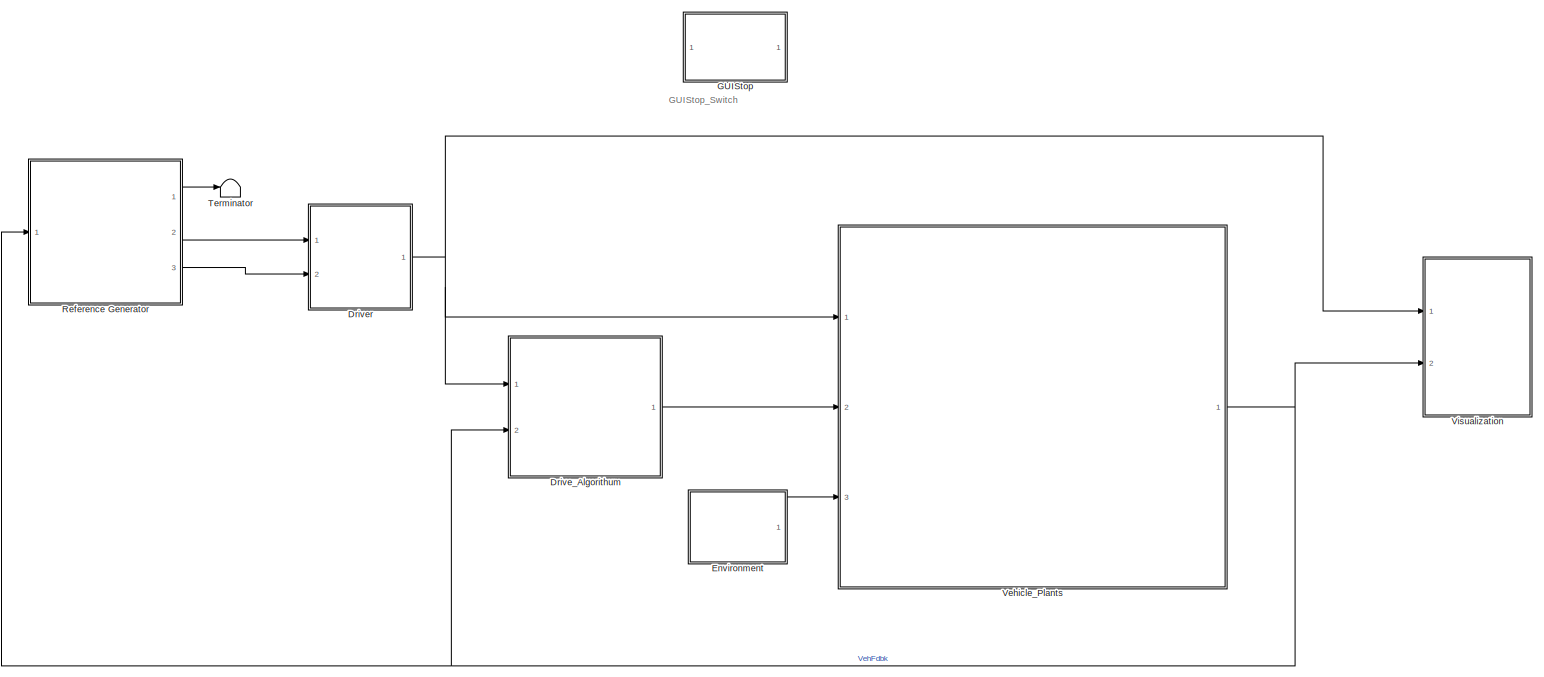
[diagram: root canvas - part 1/1, most of the canvas]
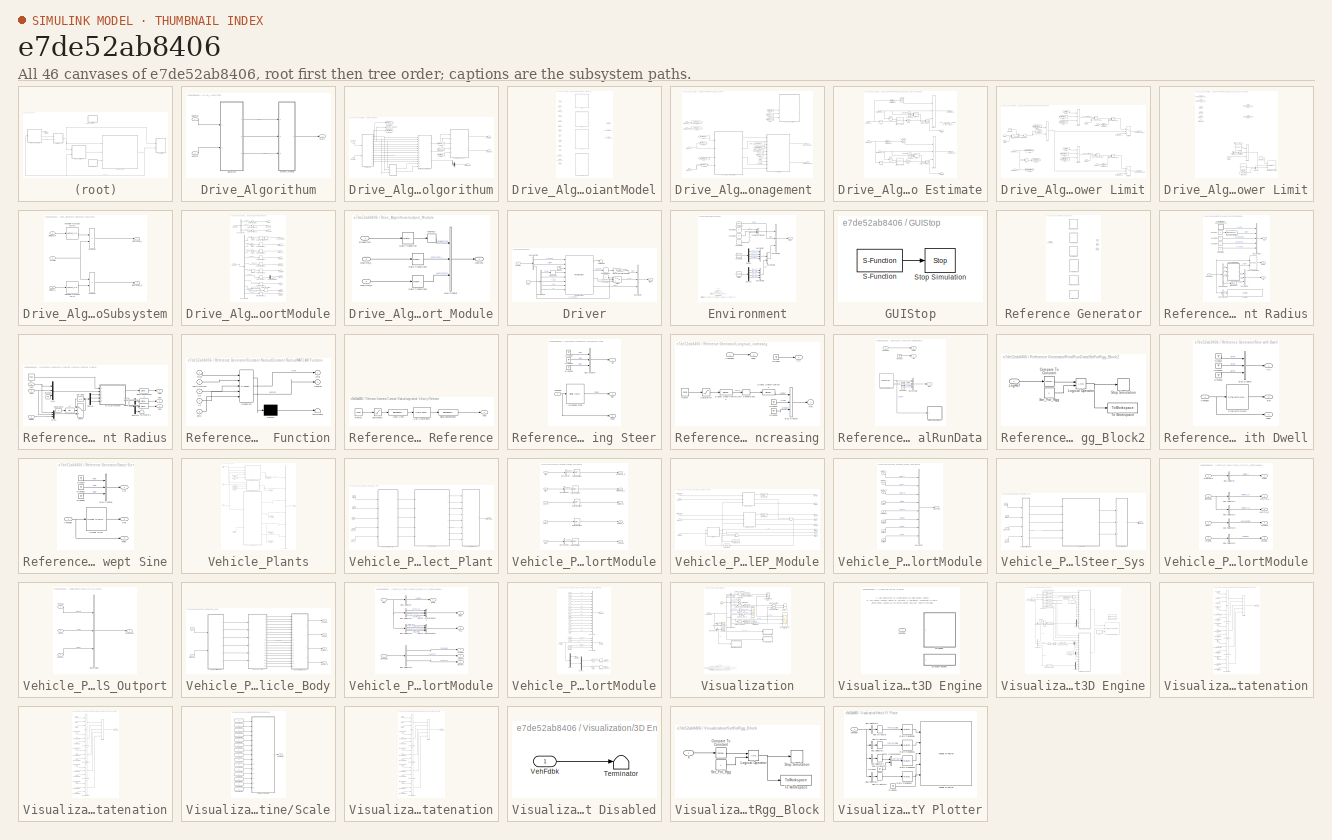
[diagram: thumbnail index - all 46 canvases of the model, root first then tree order]
MODEL slx_e7de52ab8406
KIND model
CONFIG AbsTol = auto
CONFIG EnableMultiTasking = off
CONFIG FixedStep = auto
CONFIG MaxStep = auto
CONFIG MinStep = auto
CONFIG RelTol = 5e-3
CONFIG SampleTimeConstraint = Unconstrained
CONFIG Solver = ode23tb
CONFIG SolverName = ode23tb
CONFIG StartTime = 0.0
CONFIG StopTime = 60
WORKSPACE source: mxarray member
WORKSPACE DLCXref = [0 8 9.5 18 34 34.5 45 50 60]
WORKSPACE DLCYref = [0 0 -4.5 -4 -3.75 1.5 0.5 0 0]
WORKSPACE VEH: object (value not decoded)
WORKSPACE extRef = 0.01
WORKSPACE mot: object (value not decoded)
BLOCK [SubSystem] Drive_Algorithum
  Ports = [2, 1]
  RequestExecContextInheritance = off
BLOCK [SubSystem] Drive_Algorithum/Algorithum
  Ports = [2, 3]
  RequestExecContextInheritance = off
BLOCK [SubSystem] Drive_Algorithum/Algorithum/Algorithum_VariantModel
  Ports = [14, 3]
  RequestExecContextInheritance = off
  Variant = on
BLOCK [Inport] Drive_Algorithum/Algorithum/Algorithum_VariantModel/AccCmd
BLOCK [ModelReference] Drive_Algorithum/Algorithum/Algorithum_VariantModel/BERS
  ModelNameDialog = BERS.slx
  ModelReferenceVersion = 1.3
  Ports = [3, 3]
  VariantControl = AV==1
BLOCK [Inport] Drive_Algorithum/Algorithum/Algorithum_VariantModel/BattSOC
  Port = 12
BLOCK [Inport] Drive_Algorithum/Algorithum/Algorithum_VariantModel/DecCmd
  Port = 5
BLOCK [ModelReference] Drive_Algorithum/Algorithum/Algorithum_VariantModel/EDS
  DisableCoverage = on
  ModelNameDialog = EDS.slx
  ModelReferenceVersion = 1.7
  Ports = [6, 3]
  VariantControl = AV==2
BLOCK [ModelReference] Drive_Algorithum/Algorithum/Algorithum_VariantModel/EF20Algo
  ModelNameDialog = EF20Algo.slx
  ModelReferenceVersion = 1.15
  Ports = [10, 3]
  VariantControl = AV==3
BLOCK [Outport] Drive_Algorithum/Algorithum/Algorithum_VariantModel/Final_MotTrqReq_L
BLOCK [Outport] Drive_Algorithum/Algorithum/Algorithum_VariantModel/Final_MotTrqReq_R
  Port = 2
BLOCK [Outport] Drive_Algorithum/Algorithum/Algorithum_VariantModel/Fric_Brake
  Port = 3
BLOCK [Inport] Drive_Algorithum/Algorithum/Algorithum_VariantModel/MotPwr_L
  Port = 6
BLOCK [Inport] Drive_Algorithum/Algorithum/Algorithum_VariantModel/MotPwr_R
  Port = 7
BLOCK [Inport] Drive_Algorithum/Algorithum/Algorithum_VariantModel/MotSpd_L
  Port = 2
BLOCK [Inport] Drive_Algorithum/Algorithum/Algorithum_VariantModel/MotSpd_R
  Port = 3
BLOCK [Inport] Drive_Algorithum/Algorithum/Algorithum_VariantModel/MotTrqCmd_L
  Port = 13
BLOCK [Inport] Drive_Algorithum/Algorithum/Algorithum_VariantModel/MotTrqCmd_R
  Port = 14
BLOCK [Inport] Drive_Algorithum/Algorithum/Algorithum_VariantModel/Spd
  Port = 11
BLOCK [Inport] Drive_Algorithum/Algorithum/Algorithum_VariantModel/Steer
  Port = 8
BLOCK [ModelReference] Drive_Algorithum/Algorithum/Algorithum_VariantModel/TCS
  ModelNameDialog = TCS.slx
  ModelReferenceVersion = 1.14
  Ports = [8, 3]
  VariantControl = AV==0
BLOCK [Inport] Drive_Algorithum/Algorithum/Algorithum_VariantModel/VehSpd
  Port = 4
BLOCK [Inport] Drive_Algorithum/Algorithum/Algorithum_VariantModel/WhlAng
  Port = 10
BLOCK [Inport] Drive_Algorithum/Algorithum/Algorithum_VariantModel/YawRate
  Port = 9
BLOCK [Outport] Drive_Algorithum/Algorithum/BrakeCmd
BLOCK [From] Drive_Algorithum/Algorithum/From
  GotoTag = MotSpd_L
BLOCK [From] Drive_Algorithum/Algorithum/From1
  GotoTag = MotSpd_R
BLOCK [From] Drive_Algorithum/Algorithum/From2
  GotoTag = BattVolt
BLOCK [Goto] Drive_Algorithum/Algorithum/Goto
  GotoTag = MotSpd_L
BLOCK [Goto] Drive_Algorithum/Algorithum/Goto1
  GotoTag = MotSpd_R
BLOCK [Goto] Drive_Algorithum/Algorithum/Goto2
  GotoTag = BattVolt
BLOCK [Outport] Drive_Algorithum/Algorithum/MotCmd_L
  Port = 2
BLOCK [Outport] Drive_Algorithum/Algorithum/MotCmd_R
  Port = 3
BLOCK [Mux] Drive_Algorithum/Algorithum/Mux
  DisplayOption = bar
  Ports = [4, 1]
BLOCK [Inport] Drive_Algorithum/Algorithum/OpCmds
BLOCK [SubSystem] Drive_Algorithum/Algorithum/Power Management 
  Ports = [5, 2]
  RequestExecContextInheritance = off
BLOCK [Inport] Drive_Algorithum/Algorithum/Power Management /BattV
  Port = 5
BLOCK [Constant] Drive_Algorithum/Algorithum/Power Management /Constant
  Value = 196
BLOCK [From] Drive_Algorithum/Algorithum/Power Management /From
  GotoTag = MotTrqReq_L
BLOCK [From] Drive_Algorithum/Algorithum/Power Management /From1
  GotoTag = MotTrqReq_L
BLOCK [From] Drive_Algorithum/Algorithum/Power Management /From2
  GotoTag = MotTrqReq_R
BLOCK [From] Drive_Algorithum/Algorithum/Power Management /From3
  GotoTag = MotTrqReq_R
BLOCK [From] Drive_Algorithum/Algorithum/Power Management /From4
  GotoTag = MotSpd_L
BLOCK [From] Drive_Algorithum/Algorithum/Power Management /From5
  GotoTag = MotSpd_R
BLOCK [From] Drive_Algorithum/Algorithum/Power Management /From7
  Commented = on
  GotoTag = BrkCmd
BLOCK [From] Drive_Algorithum/Algorithum/Power Management /From8
  Commented = on
  GotoTag = MotSpd_L
BLOCK [From] Drive_Algorithum/Algorithum/Power Management /From9
  Commented = on
  GotoTag = MotSpd_R
BLOCK [Goto] Drive_Algorithum/Algorithum/Power Management /Goto
  GotoTag = MotTrqReq_L
BLOCK [Goto] Drive_Algorithum/Algorithum/Power Management /Goto1
  GotoTag = MotTrqReq_R
BLOCK [Goto] Drive_Algorithum/Algorithum/Power Management /Goto2
  GotoTag = MotSpd_L
BLOCK [Goto] Drive_Algorithum/Algorithum/Power Management /Goto3
  GotoTag = MotSpd_R
BLOCK [SubSystem] Drive_Algorithum/Algorithum/Power Management /Mech to Elec Power Estimate
  Ports = [4, 4]
  RequestExecContextInheritance = off
BLOCK [Abs] Drive_Algorithum/Algorithum/Power Management /Mech to Elec Power Estimate/Abs
  SaturateOnIntegerOverflow = off
BLOCK [Abs] Drive_Algorithum/Algorithum/Power Management /Mech to Elec Power Estimate/Abs1
  SaturateOnIntegerOverflow = off
BLOCK [Abs] Drive_Algorithum/Algorithum/Power Management /Mech to Elec Power Estimate/Abs2
  SaturateOnIntegerOverflow = off
BLOCK [Abs] Drive_Algorithum/Algorithum/Power Management /Mech to Elec Power Estimate/Abs3
  SaturateOnIntegerOverflow = off
BLOCK [Constant] Drive_Algorithum/Algorithum/Power Management /Mech to Elec Power Estimate/Constant1
  SampleTime = -1
BLOCK [Constant] Drive_Algorithum/Algorithum/Power Management /Mech to Elec Power Estimate/Constant2
  SampleTime = -1
  Value = -1
BLOCK [Constant] Drive_Algorithum/Algorithum/Power Management /Mech to Elec Power Estimate/Constant3
  SampleTime = -1
BLOCK [Constant] Drive_Algorithum/Algorithum/Power Management /Mech to Elec Power Estimate/Constant4
  SampleTime = -1
  Value = -1
BLOCK [Product] Drive_Algorithum/Algorithum/Power Management /Mech to Elec Power Estimate/Divide1
  Inputs = **/
  Ports = [3, 1]
BLOCK [Product] Drive_Algorithum/Algorithum/Power Management /Mech to Elec Power Estimate/Divide2
  Inputs = **/
  Ports = [3, 1]
BLOCK [Lookup_n-D] Drive_Algorithum/Algorithum/Power Management /Mech to Elec Power Estimate/Efficience map L
  BeginIndexSearchUsingPreviousIndexResult = on
  BreakpointsForDimension1 = mot.mapL.trqindex
  BreakpointsForDimension2 = mot.mapL.spdindex
  ExtrapMethod = Clip
  InternalRulePriority = Speed
  NameLocation = top
  OutDataTypeStr = Inherit: Inherit from 'Table data'
  Ports = [2, 1]
  RndMeth = Simplest
  Table = mot.mapL.eff
  UseLastTableValue = on
BLOCK [Lookup_n-D] Drive_Algorithum/Algorithum/Power Management /Mech to Elec Power Estimate/Efficience map R
  BeginIndexSearchUsingPreviousIndexResult = on
  BreakpointsForDimension1 = mot.mapR.trqindex
  BreakpointsForDimension2 = mot.mapR.spdindex
  ExtrapMethod = Clip
  InternalRulePriority = Speed
  NameLocation = top
  OutDataTypeStr = Inherit: Inherit from 'Table data'
  Ports = [2, 1]
  RndMeth = Simplest
  Table = mot.mapR.eff
  UseLastTableValue = on
BLOCK [Gain] Drive_Algorithum/Algorithum/Power Management /Mech to Elec Power Estimate/Gain
  Gain = 0.01
BLOCK [Gain] Drive_Algorithum/Algorithum/Power Management /Mech to Elec Power Estimate/Gain1
  Gain = 0.01
BLOCK [Math] Drive_Algorithum/Algorithum/Power Management /Mech to Elec Power Estimate/Math Function
  Operator = pow
  OutputSignalType = real
  Ports = [2, 1]
  SignedPower = on
BLOCK [Math] Drive_Algorithum/Algorithum/Power Management /Mech to Elec Power Estimate/Math Function1
  Operator = pow
  OutputSignalType = real
  Ports = [2, 1]
  SignedPower = on
BLOCK [Outport] Drive_Algorithum/Algorithum/Power Management /Mech to Elec Power Estimate/MotEff_L
  Port = 2
  VectorParamsAs1DForOutWhenUnconnected = off
BLOCK [Outport] Drive_Algorithum/Algorithum/Power Management /Mech to Elec Power Estimate/MotEff_R
  Port = 4
  VectorParamsAs1DForOutWhenUnconnected = off
BLOCK [Outport] Drive_Algorithum/Algorithum/Power Management /Mech to Elec Power Estimate/MotPwrReq_L
  VectorParamsAs1DForOutWhenUnconnected = off
BLOCK [Outport] Drive_Algorithum/Algorithum/Power Management /Mech to Elec Power Estimate/MotPwrReq_R
  Port = 3
  VectorParamsAs1DForOutWhenUnconnected = off
BLOCK [Inport] Drive_Algorithum/Algorithum/Power Management /Mech to Elec Power Estimate/MotSpd_L
  Port = 2
BLOCK [Inport] Drive_Algorithum/Algorithum/Power Management /Mech to Elec Power Estimate/MotSpd_R
  Port = 4
BLOCK [Inport] Drive_Algorithum/Algorithum/Power Management /Mech to Elec Power Estimate/MotTrqReq_L
BLOCK [Inport] Drive_Algorithum/Algorithum/Power Management /Mech to Elec Power Estimate/MotTrqReq_R
  Port = 3
BLOCK [Saturate] Drive_Algorithum/Algorithum/Power Management /Mech to Elec Power Estimate/Saturation
  LowerLimit = 10
  UpperLimit = inf
BLOCK [Saturate] Drive_Algorithum/Algorithum/Power Management /Mech to Elec Power Estimate/Saturation1
  LowerLimit = 10
  UpperLimit = inf
BLOCK [Switch] Drive_Algorithum/Algorithum/Power Management /Mech to Elec Power Estimate/Switch1
  InputSameDT = off
  SaturateOnIntegerOverflow = off
BLOCK [Switch] Drive_Algorithum/Algorithum/Power Management /Mech to Elec Power Estimate/Switch2
  InputSameDT = off
  SaturateOnIntegerOverflow = off
BLOCK [Gain] Drive_Algorithum/Algorithum/Power Management /Mech to Elec Power Estimate/rpm to rad//s L
  Gain = pi/30
BLOCK [Gain] Drive_Algorithum/Algorithum/Power Management /Mech to Elec Power Estimate/rpm to rad//s R
  Gain = pi/30
BLOCK [Inport] Drive_Algorithum/Algorithum/Power Management /MotSpd_L
  Port = 3
BLOCK [Inport] Drive_Algorithum/Algorithum/Power Management /MotSpd_R
  Port = 4
BLOCK [Outport] Drive_Algorithum/Algorithum/Power Management /MotTrqReqAllow_L
  VectorParamsAs1DForOutWhenUnconnected = off
BLOCK [Outport] Drive_Algorithum/Algorithum/Power Management /MotTrqReqAllow_R
  Port = 2
  VectorParamsAs1DForOutWhenUnconnected = off
BLOCK [Inport] Drive_Algorithum/Algorithum/Power Management /MotTrqReq_L
BLOCK [Inport] Drive_Algorithum/Algorithum/Power Management /MotTrqReq_R
  Port = 2
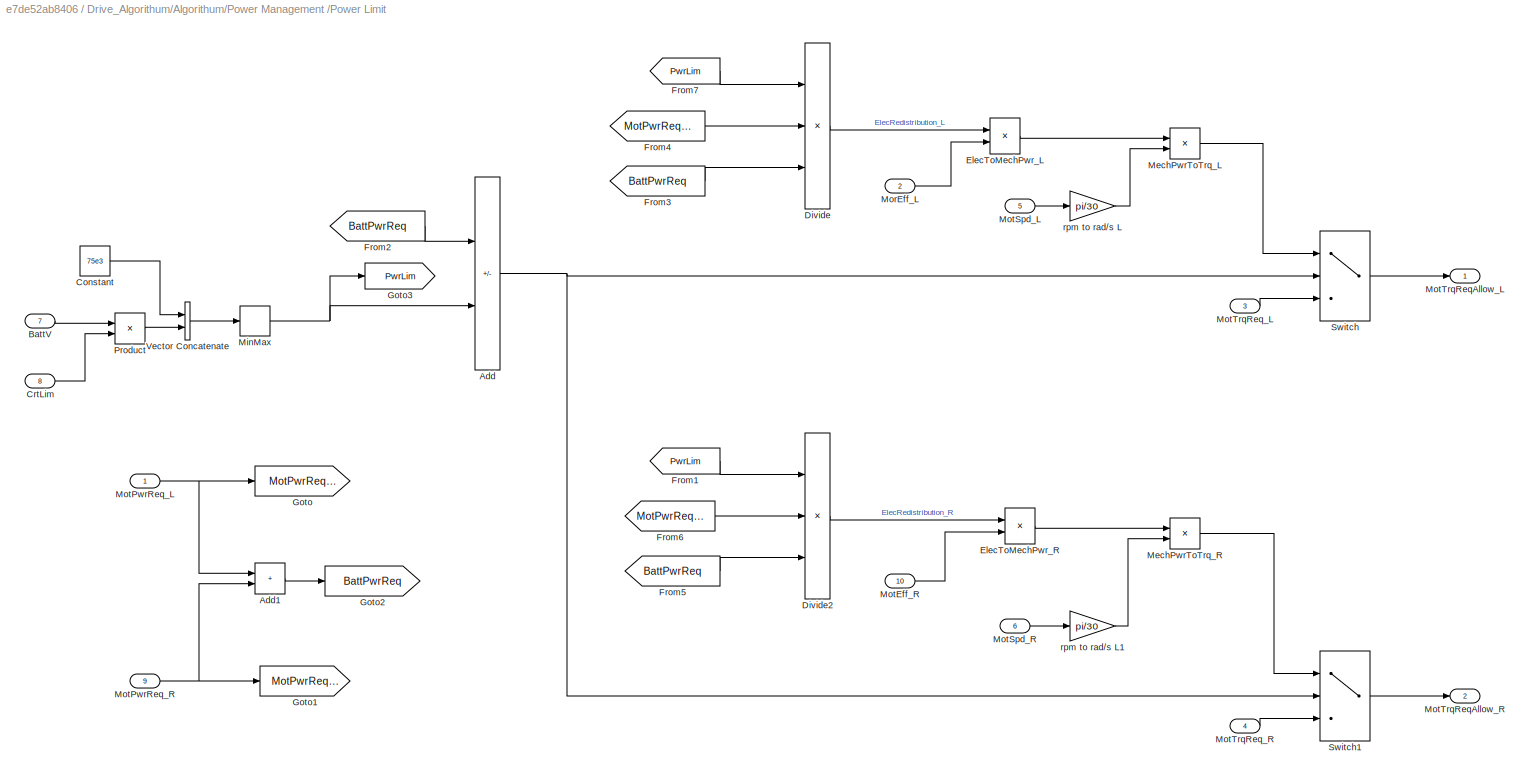
BLOCK [SubSystem] Drive_Algorithum/Algorithum/Power Management /Power Limit
  Ports = [10, 2]
  RequestExecContextInheritance = off
BLOCK [Sum] Drive_Algorithum/Algorithum/Power Management /Power Limit/Add
  IconShape = rectangular
  Inputs = +-
  Ports = [2, 1]
BLOCK [Sum] Drive_Algorithum/Algorithum/Power Management /Power Limit/Add1
  IconShape = rectangular
  Ports = [2, 1]
BLOCK [Inport] Drive_Algorithum/Algorithum/Power Management /Power Limit/BattV
  Port = 7
BLOCK [Constant] Drive_Algorithum/Algorithum/Power Management /Power Limit/Constant
  Value = 75e3
BLOCK [Inport] Drive_Algorithum/Algorithum/Power Management /Power Limit/CrtLim
  Port = 8
BLOCK [Product] Drive_Algorithum/Algorithum/Power Management /Power Limit/Divide
  Inputs = **/
  Ports = [3, 1]
BLOCK [Product] Drive_Algorithum/Algorithum/Power Management /Power Limit/Divide2
  Inputs = **/
  Ports = [3, 1]
BLOCK [Product] Drive_Algorithum/Algorithum/Power Management /Power Limit/ElecToMechPwr_L
  Inputs = **
  Ports = [2, 1]
BLOCK [Product] Drive_Algorithum/Algorithum/Power Management /Power Limit/ElecToMechPwr_R
  Inputs = **
  Ports = [2, 1]
BLOCK [From] Drive_Algorithum/Algorithum/Power Management /Power Limit/From1
  GotoTag = PwrLim
BLOCK [From] Drive_Algorithum/Algorithum/Power Management /Power Limit/From2
  GotoTag = BattPwrReq
BLOCK [From] Drive_Algorithum/Algorithum/Power Management /Power Limit/From3
  GotoTag = BattPwrReq
BLOCK [From] Drive_Algorithum/Algorithum/Power Management /Power Limit/From4
  GotoTag = MotPwrReq_L
BLOCK [From] Drive_Algorithum/Algorithum/Power Management /Power Limit/From5
  GotoTag = BattPwrReq
BLOCK [From] Drive_Algorithum/Algorithum/Power Management /Power Limit/From6
  GotoTag = MotPwrReq_R
BLOCK [From] Drive_Algorithum/Algorithum/Power Management /Power Limit/From7
  GotoTag = PwrLim
BLOCK [Goto] Drive_Algorithum/Algorithum/Power Management /Power Limit/Goto
  GotoTag = MotPwrReq_L
BLOCK [Goto] Drive_Algorithum/Algorithum/Power Management /Power Limit/Goto1
  GotoTag = MotPwrReq_R
BLOCK [Goto] Drive_Algorithum/Algorithum/Power Management /Power Limit/Goto2
  GotoTag = BattPwrReq
BLOCK [Goto] Drive_Algorithum/Algorithum/Power Management /Power Limit/Goto3
  GotoTag = PwrLim
BLOCK [Product] Drive_Algorithum/Algorithum/Power Management /Power Limit/MechPwrToTrq_L
  Inputs = */
  Ports = [2, 1]
BLOCK [Product] Drive_Algorithum/Algorithum/Power Management /Power Limit/MechPwrToTrq_R
  Inputs = */
  Ports = [2, 1]
BLOCK [MinMax] Drive_Algorithum/Algorithum/Power Management /Power Limit/MinMax
  Function = max
  Ports = [1, 1]
BLOCK [Inport] Drive_Algorithum/Algorithum/Power Management /Power Limit/MorEff_L
  Port = 2
BLOCK [Inport] Drive_Algorithum/Algorithum/Power Management /Power Limit/MotEff_R
  Port = 10
BLOCK [Inport] Drive_Algorithum/Algorithum/Power Management /Power Limit/MotPwrReq_L
BLOCK [Inport] Drive_Algorithum/Algorithum/Power Management /Power Limit/MotPwrReq_R
  Port = 9
BLOCK [Inport] Drive_Algorithum/Algorithum/Power Management /Power Limit/MotSpd_L
  Port = 5
BLOCK [Inport] Drive_Algorithum/Algorithum/Power Management /Power Limit/MotSpd_R
  Port = 6
BLOCK [Outport] Drive_Algorithum/Algorithum/Power Management /Power Limit/MotTrqReqAllow_L
  VectorParamsAs1DForOutWhenUnconnected = off
BLOCK [Outport] Drive_Algorithum/Algorithum/Power Management /Power Limit/MotTrqReqAllow_R
  Port = 2
  VectorParamsAs1DForOutWhenUnconnected = off
BLOCK [Inport] Drive_Algorithum/Algorithum/Power Management /Power Limit/MotTrqReq_L
  Port = 3
BLOCK [Inport] Drive_Algorithum/Algorithum/Power Management /Power Limit/MotTrqReq_R
  Port = 4
BLOCK [Product] Drive_Algorithum/Algorithum/Power Management /Power Limit/Product
  Ports = [2, 1]
BLOCK [Switch] Drive_Algorithum/Algorithum/Power Management /Power Limit/Switch
  Criteria = u2 > Threshold
  InputSameDT = off
  SaturateOnIntegerOverflow = off
BLOCK [Switch] Drive_Algorithum/Algorithum/Power Management /Power Limit/Switch1
  Criteria = u2 > Threshold
  InputSameDT = off
  SaturateOnIntegerOverflow = off
BLOCK [Concatenate] Drive_Algorithum/Algorithum/Power Management /Power Limit/Vector Concatenate
  Ports = [2, 1]
BLOCK [Gain] Drive_Algorithum/Algorithum/Power Management /Power Limit/rpm to rad//s L
  Gain = pi/30
BLOCK [Gain] Drive_Algorithum/Algorithum/Power Management /Power Limit/rpm to rad//s L1
  Gain = pi/30
BLOCK [SubSystem] Drive_Algorithum/Algorithum/Power Management /Regen Power Limit
  Commented = on
  Ports = [6, 2]
  RequestExecContextInheritance = off
BLOCK [Inport] Drive_Algorithum/Algorithum/Power Management /Regen Power Limit/BattSoc 
  Port = 3
BLOCK [Inport] Drive_Algorithum/Algorithum/Power Management /Regen Power Limit/BrkCmd
  Port = 4
BLOCK [Lookup_n-D] Drive_Algorithum/Algorithum/Power Management /Regen Power Limit/ChrgLmt
  BreakpointsForDimension1 = Batt.Limit.SOC
  ExtrapMethod = Clip
  InternalRulePriority = Speed
  NumberOfTableDimensions = 1
  Ports = [1, 1]
  RndMeth = Simplest
  Table = Batt.Limit.Charge
  UseLastTableValue = on
BLOCK [Constant] Drive_Algorithum/Algorithum/Power Management /Regen Power Limit/Constant1
  Value = 0
BLOCK [Product] Drive_Algorithum/Algorithum/Power Management /Regen Power Limit/Divide
  Inputs = /**
  Ports = [3, 1]
BLOCK [Lookup_n-D] Drive_Algorithum/Algorithum/Power Management /Regen Power Limit/Efficience map L1
  BeginIndexSearchUsingPreviousIndexResult = on
  BreakpointsForDimension1 = mot.mapL.trqindex
  BreakpointsForDimension2 = mot.mapL.spdindex
  ExtrapMethod = Clip
  InternalRulePriority = Speed
  NameLocation = top
  OutDataTypeStr = Inherit: Inherit from 'Table data'
  Ports = [2, 1]
  RndMeth = Simplest
  Table = mot.mapL.eff
  UseLastTableValue = on
BLOCK [Gain] Drive_Algorithum/Algorithum/Power Management /Regen Power Limit/Gain4
  Gain = -1
BLOCK [Constant] Drive_Algorithum/Algorithum/Power Management /Regen Power Limit/MaxChrg
  Value = -380*30
BLOCK [Inport] Drive_Algorithum/Algorithum/Power Management /Regen Power Limit/MotSpd_L
  Port = 5
BLOCK [Inport] Drive_Algorithum/Algorithum/Power Management /Regen Power Limit/MotSpd_R
  Port = 6
BLOCK [Outport] Drive_Algorithum/Algorithum/Power Management /Regen Power Limit/MotTrqCmdRegenAllow_L
  VectorParamsAs1DForOutWhenUnconnected = off
BLOCK [Outport] Drive_Algorithum/Algorithum/Power Management /Regen Power Limit/MotTrqCmdRegenAllow_R
  Port = 2
  VectorParamsAs1DForOutWhenUnconnected = off
BLOCK [Inport] Drive_Algorithum/Algorithum/Power Management /Regen Power Limit/MotTrqCmdRegen_L
BLOCK [Inport] Drive_Algorithum/Algorithum/Power Management /Regen Power Limit/MotTrqCmdRegen_R
  Port = 2
BLOCK [Product] Drive_Algorithum/Algorithum/Power Management /Regen Power Limit/Product
  Ports = [2, 1]
BLOCK [Reference] Drive_Algorithum/Algorithum/Power Management /Regen Power Limit/Saturation Dynamic  REF=simulink/Discontinuities/Saturation
Dynamic
  Ports = [3, 1]
  SourceBlock = simulink/Discontinuities/Saturation\nDynamic
  SourceProductBaseCode = SL
  SourceType = Saturation Dynamic
BLOCK [Saturate] Drive_Algorithum/Algorithum/Power Management /Regen Power Limit/Saturation2
  LowerLimit = 10
  UpperLimit = inf
BLOCK [Gain] Drive_Algorithum/Algorithum/Power Management /Regen Power Limit/rpm to rad//s L1
  Gain = pi/30
BLOCK [SubSystem] Drive_Algorithum/Algorithum/Subsystem
  Ports = [3, 2]
  RequestExecContextInheritance = off
BLOCK [Inport] Drive_Algorithum/Algorithum/Subsystem/AccCmd
  Port = 2
BLOCK [Lookup_n-D] Drive_Algorithum/Algorithum/Subsystem/Max Motor Trq vs. Spd Curve
  BreakpointsForDimension1 = mot.spd
  InternalRulePriority = Speed
  NumberOfTableDimensions = 1
  OutDataTypeStr = Inherit: Inherit from 'Table data'
  Ports = [1, 1]
  RndMeth = Simplest
  Table = mot.trq
  UseLastTableValue = on
BLOCK [Lookup_n-D] Drive_Algorithum/Algorithum/Subsystem/Max Motor Trq vs. Spd Curve1
  BreakpointsForDimension1 = mot.spd
  InternalRulePriority = Speed
  NumberOfTableDimensions = 1
  OutDataTypeStr = Inherit: Inherit from 'Table data'
  Ports = [1, 1]
  RndMeth = Simplest
  Table = mot.trq
  UseLastTableValue = on
BLOCK [Inport] Drive_Algorithum/Algorithum/Subsystem/MotSpd_L
  Port = 3
BLOCK [Inport] Drive_Algorithum/Algorithum/Subsystem/MotSpd_R
BLOCK [Outport] Drive_Algorithum/Algorithum/Subsystem/MotTrqCmd_L
BLOCK [Outport] Drive_Algorithum/Algorithum/Subsystem/MotTrqCmd_R
  Port = 2
BLOCK [Product] Drive_Algorithum/Algorithum/Subsystem/Product1
  Ports = [2, 1]
BLOCK [Product] Drive_Algorithum/Algorithum/Subsystem/Product3
  Ports = [2, 1]
BLOCK [Inport] Drive_Algorithum/Algorithum/VehPInt
  Port = 2
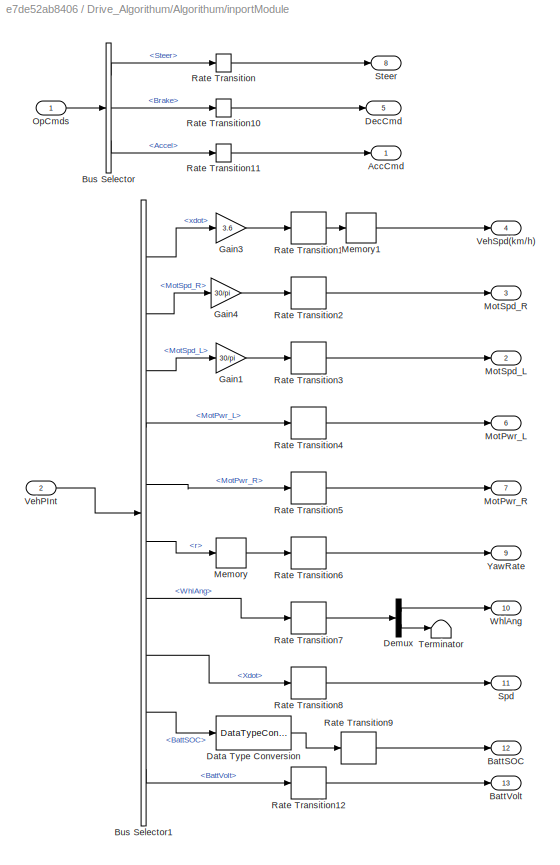
BLOCK [SubSystem] Drive_Algorithum/Algorithum/inportModule
  Ports = [2, 13]
  RequestExecContextInheritance = off
BLOCK [Outport] Drive_Algorithum/Algorithum/inportModule/AccCmd
BLOCK [Outport] Drive_Algorithum/Algorithum/inportModule/BattSOC
  Port = 12
BLOCK [Outport] Drive_Algorithum/Algorithum/inportModule/BattVolt
  Port = 13
BLOCK [BusSelector] Drive_Algorithum/Algorithum/inportModule/Bus Selector
  OutputSignals = Steer,Brake,Accel
  Ports = [1, 3]
BLOCK [BusSelector] Drive_Algorithum/Algorithum/inportModule/Bus Selector1
  OutputSignals = Chassis.xdot,MotSpd_R,MotSpd_L,ElecFdbk.MotPwr_L,ElecFdbk.MotPwr_R,Chassis.r,DriveLine.WhlAng,Chassis.Xdot,ElecFdbk.BattSOC,ElecFdbk.BattVolt
  Ports = [1, 10]
BLOCK [DataTypeConversion] Drive_Algorithum/Algorithum/inportModule/Data Type Conversion
  RndMeth = Floor
  SaturateOnIntegerOverflow = off
BLOCK [Outport] Drive_Algorithum/Algorithum/inportModule/DecCmd
  Port = 5
BLOCK [Demux] Drive_Algorithum/Algorithum/inportModule/Demux
  Outputs = 2
  Ports = [1, 2]
BLOCK [Gain] Drive_Algorithum/Algorithum/inportModule/Gain1
  Gain = 30/pi
BLOCK [Gain] Drive_Algorithum/Algorithum/inportModule/Gain3
  Gain = 3.6
BLOCK [Gain] Drive_Algorithum/Algorithum/inportModule/Gain4
  Gain = 30/pi
BLOCK [Memory] Drive_Algorithum/Algorithum/inportModule/Memory
BLOCK [Memory] Drive_Algorithum/Algorithum/inportModule/Memory1
BLOCK [Outport] Drive_Algorithum/Algorithum/inportModule/MotPwr_L
  Port = 6
BLOCK [Outport] Drive_Algorithum/Algorithum/inportModule/MotPwr_R
  Port = 7
BLOCK [Outport] Drive_Algorithum/Algorithum/inportModule/MotSpd_L
  Port = 2
BLOCK [Outport] Drive_Algorithum/Algorithum/inportModule/MotSpd_R
  Port = 3
BLOCK [Inport] Drive_Algorithum/Algorithum/inportModule/OpCmds
BLOCK [RateTransition] Drive_Algorithum/Algorithum/inportModule/Rate Transition
  Deterministic = off
BLOCK [RateTransition] Drive_Algorithum/Algorithum/inportModule/Rate Transition1
  Deterministic = off
BLOCK [RateTransition] Drive_Algorithum/Algorithum/inportModule/Rate Transition10
  Deterministic = off
BLOCK [RateTransition] Drive_Algorithum/Algorithum/inportModule/Rate Transition11
  Deterministic = off
BLOCK [RateTransition] Drive_Algorithum/Algorithum/inportModule/Rate Transition12
BLOCK [RateTransition] Drive_Algorithum/Algorithum/inportModule/Rate Transition2
  Deterministic = off
BLOCK [RateTransition] Drive_Algorithum/Algorithum/inportModule/Rate Transition3
  Deterministic = off
BLOCK [RateTransition] Drive_Algorithum/Algorithum/inportModule/Rate Transition4
  Deterministic = off
BLOCK [RateTransition] Drive_Algorithum/Algorithum/inportModule/Rate Transition5
  Deterministic = off
BLOCK [RateTransition] Drive_Algorithum/Algorithum/inportModule/Rate Transition6
  Deterministic = off
BLOCK [RateTransition] Drive_Algorithum/Algorithum/inportModule/Rate Transition7
BLOCK [RateTransition] Drive_Algorithum/Algorithum/inportModule/Rate Transition8
BLOCK [RateTransition] Drive_Algorithum/Algorithum/inportModule/Rate Transition9
BLOCK [Outport] Drive_Algorithum/Algorithum/inportModule/Spd
  Port = 11
BLOCK [Outport] Drive_Algorithum/Algorithum/inportModule/Steer
  Port = 8
BLOCK [Terminator] Drive_Algorithum/Algorithum/inportModule/Terminator
BLOCK [Inport] Drive_Algorithum/Algorithum/inportModule/VehPInt
  Port = 2
BLOCK [Outport] Drive_Algorithum/Algorithum/inportModule/VehSpd(km//h)
  Port = 4
BLOCK [Outport] Drive_Algorithum/Algorithum/inportModule/WhlAng
  Port = 10
BLOCK [Outport] Drive_Algorithum/Algorithum/inportModule/YawRate
  Port = 9
BLOCK [Inport] Drive_Algorithum/OpCmds
BLOCK [Outport] Drive_Algorithum/PtCtrl
BLOCK [Inport] Drive_Algorithum/VehPInt
  Port = 2
BLOCK [SubSystem] Drive_Algorithum/outport_Module
  Ports = [3, 1]
  RequestExecContextInheritance = off
BLOCK [Inport] Drive_Algorithum/outport_Module/BrakeCmd
BLOCK [BusCreator] Drive_Algorithum/outport_Module/Bus Creator
  DisplayOption = bar
  InheritFromInputs = on
  Inputs = 3
  Ports = [3, 1]
BLOCK [Memory] Drive_Algorithum/outport_Module/Memory
BLOCK [Inport] Drive_Algorithum/outport_Module/MotCmd_L
  Port = 2
BLOCK [Inport] Drive_Algorithum/outport_Module/MotCmd_R
  Port = 3
BLOCK [Outport] Drive_Algorithum/outport_Module/OpCmd
BLOCK [RateTransition] Drive_Algorithum/outport_Module/Rate Transition
  Deterministic = off
BLOCK [RateTransition] Drive_Algorithum/outport_Module/Rate Transition1
  Deterministic = off
BLOCK [RateTransition] Drive_Algorithum/outport_Module/Rate Transition2
  Deterministic = off
BLOCK [SubSystem] Driver
  Ports = [2, 1]
  RequestExecContextInheritance = off
BLOCK [BusCreator] Driver/Bus Creator
  DisplayOption = bar
  InheritFromInputs = on
  Inputs = 3
  Ports = [3, 1]
BLOCK [BusSelector] Driver/Bus Selector
  OutputSignals = Chassis.xdot,Chassis.Y,Chassis.ydot,Chassis.psi,Chassis.r
  Ports = [1, 5]
BLOCK [BusSelector] Driver/Bus Selector1
  OutputSignals = LngRef,LtrlRef,AccelZero
  Ports = [1, 3]
BLOCK [Constant] Driver/Constant
  Value = 0
BLOCK [DeadZone] Driver/Dead Zone
  ZeroCross = off
BLOCK [DeadZone] Driver/Dead Zone1
  LowerValue = -1e-2
  UpperValue = 1e-2
  ZeroCross = off
BLOCK [Outport] Driver/Driver
  VectorParamsAs1DForOutWhenUnconnected = off
BLOCK [Inport] Driver/Fdbk
  Port = 2
BLOCK [Ground] Driver/Ground
BLOCK [Reference] Driver/Predictive Driver  REF=vehdynlibdriver/Predictive Driver
  Ports = [8, 4]
  SourceBlock = vehdynlibdriver/Predictive Driver
  SourceProductBaseCode = VE
  SourceType = Predictive Driver
BLOCK [Switch] Driver/Switch
  Criteria = u2 > Threshold
  InputSameDT = off
  SaturateOnIntegerOverflow = off
BLOCK [Terminator] Driver/Terminator1
BLOCK [Inport] Driver/VehRef
BLOCK [Gain] Driver/Wheel Angle Limit * Steer Ratio
  Gain = 20*pi/180*5.2
BLOCK [SubSystem] Environment
  Ports = [0, 1]
  RequestExecContextInheritance = off
BLOCK [BusCreator] Environment/Bus Creator
  DisplayOption = bar
  InheritFromInputs = on
  Inputs = 4
  Ports = [4, 1]
BLOCK [BusCreator] Environment/Bus Creator1
  DisplayOption = bar
  InheritFromInputs = on
  Inputs = 3
  Ports = [3, 1]
BLOCK [BusCreator] Environment/Bus Creator2
  DisplayOption = bar
  InheritFromInputs = on
  Inputs = 4
  Ports = [4, 1]
BLOCK [BusCreator] Environment/Bus Creator3
  DisplayOption = bar
  InheritFromInputs = on
  Inputs = 2
  Ports = [2, 1]
BLOCK [Constant] Environment/Constant1
  Value = zeros(4,1)
BLOCK [Constant] Environment/Constant3
  Value = 0
BLOCK [Constant] Environment/Constant4
  Value = 0
BLOCK [Constant] Environment/Constant5
  Value = 0
BLOCK [Constant] Environment/Constant6
  Value = 300
BLOCK [Demux] Environment/Demux
  Ports = [1, 4]
BLOCK [Demux] Environment/Demux1
  Ports = [1, 4]
BLOCK [Outport] Environment/Env
  VectorParamsAs1DForOutWhenUnconnected = off
BLOCK [Constant] Environment/Friction
  Value = ones(4,1).*1
BLOCK [Concatenate] Environment/Vector Concatenate
  NumInputs = 3
  Ports = [3, 1]
BLOCK [SubSystem] GUIStop
  Ports = []
  RequestExecContextInheritance = off
BLOCK [S-Function] GUIStop/S-Function
  EnableBusSupport = off
  FunctionName = StopFlag
  Ports = [0, 1]
  SFcnIsStateOwnerBlock = off
  SFunctionDeploymentMode = off
BLOCK [Stop] GUIStop/Stop Simulation
BLOCK [SubSystem] Reference Generator
  Ports = [1, 3]
  RequestExecContextInheritance = off
  Variant = on
  VariantControl = Variant1
BLOCK [Outport] Reference Generator/ Fdbk
  Port = 3
  VectorParamsAs1DForOutWhenUnconnected = off
BLOCK [Outport] Reference Generator/ Ref
  Port = 2
  VectorParamsAs1DForOutWhenUnconnected = off
BLOCK [Outport] Reference Generator/ Vis
  VectorParamsAs1DForOutWhenUnconnected = off
BLOCK [SubSystem] Reference Generator/Constant Radius
  Ports = [1, 3]
  RequestExecContextInheritance = off
  VariantControl = RG==4
BLOCK [Outport] Reference Generator/Constant Radius/ Fdbk
  Port = 3
  VectorParamsAs1DForOutWhenUnconnected = off
BLOCK [Outport] Reference Generator/Constant Radius/ Ref
  Port = 2
  VectorParamsAs1DForOutWhenUnconnected = off
BLOCK [Outport] Reference Generator/Constant Radius/ Vis
  VectorParamsAs1DForOutWhenUnconnected = off
BLOCK [BusAssignment] Reference Generator/Constant Radius/Bus Assignment
  AssignedSignals = Chassis.Y
  Ports = [2, 1]
BLOCK [BusCreator] Reference Generator/Constant Radius/Bus Creator
  DisplayOption = bar
  InheritFromInputs = on
  Inputs = 3
  Ports = [3, 1]
BLOCK [BusCreator] Reference Generator/Constant Radius/Bus Creator1
  DisplayOption = bar
  InheritFromInputs = on
  Inputs = 5
  Ports = [5, 1]
BLOCK [BusSelector] Reference Generator/Constant Radius/Bus Selector1
  OutputSignals = Chassis.ay
  Ports = [1, 1]
BLOCK [BusSelector] Reference Generator/Constant Radius/Bus Selector2
  OutputSignals = Chassis.X,Chassis.Y,Chassis.psi,Chassis.Z
  Ports = [1, 4]
BLOCK [Constant] Reference Generator/Constant Radius/Constant
  Value = 0
BLOCK [SubSystem] Reference Generator/Constant Radius/Constant Radius
  Ports = [3, 3]
  RequestExecContextInheritance = off
BLOCK [Constant] Reference Generator/Constant Radius/Constant Radius/Constant5
BLOCK [Demux] Reference Generator/Constant Radius/Constant Radius/Demux
  Outputs = 3
  Ports = [1, 3]
BLOCK [Demux] Reference Generator/Constant Radius/Constant Radius/Demux1
  Outputs = 3
  Ports = [1, 3]
BLOCK [Ground] Reference Generator/Constant Radius/Constant Radius/Ground1
BLOCK [InitialCondition] Reference Generator/Constant Radius/Constant Radius/IC
  Value = 0
BLOCK [SubSystem] Reference Generator/Constant Radius/Constant Radius/MATLAB Function
  ErrorFcn = Stateflow.Translate.translate
  PermitHierarchicalResolution = ExplicitOnly
  Ports = [5, 2]
  RequestExecContextInheritance = off
  SFBlockType = MATLAB Function
  TreatAsAtomicUnit = on
BLOCK [Demux] Reference Generator/Constant Radius/Constant Radius/MATLAB Function/ Demux 
  Outputs = 1
  Ports = [1, 1]
BLOCK [S-Function] Reference Generator/Constant Radius/Constant Radius/MATLAB Function/ SFunction 
  EnableBusSupport = on
  FunctionName = sf_sfun
  Parameters = turnDirMask
  PortCounts = [5 3]
  Ports = [5, 3]
  SFcnIsStateOwnerBlock = off
  SFunctionDeploymentMode = off
  Tag = Stateflow S-Function 4
BLOCK [Terminator] Reference Generator/Constant Radius/Constant Radius/MATLAB Function/ Terminator 
BLOCK [Inport] Reference Generator/Constant Radius/Constant Radius/MATLAB Function/InertCGDisp
  Port = 2
BLOCK [Inport] Reference Generator/Constant Radius/Constant Radius/MATLAB Function/Rref
BLOCK [Outport] Reference Generator/Constant Radius/Constant Radius/MATLAB Function/VehRef
  Port = 2
  VectorParamsAs1DForOutWhenUnconnected = off
BLOCK [Inport] Reference Generator/Constant Radius/Constant Radius/MATLAB Function/Xo
  Port = 3
BLOCK [Inport] Reference Generator/Constant Radius/Constant Radius/MATLAB Function/Yo
  Port = 4
BLOCK [Inport] Reference Generator/Constant Radius/Constant Radius/MATLAB Function/psio
  Port = 5
BLOCK [Outport] Reference Generator/Constant Radius/Constant Radius/MATLAB Function/yRef
  VectorParamsAs1DForOutWhenUnconnected = off
BLOCK [Mux] Reference Generator/Constant Radius/Constant Radius/Mux
  DisplayOption = bar
  Inputs = 3
  Ports = [3, 1]
BLOCK [Mux] Reference Generator/Constant Radius/Constant Radius/Mux1
  DisplayOption = bar
  Inputs = 3
  Ports = [3, 1]
BLOCK [Constant] Reference Generator/Constant Radius/Constant Radius/R
  NameLocation = top
  Value = Value
BLOCK [SignalSpecification] Reference Generator/Constant Radius/Constant Radius/Signal Specification1
  Unit = m
BLOCK [SignalSpecification] Reference Generator/Constant Radius/Constant Radius/Signal Specification2
  Unit = m
BLOCK [SignalSpecification] Reference Generator/Constant Radius/Constant Radius/Signal Specification3
  Unit = m
BLOCK [Switch] Reference Generator/Constant Radius/Constant Radius/Switch
  Criteria = u2 > Threshold
  InputSameDT = off
  SaturateOnIntegerOverflow = off
BLOCK [Terminator] Reference Generator/Constant Radius/Constant Radius/Terminator1
BLOCK [UnitDelay] Reference Generator/Constant Radius/Constant Radius/Unit Delay
  HasFrameUpgradeWarning = on
  SampleTime = -1
BLOCK [Outport] Reference Generator/Constant Radius/Constant Radius/XRef
  Port = 2
  VectorParamsAs1DForOutWhenUnconnected = off
BLOCK [Inport] Reference Generator/Constant Radius/Constant Radius/XVeh
BLOCK [Outport] Reference Generator/Constant Radius/Constant Radius/YRef
  Port = 3
  VectorParamsAs1DForOutWhenUnconnected = off
BLOCK [Inport] Reference Generator/Constant Radius/Constant Radius/YVeh
  Port = 2
BLOCK [Inport] Reference Generator/Constant Radius/Constant Radius/psiVeh
  Port = 3
BLOCK [Outport] Reference Generator/Constant Radius/Constant Radius/yRef
  VectorParamsAs1DForOutWhenUnconnected = off
BLOCK [Constant] Reference Generator/Constant Radius/Constant1
  OutDataTypeStr = boolean
  Value = 0
BLOCK [Constant] Reference Generator/Constant Radius/Constant2
  Value = 0
BLOCK [Constant] Reference Generator/Constant Radius/Constant3
  OutDataTypeStr = boolean
  Value = 0
BLOCK [SubSystem] Reference Generator/Constant Radius/Longitudinal Velocity Reference
  NameLocation = top
  Ports = [0, 1]
  RequestExecContextInheritance = off
BLOCK [SignalSpecification] Reference Generator/Constant Radius/Longitudinal Velocity Reference/Input Units
  Unit = mph
BLOCK [Reference] Reference Generator/Constant Radius/Longitudinal Velocity Reference/Ramp1  REF=simulink/Sources/Ramp
  Ports = [0, 1]
  SourceBlock = simulink/Sources/Ramp
  SourceProductBaseCode = SL
  SourceType = Ramp
BLOCK [Saturate] Reference Generator/Constant Radius/Longitudinal Velocity Reference/Saturation1
  LowerLimit = 0
  UpperLimit = xdot_r
  ZeroCross = off
BLOCK [SignalSpecification] Reference Generator/Constant Radius/Longitudinal Velocity Reference/Signal Specification1
  Unit = m/s
BLOCK [UnitConversion] Reference Generator/Constant Radius/Longitudinal Velocity Reference/Unit Conversion1
BLOCK [Outport] Reference Generator/Constant Radius/Longitudinal Velocity Reference/xdot
  VectorParamsAs1DForOutWhenUnconnected = off
BLOCK [SignalConversion] Reference Generator/Constant Radius/Signal Copy
  OverrideOpt = off
BLOCK [SignalSpecification] Reference Generator/Constant Radius/Signal Specification
  Unit = m
BLOCK [Inport] Reference Generator/Constant Radius/VehFdbk 
BLOCK [Reference] Reference Generator/Constant Radius/ay Stop  REF=vehdynlibscenariocommon/Slowly Increasing Steer/ay Stop
  Ports = [1]
  SourceBlock = vehdynlibscenariocommon/Slowly Increasing Steer/ay Stop
  SourceProductBaseCode = VE
  SourceType = SubSystem
BLOCK [SubSystem] Reference Generator/Increasing Steer
  Ports = [1, 3]
  RequestExecContextInheritance = off
  VariantControl = RG==1
BLOCK [Outport] Reference Generator/Increasing Steer/ Fdbk
  Port = 3
  VectorParamsAs1DForOutWhenUnconnected = off
BLOCK [Outport] Reference Generator/Increasing Steer/ Ref
  Port = 2
  VectorParamsAs1DForOutWhenUnconnected = off
BLOCK [Outport] Reference Generator/Increasing Steer/ Vis
  VectorParamsAs1DForOutWhenUnconnected = off
BLOCK [BusCreator] Reference Generator/Increasing Steer/Bus Creator
  DisplayOption = bar
  InheritFromInputs = on
  Inputs = 3
  Ports = [3, 1]
BLOCK [Ground] Reference Generator/Increasing Steer/Ground
BLOCK [Ground] Reference Generator/Increasing Steer/Ground1
BLOCK [Ground] Reference Generator/Increasing Steer/Ground2
BLOCK [Reference] Reference Generator/Increasing Steer/Increasing Steer  REF=vehdynlibscenariocommon/Slowly Increasing Steer
  Ports = [1, 1]
  SourceBlock = vehdynlibscenariocommon/Slowly Increasing Steer
  SourceProductBaseCode = VE
  SourceType = Slowly Increasing Steer Maneuver
BLOCK [Inport] Reference Generator/Increasing Steer/VehFdbk 
BLOCK [SubSystem] Reference Generator/Longitual_increasing
  Ports = [1, 3]
  RequestExecContextInheritance = off
  VariantControl = RG==0
BLOCK [Outport] Reference Generator/Longitual_increasing/ Fdbk
  Port = 3
BLOCK [Outport] Reference Generator/Longitual_increasing/ Ref
  Port = 2
BLOCK [Outport] Reference Generator/Longitual_increasing/ Vis
BLOCK [BusCreator] Reference Generator/Longitual_increasing/Bus Creator
  DisplayOption = bar
  InheritFromInputs = on
  Inputs = 3
  Ports = [3, 1]
BLOCK [Ground] Reference Generator/Longitual_increasing/Ground
BLOCK [Ground] Reference Generator/Longitual_increasing/Ground1
BLOCK [Ground] Reference Generator/Longitual_increasing/Ground2
BLOCK [Reference] Reference Generator/Longitual_increasing/Ramp  REF=simulink/Sources/Ramp
  Ports = [0, 1]
  SourceBlock = simulink/Sources/Ramp
  SourceProductBaseCode = SL
  SourceType = Ramp
BLOCK [Saturate] Reference Generator/Longitual_increasing/Saturation
  LockScale = on
  UpperLimit = 80
BLOCK [SignalSpecification] Reference Generator/Longitual_increasing/Signal Specification1
  Unit = m/s
BLOCK [SignalSpecification] Reference Generator/Longitual_increasing/Signal Specification2
  Unit = mph
BLOCK [UnitConversion] Reference Generator/Longitual_increasing/Unit Conversion1
BLOCK [Inport] Reference Generator/Longitual_increasing/VehFdbk 
BLOCK [SubSystem] Reference Generator/RealRunData
  Ports = [1, 3]
  RequestExecContextInheritance = off
  VariantControl = RG==5
BLOCK [Outport] Reference Generator/RealRunData/ Fdbk
  Port = 3
BLOCK [Outport] Reference Generator/RealRunData/ Ref
  Port = 2
BLOCK [Outport] Reference Generator/RealRunData/ Vis
BLOCK [BusCreator] Reference Generator/RealRunData/Bus Creator
  DisplayOption = bar
  InheritFromInputs = on
  Inputs = 3
  Ports = [3, 1]
BLOCK [Reference] Reference Generator/RealRunData/Drive Cycle Source  REF=autolibshared/Drive Cycle Source
  AttributesFormatString = 耐久跑动3圈数据 (%<tfinal>)
  Ports = [0, 1]
  SourceBlock = autolibshared/Drive Cycle Source
  SourceProductBaseCode = PW
  SourceType = Drive Cycle Source
BLOCK [Ground] Reference Generator/RealRunData/Ground
BLOCK [Ground] Reference Generator/RealRunData/Ground1
BLOCK [Ground] Reference Generator/RealRunData/Ground2
BLOCK [SubSystem] Reference Generator/RealRunData/SetForRgg_Block2
  Commented = on
  Ports = [1]
  RequestExecContextInheritance = off
BLOCK [Reference] Reference Generator/RealRunData/SetForRgg_Block2/Compare To Constant  REF=simulink/Logic and Bit
Operations/Compare
To Constant
  Ports = [1, 1]
  SourceBlock = simulink/Logic and Bit\nOperations/Compare\nTo Constant
  SourceProductBaseCode = SL
  SourceType = Compare To Constant
BLOCK [Inport] Reference Generator/RealRunData/SetForRgg_Block2/LngRef
BLOCK [Logic] Reference Generator/RealRunData/SetForRgg_Block2/Logical Operator
  AllPortsSameDT = off
  OutDataTypeStr = boolean
  Ports = [2, 1]
BLOCK [Constant] Reference Generator/RealRunData/SetForRgg_Block2/Set_For_Rgg
  OutDataTypeStr = boolean
BLOCK [Stop] Reference Generator/RealRunData/SetForRgg_Block2/Stop Simulation
BLOCK [ToWorkspace] Reference Generator/RealRunData/SetForRgg_Block2/To Workspace
  MaxDataPoints = inf
  Ports = [1]
  SampleTime = -1
  Save2DSignal = 2-D array (concatenate along first dimension)
  SaveFormat = Structure
  VariableName = Flag_nj
BLOCK [Inport] Reference Generator/RealRunData/VehFdbk 
BLOCK [SubSystem] Reference Generator/Sine with Dwell
  Ports = [1, 3]
  RequestExecContextInheritance = off
  VariantControl = RG==3
BLOCK [Outport] Reference Generator/Sine with Dwell/ Fdbk
  Port = 3
  VectorParamsAs1DForOutWhenUnconnected = off
BLOCK [Outport] Reference Generator/Sine with Dwell/ Ref
  Port = 2
  VectorParamsAs1DForOutWhenUnconnected = off
BLOCK [Outport] Reference Generator/Sine with Dwell/ Vis
  VectorParamsAs1DForOutWhenUnconnected = off
BLOCK [BusCreator] Reference Generator/Sine with Dwell/Bus Creator
  DisplayOption = bar
  InheritFromInputs = on
  Inputs = 3
  Ports = [3, 1]
BLOCK [Ground] Reference Generator/Sine with Dwell/Ground
BLOCK [Ground] Reference Generator/Sine with Dwell/Ground1
BLOCK [Ground] Reference Generator/Sine with Dwell/Ground2
BLOCK [Reference] Reference Generator/Sine with Dwell/Sine With Dwell  REF=vehdynlibscenariocommon/Sine With Dwell
  Ports = [1, 1]
  SourceBlock = vehdynlibscenariocommon/Sine With Dwell
  SourceProductBaseCode = VE
  SourceType = Sine With Dwell
BLOCK [Inport] Reference Generator/Sine with Dwell/VehFdbk 
BLOCK [SubSystem] Reference Generator/Swept Sine
  Ports = [1, 3]
  RequestExecContextInheritance = off
  VariantControl = RG==2
BLOCK [Outport] Reference Generator/Swept Sine/ Fdbk
  Port = 3
  VectorParamsAs1DForOutWhenUnconnected = off
BLOCK [Outport] Reference Generator/Swept Sine/ Ref
  Port = 2
  VectorParamsAs1DForOutWhenUnconnected = off
BLOCK [Outport] Reference Generator/Swept Sine/ Vis
  VectorParamsAs1DForOutWhenUnconnected = off
BLOCK [BusCreator] Reference Generator/Swept Sine/Bus Creator
  DisplayOption = bar
  InheritFromInputs = on
  Inputs = 3
  Ports = [3, 1]
BLOCK [Ground] Reference Generator/Swept Sine/Ground
BLOCK [Ground] Reference Generator/Swept Sine/Ground1
BLOCK [Ground] Reference Generator/Swept Sine/Ground2
BLOCK [Reference] Reference Generator/Swept Sine/Swept Sine  REF=vehdynlibscenariocommon/Swept Sine Reference
Generator
  Ports = [1, 1]
  SourceBlock = vehdynlibscenariocommon/Swept Sine Reference\nGenerator
  SourceProductBaseCode = VE
  SourceType = Swept Sine Steer
BLOCK [Inport] Reference Generator/Swept Sine/VehFdbk 
BLOCK [Inport] Reference Generator/VehFdbk 
BLOCK [Terminator] Terminator
BLOCK [SubSystem] Vehicle_Plants
  Ports = [3, 1]
  RequestExecContextInheritance = off
BLOCK [BusCreator] Vehicle_Plants/Bus Creator
  DisplayOption = bar
  InheritFromInputs = on
  Inputs = 6
  Ports = [6, 1]
BLOCK [SubSystem] Vehicle_Plants/Elect_Plant
  Ports = [5, 1]
  RequestExecContextInheritance = off
BLOCK [Inport] Vehicle_Plants/Elect_Plant/Ctrl_L
  Port = 2
BLOCK [Inport] Vehicle_Plants/Elect_Plant/Ctrl_R
BLOCK [SubSystem] Vehicle_Plants/Elect_Plant/EP_InportModule
  Ports = [5, 5]
  RequestExecContextInheritance = off
BLOCK [Outport] Vehicle_Plants/Elect_Plant/EP_InportModule/AmbTmp
  Port = 5
BLOCK [BusSelector] Vehicle_Plants/Elect_Plant/EP_InportModule/Bus Selector
  OutputSignals = MotCmd_R
  Ports = [1, 1]
BLOCK [BusSelector] Vehicle_Plants/Elect_Plant/EP_InportModule/Bus Selector1
  OutputSignals = MotCmd_L
  Ports = [1, 1]
BLOCK [BusSelector] Vehicle_Plants/Elect_Plant/EP_InportModule/Bus Selector2
  OutputSignals = Temp
  Ports = [1, 1]
BLOCK [Inport] Vehicle_Plants/Elect_Plant/EP_InportModule/Ctrl_L
  Port = 2
BLOCK [Inport] Vehicle_Plants/Elect_Plant/EP_InportModule/Ctrl_R
BLOCK [Inport] Vehicle_Plants/Elect_Plant/EP_InportModule/Env
  Port = 3
BLOCK [Outport] Vehicle_Plants/Elect_Plant/EP_InportModule/MotSpd_L
  Port = 2
BLOCK [Outport] Vehicle_Plants/Elect_Plant/EP_InportModule/MotSpd_R
  Port = 4
BLOCK [Outport] Vehicle_Plants/Elect_Plant/EP_InportModule/MotTrqCmd_L
BLOCK [Outport] Vehicle_Plants/Elect_Plant/EP_InportModule/MotTrqCmd_R
  Port = 3
BLOCK [RateTransition] Vehicle_Plants/Elect_Plant/EP_InportModule/Rate Transition
  Deterministic = off
BLOCK [RateTransition] Vehicle_Plants/Elect_Plant/EP_InportModule/Rate Transition1
BLOCK [RateTransition] Vehicle_Plants/Elect_Plant/EP_InportModule/Rate Transition2
BLOCK [RateTransition] Vehicle_Plants/Elect_Plant/EP_InportModule/Rate Transition3
BLOCK [RateTransition] Vehicle_Plants/Elect_Plant/EP_InportModule/Rate Transition4
BLOCK [Inport] Vehicle_Plants/Elect_Plant/EP_InportModule/Veh_L
  Port = 5
BLOCK [Inport] Vehicle_Plants/Elect_Plant/EP_InportModule/Veh_R
  Port = 4
BLOCK [SubSystem] Vehicle_Plants/Elect_Plant/EP_Module
  Ports = [5, 8]
  RequestExecContextInheritance = off
BLOCK [Sum] Vehicle_Plants/Elect_Plant/EP_Module/Add
  IconShape = rectangular
  Ports = [2, 1]
BLOCK [Outport] Vehicle_Plants/Elect_Plant/EP_Module/BattCrnt
  Port = 4
BLOCK [Outport] Vehicle_Plants/Elect_Plant/EP_Module/BattPwr
  Port = 8
BLOCK [Outport] Vehicle_Plants/Elect_Plant/EP_Module/BattSOC
  Port = 6
BLOCK [Inport] Vehicle_Plants/Elect_Plant/EP_Module/BattTemp
  Port = 5
BLOCK [Outport] Vehicle_Plants/Elect_Plant/EP_Module/BattV
  Port = 7
BLOCK [ModelReference] Vehicle_Plants/Elect_Plant/EP_Module/Battery
  ModelNameDialog = Battery.slx
  ModelReferenceVersion = 1.1
  Ports = [2, 2]
BLOCK [ModelReference] Vehicle_Plants/Elect_Plant/EP_Module/EMRAX208_L
  ModelNameDialog = MotorController_Motor.slx
  ModelReferenceVersion = 1.2
  Ports = [3, 3]
BLOCK [ModelReference] Vehicle_Plants/Elect_Plant/EP_Module/EMRAX208_R
  ModelNameDialog = MotorController_Motor.slx
  ModelReferenceVersion = 1.2
  Ports = [3, 3]
BLOCK [Outport] Vehicle_Plants/Elect_Plant/EP_Module/MotPwr_L
  Port = 2
BLOCK [Outport] Vehicle_Plants/Elect_Plant/EP_Module/MotPwr_R
  Port = 5
BLOCK [Inport] Vehicle_Plants/Elect_Plant/EP_Module/MotSpd_L
  Port = 2
BLOCK [Inport] Vehicle_Plants/Elect_Plant/EP_Module/MotSpd_R
  Port = 4
BLOCK [Inport] Vehicle_Plants/Elect_Plant/EP_Module/MotTrqCmd_L
BLOCK [Inport] Vehicle_Plants/Elect_Plant/EP_Module/MotTrqCmd_R
  Port = 3
BLOCK [Outport] Vehicle_Plants/Elect_Plant/EP_Module/MotTrq_L
BLOCK [Outport] Vehicle_Plants/Elect_Plant/EP_Module/MotTrq_R
  Port = 3
BLOCK [Product] Vehicle_Plants/Elect_Plant/EP_Module/Product
  Ports = [2, 1]
BLOCK [ToWorkspace] Vehicle_Plants/Elect_Plant/EP_Module/To Workspace
  FixptAsFi = on
  MaxDataPoints = inf
  Ports = [1]
  SampleTime = -1
  SaveFormat = Structure With Time
  VariableName = Rggsimout
BLOCK [TransferFcn] Vehicle_Plants/Elect_Plant/EP_Module/Transfer Fcn
  Denominator = [0.01 1]
  NameLocation = top
BLOCK [TransferFcn] Vehicle_Plants/Elect_Plant/EP_Module/Transfer Fcn1
  Denominator = [0.05 1]
BLOCK [TransferFcn] Vehicle_Plants/Elect_Plant/EP_Module/Transfer Fcn2
  Denominator = [0.05 1]
BLOCK [SubSystem] Vehicle_Plants/Elect_Plant/EP_OutportModule
  Ports = [8, 1]
  RequestExecContextInheritance = off
BLOCK [Inport] Vehicle_Plants/Elect_Plant/EP_OutportModule/BattCrnt
  Port = 4
BLOCK [Inport] Vehicle_Plants/Elect_Plant/EP_OutportModule/BattPwr
  Port = 8
BLOCK [Inport] Vehicle_Plants/Elect_Plant/EP_OutportModule/BattSOC
  Port = 6
BLOCK [Inport] Vehicle_Plants/Elect_Plant/EP_OutportModule/BattVolt
  Port = 7
BLOCK [BusCreator] Vehicle_Plants/Elect_Plant/EP_OutportModule/Bus Creator
  DisplayOption = bar
  InheritFromInputs = on
  Inputs = 8
  Ports = [8, 1]
BLOCK [Outport] Vehicle_Plants/Elect_Plant/EP_OutportModule/ElecFdbk
BLOCK [Inport] Vehicle_Plants/Elect_Plant/EP_OutportModule/MotPwr_L
  Port = 2
BLOCK [Inport] Vehicle_Plants/Elect_Plant/EP_OutportModule/MotPwr_R
  Port = 5
BLOCK [Inport] Vehicle_Plants/Elect_Plant/EP_OutportModule/MotTrq_L
BLOCK [Inport] Vehicle_Plants/Elect_Plant/EP_OutportModule/MotTrq_R
  Port = 3
BLOCK [Outport] Vehicle_Plants/Elect_Plant/ElecFdbk
BLOCK [Inport] Vehicle_Plants/Elect_Plant/Env
  Port = 3
BLOCK [Inport] Vehicle_Plants/Elect_Plant/Veh_L
  Port = 5
BLOCK [Inport] Vehicle_Plants/Elect_Plant/Veh_R
  Port = 4
BLOCK [Inport] Vehicle_Plants/Env
  Port = 3
BLOCK [From] Vehicle_Plants/From
  GotoTag = Wheels
BLOCK [From] Vehicle_Plants/From1
  GotoTag = DriveLine
BLOCK [From] Vehicle_Plants/From2
  GotoTag = MotSpd_R
BLOCK [From] Vehicle_Plants/From3
  GotoTag = MotSpd_L
BLOCK [From] Vehicle_Plants/From4
  GotoTag = ElecFdbk
BLOCK [Goto] Vehicle_Plants/Goto
  GotoTag = Wheels
BLOCK [Goto] Vehicle_Plants/Goto1
  GotoTag = MotSpd_L
BLOCK [Goto] Vehicle_Plants/Goto2
  GotoTag = MotSpd_R
BLOCK [Goto] Vehicle_Plants/Goto3
  GotoTag = DriveLine
BLOCK [Goto] Vehicle_Plants/Goto4
  GotoTag = ElecFdbk
BLOCK [Inport] Vehicle_Plants/Steer
BLOCK [SubSystem] Vehicle_Plants/Steer_Sys
  Ports = [4, 1]
  RequestExecContextInheritance = off
BLOCK [Inport] Vehicle_Plants/Steer_Sys/Contrl
BLOCK [Outport] Vehicle_Plants/Steer_Sys/DriveLine
BLOCK [Inport] Vehicle_Plants/Steer_Sys/ElecFdbk
  Port = 3
BLOCK [SubSystem] Vehicle_Plants/Steer_Sys/SS_InportModule
  Ports = [4, 5]
  RequestExecContextInheritance = off
BLOCK [BusSelector] Vehicle_Plants/Steer_Sys/SS_InportModule/Bus Selector
  OutputSignals = Steer
  Ports = [1, 1]
BLOCK [BusSelector] Vehicle_Plants/Steer_Sys/SS_InportModule/Bus Selector1
  OutputSignals = MotTrq_L
  Ports = [1, 1]
BLOCK [BusSelector] Vehicle_Plants/Steer_Sys/SS_InportModule/Bus Selector2
  OutputSignals = MotTrq_L
  Ports = [1, 1]
BLOCK [BusSelector] Vehicle_Plants/Steer_Sys/SS_InportModule/Bus Selector3
  OutputSignals = BrakeCmd
  Ports = [1, 1]
BLOCK [BusSelector] Vehicle_Plants/Steer_Sys/SS_InportModule/Bus Selector4
  OutputSignals = omega
  Ports = [1, 1]
BLOCK [Inport] Vehicle_Plants/Steer_Sys/SS_InportModule/Contrl
BLOCK [Inport] Vehicle_Plants/Steer_Sys/SS_InportModule/ElecFdbk
  Port = 3
BLOCK [Outport] Vehicle_Plants/Steer_Sys/SS_InportModule/MotTrq_L
  Port = 2
BLOCK [Outport] Vehicle_Plants/Steer_Sys/SS_InportModule/MotTrq_R
  Port = 3
BLOCK [Outport] Vehicle_Plants/Steer_Sys/SS_InportModule/Omega
  Port = 5
BLOCK [Outport] Vehicle_Plants/Steer_Sys/SS_InportModule/PrsCmd
  Port = 4
BLOCK [Outport] Vehicle_Plants/Steer_Sys/SS_InportModule/Steer
BLOCK [Inport] Vehicle_Plants/Steer_Sys/SS_InportModule/SteerCmd
  Port = 2
BLOCK [Inport] Vehicle_Plants/Steer_Sys/SS_InportModule/Wheels
  Port = 4
BLOCK [ModelReference] Vehicle_Plants/Steer_Sys/SS_Module
  ModelNameDialog = Driveline.slx
  ModelReferenceVersion = 1.213
  Ports = [5, 3]
BLOCK [SubSystem] Vehicle_Plants/Steer_Sys/SS_Outport
  Ports = [3, 1]
  RequestExecContextInheritance = off
BLOCK [Inport] Vehicle_Plants/Steer_Sys/SS_Outport/AxlTrq
  Port = 2
BLOCK [Inport] Vehicle_Plants/Steer_Sys/SS_Outport/BrkPrs
  Port = 3
BLOCK [BusCreator] Vehicle_Plants/Steer_Sys/SS_Outport/Bus Creator
  DisplayOption = bar
  InheritFromInputs = on
  Inputs = 3
  Ports = [3, 1]
BLOCK [Outport] Vehicle_Plants/Steer_Sys/SS_Outport/DriverLine
BLOCK [Inport] Vehicle_Plants/Steer_Sys/SS_Outport/WhlAng
BLOCK [Inport] Vehicle_Plants/Steer_Sys/Steer
  Port = 2
BLOCK [Inport] Vehicle_Plants/Steer_Sys/Wheels
  Port = 4
BLOCK [Inport] Vehicle_Plants/TrqDist
  Port = 2
BLOCK [Outport] Vehicle_Plants/VehFdbk
BLOCK [SubSystem] Vehicle_Plants/Vehicle_Body
  Ports = [2, 4]
  RequestExecContextInheritance = off
BLOCK [Outport] Vehicle_Plants/Vehicle_Body/Chassis
BLOCK [Inport] Vehicle_Plants/Vehicle_Body/DriveLine
  Port = 2
BLOCK [Inport] Vehicle_Plants/Vehicle_Body/Env
BLOCK [Outport] Vehicle_Plants/Vehicle_Body/MotSpd_L
  Port = 3
BLOCK [Outport] Vehicle_Plants/Vehicle_Body/MotSpd_R
  Port = 4
BLOCK [ModelReference] Vehicle_Plants/Vehicle_Body/PassVeh7DOF
  ModelNameDialog = PassVeh7DOF.slx
  ModelReferenceVersion = 1.132
  PortSchema = {"entries":[{"content":{"sides":[{"content":{"connectorIds":["In1","In2","In3","In4","In5","In6"]},"type":"ConnectorPlacement.EquallySpacedRectSide","uuid":"c13e2a57-6282-469b-bf8c-5ef2cf5e4289"},{"content":{"connectorIds":["Out1","Out2","Out3","Out4","Out5","Out6","Out7","Out8","Out9","Out10","Out11","Out12","Out13","Out16","Out14","Out17","Out15","Out18","Out19","Out20"],"side":"RIGHT"},"type":"...<+416ch>
  Ports = [6, 20]
BLOCK [SubSystem] Vehicle_Plants/Vehicle_Body/VB_InportModule
  Ports = [2, 6]
  RequestExecContextInheritance = off
BLOCK [Outport] Vehicle_Plants/Vehicle_Body/VB_InportModule/AxleTrq
BLOCK [Outport] Vehicle_Plants/Vehicle_Body/VB_InportModule/BrkPrs
  Port = 2
BLOCK [BusSelector] Vehicle_Plants/Vehicle_Body/VB_InportModule/Bus Selector
  OutputSignals = Wind
  Ports = [1, 1]
BLOCK [BusSelector] Vehicle_Plants/Vehicle_Body/VB_InportModule/Bus Selector1
  OutputSignals = Gnd.z.G_FL_z,Gnd.z.G_FR_z,Gnd.z.G_RL_z,Gnd.z.G_RR_z
  Ports = [1, 4]
BLOCK [BusSelector] Vehicle_Plants/Vehicle_Body/VB_InportModule/Bus Selector2
  OutputSignals = Gnd.mu.mu_FL,Gnd.mu.mu_FR,Gnd.mu.mu_RL,Gnd.mu.mu_RR
  Ports = [1, 4]
BLOCK [BusSelector] Vehicle_Plants/Vehicle_Body/VB_InportModule/Bus Selector3
  OutputSignals = WhlAng,AxlTrq,BrkPrs
  Ports = [1, 3]
BLOCK [Inport] Vehicle_Plants/Vehicle_Body/VB_InportModule/DriveLine
  Port = 2
BLOCK [Inport] Vehicle_Plants/Vehicle_Body/VB_InportModule/Env
BLOCK [Outport] Vehicle_Plants/Vehicle_Body/VB_InportModule/GND
  Port = 5
BLOCK [Concatenate] Vehicle_Plants/Vehicle_Body/VB_InportModule/Vector Concatenate
  NumInputs = 4
  Ports = [4, 1]
BLOCK [Concatenate] Vehicle_Plants/Vehicle_Body/VB_InportModule/Vector Concatenate1
  NumInputs = 4
  Ports = [4, 1]
BLOCK [Outport] Vehicle_Plants/Vehicle_Body/VB_InportModule/WhlAng
  Port = 4
BLOCK [Outport] Vehicle_Plants/Vehicle_Body/VB_InportModule/Wind
  Port = 3
BLOCK [Outport] Vehicle_Plants/Vehicle_Body/VB_InportModule/mu
  Port = 6
BLOCK [SubSystem] Vehicle_Plants/Vehicle_Body/VB_OutportModule
  Ports = [20, 4]
  RequestExecContextInheritance = off
BLOCK [BusCreator] Vehicle_Plants/Vehicle_Body/VB_OutportModule/Bus Creator
  DisplayOption = bar
  InheritFromInputs = on
  Inputs = 15
  Ports = [15, 1]
BLOCK [BusCreator] Vehicle_Plants/Vehicle_Body/VB_OutportModule/Bus Creator1
  DisplayOption = bar
  InheritFromInputs = on
  Inputs = 5
  Ports = [5, 1]
BLOCK [Outport] Vehicle_Plants/Vehicle_Body/VB_OutportModule/Chassis
BLOCK [Demux] Vehicle_Plants/Vehicle_Body/VB_OutportModule/Demux
  Outputs = 2
  Ports = [1, 2]
BLOCK [Demux] Vehicle_Plants/Vehicle_Body/VB_OutportModule/Demux1
  Outputs = 2
  Ports = [1, 2]
BLOCK [Gain] Vehicle_Plants/Vehicle_Body/VB_OutportModule/Gain
  Gain = 4
BLOCK [Gain] Vehicle_Plants/Vehicle_Body/VB_OutportModule/Gain1
  Gain = 4
BLOCK [Memory] Vehicle_Plants/Vehicle_Body/VB_OutportModule/Memory
BLOCK [Memory] Vehicle_Plants/Vehicle_Body/VB_OutportModule/Memory1
BLOCK [Outport] Vehicle_Plants/Vehicle_Body/VB_OutportModule/MotSpd_L
  Port = 3
BLOCK [Outport] Vehicle_Plants/Vehicle_Body/VB_OutportModule/MotSpd_R
  Port = 4
BLOCK [Terminator] Vehicle_Plants/Vehicle_Body/VB_OutportModule/Terminator
BLOCK [Outport] Vehicle_Plants/Vehicle_Body/VB_OutportModule/Wheels
  Port = 2
BLOCK [Inport] Vehicle_Plants/Vehicle_Body/VB_OutportModule/X
  Port = 3
BLOCK [Inport] Vehicle_Plants/Vehicle_Body/VB_OutportModule/XWheel
  Port = 19
BLOCK [Inport] Vehicle_Plants/Vehicle_Body/VB_OutportModule/Xdot
  Port = 6
BLOCK [Inport] Vehicle_Plants/Vehicle_Body/VB_OutportModule/Y
  Port = 4
BLOCK [Inport] Vehicle_Plants/Vehicle_Body/VB_OutportModule/YWheel
  Port = 20
BLOCK [Inport] Vehicle_Plants/Vehicle_Body/VB_OutportModule/Ydot
  Port = 7
BLOCK [Inport] Vehicle_Plants/Vehicle_Body/VB_OutportModule/Z
  Port = 5
BLOCK [Inport] Vehicle_Plants/Vehicle_Body/VB_OutportModule/ZHP
  Port = 18
BLOCK [Inport] Vehicle_Plants/Vehicle_Body/VB_OutportModule/ay
  Port = 14
BLOCK [Inport] Vehicle_Plants/Vehicle_Body/VB_OutportModule/kappa
  Port = 15
BLOCK [Inport] Vehicle_Plants/Vehicle_Body/VB_OutportModule/omega
  Port = 17
BLOCK [Inport] Vehicle_Plants/Vehicle_Body/VB_OutportModule/p
  Port = 11
BLOCK [Inport] Vehicle_Plants/Vehicle_Body/VB_OutportModule/phi
  Port = 8
BLOCK [Inport] Vehicle_Plants/Vehicle_Body/VB_OutportModule/psi
  Port = 10
BLOCK [Inport] Vehicle_Plants/Vehicle_Body/VB_OutportModule/q
  Port = 12
BLOCK [Inport] Vehicle_Plants/Vehicle_Body/VB_OutportModule/r
  Port = 13
BLOCK [Inport] Vehicle_Plants/Vehicle_Body/VB_OutportModule/theta
  Port = 9
BLOCK [Inport] Vehicle_Plants/Vehicle_Body/VB_OutportModule/xdot
BLOCK [Inport] Vehicle_Plants/Vehicle_Body/VB_OutportModule/ydot
  Port = 2
BLOCK [Inport] Vehicle_Plants/Vehicle_Body/VB_OutportModule/zAxle
  Port = 16
BLOCK [Outport] Vehicle_Plants/Vehicle_Body/Wheels
  Port = 2
BLOCK [SubSystem] Visualization
  Ports = [2]
  RequestExecContextInheritance = off
BLOCK [SubSystem] Visualization/3D Engine
  AttributesFormatString = %<engine3D>
  Commented = on
  LabelModeActiveChoice = 0
  Ports = [1]
  RequestExecContextInheritance = off
  Variant = on
  VariantControlMode = Label
BLOCK [SubSystem] Visualization/3D Engine/3D Engine
  Ports = [1]
  RequestExecContextInheritance = off
  VariantControl = 1
BLOCK [SubSystem] Visualization/3D Engine/3D Engine Disabled
  Ports = [1]
  RequestExecContextInheritance = off
  VariantControl = 0
BLOCK [Terminator] Visualization/3D Engine/3D Engine Disabled/Terminator
BLOCK [Inport] Visualization/3D Engine/3D Engine Disabled/VehFdbk
BLOCK [Constant] Visualization/3D Engine/3D Engine/3D Body Offset
  OutDataTypeStr = single
  Value = single(0.0112)
BLOCK [Sum] Visualization/3D Engine/3D Engine/Add1
  IconShape = rectangular
  Inputs = -+
  Ports = [2, 1]
BLOCK [Sum] Visualization/3D Engine/3D Engine/Add3
  IconShape = rectangular
  Inputs = -+-
  Ports = [3, 1]
BLOCK [BusSelector] Visualization/3D Engine/3D Engine/Bus Selector
  OutputSignals = Body.X,Body.Y,Body.Z,Body.phi,Body.theta,Body.psi
  Ports = [1, 6]
BLOCK [BusSelector] Visualization/3D Engine/3D Engine/Bus Selector2
  OutputSignals = Wheels.zAxle,Wheels.omega,Driveline.WhlAng
  Ports = [1, 3]
BLOCK [BusSelector] Visualization/3D Engine/3D Engine/Bus Selector3
  OutputSignals = Body.ZHP
  Ports = [1, 1]
BLOCK [Constant] Visualization/3D Engine/3D Engine/Constant1
  OutDataTypeStr = single
  Value = zeros(4,1)
BLOCK [Constant] Visualization/3D Engine/3D Engine/Constant2
  OutDataTypeStr = single
  Value = 0
BLOCK [Constant] Visualization/3D Engine/3D Engine/Constant8
  Value = h
BLOCK [DataTypeConversion] Visualization/3D Engine/3D Engine/Data Type Conversion1
  OutDataTypeStr = single
  RndMeth = Floor
  SaturateOnIntegerOverflow = off
BLOCK [DataTypeConversion] Visualization/3D Engine/3D Engine/Data Type Conversion10
  OutDataTypeStr = single
  RndMeth = Floor
  SaturateOnIntegerOverflow = off
BLOCK [DataTypeConversion] Visualization/3D Engine/3D Engine/Data Type Conversion12
  OutDataTypeStr = single
  RndMeth = Floor
  SaturateOnIntegerOverflow = off
BLOCK [DataTypeConversion] Visualization/3D Engine/3D Engine/Data Type Conversion4
  OutDataTypeStr = single
  RndMeth = Floor
  SaturateOnIntegerOverflow = off
BLOCK [DataTypeConversion] Visualization/3D Engine/3D Engine/Data Type Conversion5
  OutDataTypeStr = single
  RndMeth = Floor
  SaturateOnIntegerOverflow = off
BLOCK [DataTypeConversion] Visualization/3D Engine/3D Engine/Data Type Conversion6
  OutDataTypeStr = single
  RndMeth = Floor
  SaturateOnIntegerOverflow = off
BLOCK [DataTypeConversion] Visualization/3D Engine/3D Engine/Data Type Conversion7
  OutDataTypeStr = single
  RndMeth = Floor
  SaturateOnIntegerOverflow = off
BLOCK [DataTypeConversion] Visualization/3D Engine/3D Engine/Data Type Conversion8
  OutDataTypeStr = single
  RndMeth = Floor
  SaturateOnIntegerOverflow = off
BLOCK [DataTypeConversion] Visualization/3D Engine/3D Engine/Data Type Conversion9
  OutDataTypeStr = single
  RndMeth = Floor
  SaturateOnIntegerOverflow = off
BLOCK [Demux] Visualization/3D Engine/3D Engine/Demux
  Ports = [1, 4]
BLOCK [Demux] Visualization/3D Engine/3D Engine/Demux1
  Ports = [1, 4]
BLOCK [Demux] Visualization/3D Engine/3D Engine/Demux2
  Ports = [1, 4]
BLOCK [Demux] Visualization/3D Engine/3D Engine/Demux3
  Ports = [1, 4]
BLOCK [Integrator] Visualization/3D Engine/3D Engine/Integrator
  Ports = [1, 1]
  WrapState = on
  WrappedStateLowerValue = 0
  WrappedStateUpperValue = 2*pi
  ZeroCross = off
BLOCK [SubSystem] Visualization/3D Engine/3D Engine/Part Rotation Concatenation
  Ports = [15, 1]
  RequestExecContextInheritance = off
BLOCK [Concatenate] Visualization/3D Engine/3D Engine/Part Rotation Concatenation/AllParts
  Mode = Multidimensional array
  NumInputs = 5
  Ports = [5, 1]
BLOCK [Concatenate] Visualization/3D Engine/3D Engine/Part Rotation Concatenation/Body
  ConcatenateDimension = 2
  Mode = Multidimensional array
  NumInputs = 3
  Ports = [3, 1]
BLOCK [Inport] Visualization/3D Engine/3D Engine/Part Rotation Concatenation/Body Ptich
  Port = 2
BLOCK [Inport] Visualization/3D Engine/3D Engine/Part Rotation Concatenation/Body Roll
BLOCK [Inport] Visualization/3D Engine/3D Engine/Part Rotation Concatenation/Body Yaw
  Port = 3
BLOCK [Outport] Visualization/3D Engine/3D Engine/Part Rotation Concatenation/ConcatOut
  VectorParamsAs1DForOutWhenUnconnected = off
BLOCK [Concatenate] Visualization/3D Engine/3D Engine/Part Rotation Concatenation/WheelFrontLeft
  ConcatenateDimension = 2
  Mode = Multidimensional array
  NumInputs = 3
  Ports = [3, 1]
BLOCK [Inport] Visualization/3D Engine/3D Engine/Part Rotation Concatenation/WheelFrontLeft Pitch
  Port = 4
BLOCK [Inport] Visualization/3D Engine/3D Engine/Part Rotation Concatenation/WheelFrontLeft Roll
  Port = 8
BLOCK [Inport] Visualization/3D Engine/3D Engine/Part Rotation Concatenation/WheelFrontLeft Yaw
  Port = 12
BLOCK [Concatenate] Visualization/3D Engine/3D Engine/Part Rotation Concatenation/WheelFrontRight
  ConcatenateDimension = 2
  Mode = Multidimensional array
  NumInputs = 3
  Ports = [3, 1]
BLOCK [Inport] Visualization/3D Engine/3D Engine/Part Rotation Concatenation/WheelFrontRight Pitch
  Port = 5
BLOCK [Inport] Visualization/3D Engine/3D Engine/Part Rotation Concatenation/WheelFrontRight Roll
  Port = 9
BLOCK [Inport] Visualization/3D Engine/3D Engine/Part Rotation Concatenation/WheelFrontRight Yaw
  Port = 13
BLOCK [Concatenate] Visualization/3D Engine/3D Engine/Part Rotation Concatenation/WheelRearLeft
  ConcatenateDimension = 2
  Mode = Multidimensional array
  NumInputs = 3
  Ports = [3, 1]
BLOCK [Inport] Visualization/3D Engine/3D Engine/Part Rotation Concatenation/WheelRearLeft Pitch
  Port = 6
BLOCK [Inport] Visualization/3D Engine/3D Engine/Part Rotation Concatenation/WheelRearLeft Roll
  Port = 10
BLOCK [Inport] Visualization/3D Engine/3D Engine/Part Rotation Concatenation/WheelRearLeft Yaw
  Port = 14
BLOCK [Concatenate] Visualization/3D Engine/3D Engine/Part Rotation Concatenation/WheelRearRight
  ConcatenateDimension = 2
  Mode = Multidimensional array
  NumInputs = 3
  Ports = [3, 1]
BLOCK [Inport] Visualization/3D Engine/3D Engine/Part Rotation Concatenation/WheelRearRight Ptich
  Port = 7
BLOCK [Inport] Visualization/3D Engine/3D Engine/Part Rotation Concatenation/WheelRearRight Roll
  Port = 11
BLOCK [Inport] Visualization/3D Engine/3D Engine/Part Rotation Concatenation/WheelRearRight Yaw
  Port = 15
BLOCK [SubSystem] Visualization/3D Engine/3D Engine/Part Translation Concatenation
  Ports = [15, 1]
  RequestExecContextInheritance = off
BLOCK [Concatenate] Visualization/3D Engine/3D Engine/Part Translation Concatenation/AllParts
  Mode = Multidimensional array
  NumInputs = 5
  Ports = [5, 1]
BLOCK [Concatenate] Visualization/3D Engine/3D Engine/Part Translation Concatenation/Body
  ConcatenateDimension = 2
  Mode = Multidimensional array
  NumInputs = 3
  Ports = [3, 1]
BLOCK [Inport] Visualization/3D Engine/3D Engine/Part Translation Concatenation/BodyX
BLOCK [Inport] Visualization/3D Engine/3D Engine/Part Translation Concatenation/BodyY
  Port = 2
BLOCK [Inport] Visualization/3D Engine/3D Engine/Part Translation Concatenation/BodyZ
  Port = 3
BLOCK [Outport] Visualization/3D Engine/3D Engine/Part Translation Concatenation/ConcatOut
  VectorParamsAs1DForOutWhenUnconnected = off
BLOCK [Concatenate] Visualization/3D Engine/3D Engine/Part Translation Concatenation/WheelFrontLeft
  ConcatenateDimension = 2
  Mode = Multidimensional array
  NumInputs = 3
  Ports = [3, 1]
BLOCK [Inport] Visualization/3D Engine/3D Engine/Part Translation Concatenation/WheelFrontLeftX
  Port = 4
BLOCK [Inport] Visualization/3D Engine/3D Engine/Part Translation Concatenation/WheelFrontLeftY
  Port = 8
BLOCK [Inport] Visualization/3D Engine/3D Engine/Part Translation Concatenation/WheelFrontLeftZ
  Port = 12
BLOCK [Concatenate] Visualization/3D Engine/3D Engine/Part Translation Concatenation/WheelFrontRight
  ConcatenateDimension = 2
  Mode = Multidimensional array
  NumInputs = 3
  Ports = [3, 1]
BLOCK [Inport] Visualization/3D Engine/3D Engine/Part Translation Concatenation/WheelFrontRightX
  Port = 5
BLOCK [Inport] Visualization/3D Engine/3D Engine/Part Translation Concatenation/WheelFrontRightY
  Port = 9
BLOCK [Inport] Visualization/3D Engine/3D Engine/Part Translation Concatenation/WheelFrontRightZ
  Port = 13
BLOCK [Concatenate] Visualization/3D Engine/3D Engine/Part Translation Concatenation/WheelRearLeft
  ConcatenateDimension = 2
  Mode = Multidimensional array
  NumInputs = 3
  Ports = [3, 1]
BLOCK [Inport] Visualization/3D Engine/3D Engine/Part Translation Concatenation/WheelRearLeftX
  Port = 6
BLOCK [Inport] Visualization/3D Engine/3D Engine/Part Translation Concatenation/WheelRearLeftY
  Port = 10
BLOCK [Inport] Visualization/3D Engine/3D Engine/Part Translation Concatenation/WheelRearLeftZ
  Port = 14
BLOCK [Concatenate] Visualization/3D Engine/3D Engine/Part Translation Concatenation/WheelRearRight
  ConcatenateDimension = 2
  Mode = Multidimensional array
  NumInputs = 3
  Ports = [3, 1]
BLOCK [Inport] Visualization/3D Engine/3D Engine/Part Translation Concatenation/WheelRearRightX
  Port = 7
BLOCK [Inport] Visualization/3D Engine/3D Engine/Part Translation Concatenation/WheelRearRightY
  Port = 11
BLOCK [Inport] Visualization/3D Engine/3D Engine/Part Translation Concatenation/WheelRearRightZ
  Port = 15
BLOCK [RateTransition] Visualization/3D Engine/3D Engine/Rate Transition
  OutPortSampleTime = dt3D
BLOCK [SubSystem] Visualization/3D Engine/3D Engine/Scale
  Ports = [0, 1]
  RequestExecContextInheritance = off
BLOCK [Constant] Visualization/3D Engine/3D Engine/Scale/Constant1
  OutDataTypeStr = single
BLOCK [Constant] Visualization/3D Engine/3D Engine/Scale/Constant10
  OutDataTypeStr = single
BLOCK [Constant] Visualization/3D Engine/3D Engine/Scale/Constant11
  OutDataTypeStr = single
BLOCK [Constant] Visualization/3D Engine/3D Engine/Scale/Constant12
  OutDataTypeStr = single
BLOCK [Constant] Visualization/3D Engine/3D Engine/Scale/Constant17
  OutDataTypeStr = single
BLOCK [Constant] Visualization/3D Engine/3D Engine/Scale/Constant2
  OutDataTypeStr = single
BLOCK [Constant] Visualization/3D Engine/3D Engine/Scale/Constant3
  OutDataTypeStr = single
BLOCK [Constant] Visualization/3D Engine/3D Engine/Scale/Constant32
  OutDataTypeStr = single
BLOCK [Constant] Visualization/3D Engine/3D Engine/Scale/Constant33
  OutDataTypeStr = single
BLOCK [Constant] Visualization/3D Engine/3D Engine/Scale/Constant4
  OutDataTypeStr = single
BLOCK [Constant] Visualization/3D Engine/3D Engine/Scale/Constant5
  OutDataTypeStr = single
BLOCK [Constant] Visualization/3D Engine/3D Engine/Scale/Constant6
  OutDataTypeStr = single
BLOCK [Constant] Visualization/3D Engine/3D Engine/Scale/Constant7
  OutDataTypeStr = single
BLOCK [Constant] Visualization/3D Engine/3D Engine/Scale/Constant8
  OutDataTypeStr = single
BLOCK [Constant] Visualization/3D Engine/3D Engine/Scale/Constant9
  OutDataTypeStr = single
BLOCK [SubSystem] Visualization/3D Engine/3D Engine/Scale/PartConcatenation
  Ports = [15, 1]
  RequestExecContextInheritance = off
BLOCK [Concatenate] Visualization/3D Engine/3D Engine/Scale/PartConcatenation/AllParts
  Mode = Multidimensional array
  NumInputs = 5
  Ports = [5, 1]
BLOCK [Concatenate] Visualization/3D Engine/3D Engine/Scale/PartConcatenation/Body
  ConcatenateDimension = 2
  Mode = Multidimensional array
  NumInputs = 3
  Ports = [3, 1]
BLOCK [Inport] Visualization/3D Engine/3D Engine/Scale/PartConcatenation/BodyX
BLOCK [Inport] Visualization/3D Engine/3D Engine/Scale/PartConcatenation/BodyY
  Port = 2
BLOCK [Inport] Visualization/3D Engine/3D Engine/Scale/PartConcatenation/BodyZ
  Port = 3
BLOCK [Outport] Visualization/3D Engine/3D Engine/Scale/PartConcatenation/ConcatOut
  VectorParamsAs1DForOutWhenUnconnected = off
BLOCK [Concatenate] Visualization/3D Engine/3D Engine/Scale/PartConcatenation/WheelFrontLeft
  ConcatenateDimension = 2
  Mode = Multidimensional array
  NumInputs = 3
  Ports = [3, 1]
BLOCK [Inport] Visualization/3D Engine/3D Engine/Scale/PartConcatenation/WheelFrontLeftX
  Port = 4
BLOCK [Inport] Visualization/3D Engine/3D Engine/Scale/PartConcatenation/WheelFrontLeftY
  Port = 5
BLOCK [Inport] Visualization/3D Engine/3D Engine/Scale/PartConcatenation/WheelFrontLeftZ
  Port = 6
BLOCK [Concatenate] Visualization/3D Engine/3D Engine/Scale/PartConcatenation/WheelFrontRight
  ConcatenateDimension = 2
  Mode = Multidimensional array
  NumInputs = 3
  Ports = [3, 1]
BLOCK [Inport] Visualization/3D Engine/3D Engine/Scale/PartConcatenation/WheelFrontRightX
  Port = 7
BLOCK [Inport] Visualization/3D Engine/3D Engine/Scale/PartConcatenation/WheelFrontRightY
  Port = 8
BLOCK [Inport] Visualization/3D Engine/3D Engine/Scale/PartConcatenation/WheelFrontRightZ
  Port = 9
BLOCK [Concatenate] Visualization/3D Engine/3D Engine/Scale/PartConcatenation/WheelRearLeft
  ConcatenateDimension = 2
  Mode = Multidimensional array
  NumInputs = 3
  Ports = [3, 1]
BLOCK [Inport] Visualization/3D Engine/3D Engine/Scale/PartConcatenation/WheelRearLeftX
  Port = 10
BLOCK [Inport] Visualization/3D Engine/3D Engine/Scale/PartConcatenation/WheelRearLeftY
  Port = 11
BLOCK [Inport] Visualization/3D Engine/3D Engine/Scale/PartConcatenation/WheelRearLeftZ
  Port = 12
BLOCK [Concatenate] Visualization/3D Engine/3D Engine/Scale/PartConcatenation/WheelRearRight
  ConcatenateDimension = 2
  Mode = Multidimensional array
  NumInputs = 3
  Ports = [3, 1]
BLOCK [Inport] Visualization/3D Engine/3D Engine/Scale/PartConcatenation/WheelRearRightX
  Port = 13
BLOCK [Inport] Visualization/3D Engine/3D Engine/Scale/PartConcatenation/WheelRearRightY
  Port = 14
BLOCK [Inport] Visualization/3D Engine/3D Engine/Scale/PartConcatenation/WheelRearRightZ
  Port = 15
BLOCK [Outport] Visualization/3D Engine/3D Engine/Scale/ScaleOut
  VectorParamsAs1DForOutWhenUnconnected = off
BLOCK [Reference] Visualization/3D Engine/3D Engine/Simulation 3D Engine 1  REF=sim3dlib/Simulation 3D Scene Configuration
  AttributesFormatString = Priority: %<Priority>
  Ports = []
  Priority = 1
  SourceBlock = sim3dlib/Simulation 3D Scene Configuration
  SourceProductBaseCode = DR,VE
  SourceType = Simulation 3D Scene Configuration
BLOCK [UnaryMinus] Visualization/3D Engine/3D Engine/Unary Minus
BLOCK [Inport] Visualization/3D Engine/3D Engine/VehFdbk
BLOCK [Reference] Visualization/3D Engine/3D Engine/Vehicle Actor Transform Set  REF=sim3dlib/Simulation 3D Actor Transform Set
  Ports = [3]
  SourceBlock = sim3dlib/Simulation 3D Actor Transform Set
  SourceProductBaseCode = DR,VE
  SourceType = Transform Set
BLOCK [Inport] Visualization/3D Engine/VehFdbk
BLOCK [BusSelector] Visualization/Bus Selector
  OutputSignals = MotSpd_L,MotSpd_R,Chassis.xdot,Chassis.ay
  Ports = [1, 4]
BLOCK [BusSelector] Visualization/Bus Selector2
  OutputSignals = Accel,Brake,Steer
  Ports = [1, 3]
BLOCK [BusSelector] Visualization/Bus Selector3
  OutputSignals = Chassis.r
  Ports = [1, 1]
BLOCK [BusSelector] Visualization/Bus Selector4
  OutputSignals = Chassis.X
  Ports = [1, 1]
BLOCK [BusSelector] Visualization/Bus Selector5
  OutputSignals = Chassis.xdot
  Ports = [1, 1]
BLOCK [Inport] Visualization/Cntrl
BLOCK [RateTransition] Visualization/Rate Transition1
  OutPortSampleTime = .1
BLOCK [RateTransition] Visualization/Rate Transition2
  OutPortSampleTime = .1
BLOCK [Scope] Visualization/Scope
  Floating = off
  NumInputPorts = 2
  Ports = [2]
  ScopeSpecificationString = Simulink.scopes.TimeScopeBlockCfg('CurrentConfiguration', extmgr.ConfigurationSet(extmgr.Configuration('Core','General UI',true),extmgr.Configuration('Core','Source UI',true),extmgr.Configuration('Sources','WiredSimulink',true,'DataLoggingVariableName','ScopeData2'),extmgr.Configuration('Visuals','Time Domain',true,'SerializedDisplays',{struct('MinYLimReal','-434.66126','MaxYLimReal','3911.89718',...<+1471ch>
BLOCK [Scope] Visualization/Scope1
  Floating = off
  NumInputPorts = 1
  Ports = [1]
  ScopeSpecificationString = Simulink.scopes.TimeScopeBlockCfg('CurrentConfiguration', extmgr.ConfigurationSet(extmgr.Configuration('Core','General UI',true),extmgr.Configuration('Core','Source UI',true),extmgr.Configuration('Sources','WiredSimulink',true,'DataLoggingVariableName','ScopeData3'),extmgr.Configuration('Visuals','Time Domain',true,'SerializedDisplays',{struct('MinYLimReal','-3.80251','MaxYLimReal','34.22257','YLa...<+1410ch>
BLOCK [Scope] Visualization/Scope2
  Floating = off
  NumInputPorts = 1
  Ports = [1]
  ScopeSpecificationString = Simulink.scopes.TimeScopeBlockCfg('CurrentConfiguration', extmgr.ConfigurationSet(extmgr.Configuration('Core','General UI',true),extmgr.Configuration('Core','Source UI',true),extmgr.Configuration('Sources','WiredSimulink',true,'DataLoggingVariableName','ScopeData4'),extmgr.Configuration('Visuals','Time Domain',true,'SerializedDisplays',{struct('MinYLimReal','-5.3036','MaxYLimReal','47.7324','YLabe...<+1407ch>
BLOCK [SubSystem] Visualization/SetForRgg_Block
  Ports = [1]
  RequestExecContextInheritance = off
BLOCK [Reference] Visualization/SetForRgg_Block/Compare To Constant  REF=simulink/Logic and Bit
Operations/Compare
To Constant
  Ports = [1, 1]
  SourceBlock = simulink/Logic and Bit\nOperations/Compare\nTo Constant
  SourceProductBaseCode = SL
  SourceType = Compare To Constant
BLOCK [Logic] Visualization/SetForRgg_Block/Logical Operator
  AllPortsSameDT = off
  OutDataTypeStr = boolean
  Ports = [2, 1]
BLOCK [Constant] Visualization/SetForRgg_Block/Set_For_Rgg
  OutDataTypeStr = boolean
BLOCK [Stop] Visualization/SetForRgg_Block/Stop Simulation
BLOCK [ToWorkspace] Visualization/SetForRgg_Block/To Workspace
  MaxDataPoints = inf
  Ports = [1]
  SampleTime = -1
  Save2DSignal = 2-D array (concatenate along first dimension)
  SaveFormat = Structure
  VariableName = Flag
BLOCK [Inport] Visualization/SetForRgg_Block/X
BLOCK [SignalSpecification] Visualization/Signal Specification
  Unit = deg
BLOCK [SignalSpecification] Visualization/Signal Specification1
  Unit = mph
BLOCK [SignalSpecification] Visualization/Signal Specification2
  Unit = deg/s
BLOCK [Reference] Visualization/Steer vs Ay  REF=simulink/Sinks/XY Graph
  Commented = on
  Ports = [2]
  SourceBlock = simulink/Sinks/XY Graph
  SourceProductBaseCode = SL
  SourceType = XY scope.
BLOCK [Scope] Visualization/Steer, Velocity, Lat Accel
  Commented = on
  Floating = off
  NumInputPorts = 3
  Ports = [3]
  ScopeSpecificationString = Simulink.scopes.TimeScopeBlockCfg('CurrentConfiguration', extmgr.ConfigurationSet(extmgr.Configuration('Core','General UI',true),extmgr.Configuration('Core','Source UI',true),extmgr.Configuration('Sources','WiredSimulink',true,'DataLoggingVariableName','ScopeData5'),extmgr.Configuration('Visuals','Time Domain',true,'SerializedDisplays',{struct('MinYLimReal','-128.7','MaxYLimReal','128.7','YLabelRe...<+2696ch>
BLOCK [Terminator] Visualization/Terminator
BLOCK [Terminator] Visualization/Terminator1
BLOCK [Terminator] Visualization/Terminator2
BLOCK [UnitConversion] Visualization/Unit Conversion1
BLOCK [UnitConversion] Visualization/Unit Conversion2
BLOCK [UnitConversion] Visualization/Unit Conversion3
BLOCK [Inport] Visualization/VehFdbk
  Port = 2
BLOCK [SubSystem] Visualization/Vehicle XY Plotter
  Ports = [1]
  RequestExecContextInheritance = off
BLOCK [BusSelector] Visualization/Vehicle XY Plotter/Bus Selector1
  OutputAsBus = on
  OutputSignals = Chassis.phi,Chassis.theta,Chassis.psi
  Ports = [1, 1]
BLOCK [BusSelector] Visualization/Vehicle XY Plotter/Bus Selector2
  OutputAsBus = on
  OutputSignals = DriveLine.WhlAng
  Ports = [1, 1]
BLOCK [BusSelector] Visualization/Vehicle XY Plotter/Bus Selector3
  OutputAsBus = on
  OutputSignals = Chassis.X,Chassis.Y,Chassis.Z
  Ports = [1, 1]
BLOCK [BusSelector] Visualization/Vehicle XY Plotter/Bus Selector4
  OutputAsBus = on
  OutputSignals = Chassis.Xdot,Chassis.Ydot
  Ports = [1, 1]
BLOCK [BusToVector] Visualization/Vehicle XY Plotter/Bus to Vector
BLOCK [BusToVector] Visualization/Vehicle XY Plotter/Bus to Vector1
BLOCK [BusToVector] Visualization/Vehicle XY Plotter/Bus to Vector2
BLOCK [BusToVector] Visualization/Vehicle XY Plotter/Bus to Vector3
BLOCK [Ground] Visualization/Vehicle XY Plotter/Ground
BLOCK [Ground] Visualization/Vehicle XY Plotter/Ground1
BLOCK [RateTransition] Visualization/Vehicle XY Plotter/Rate Transition1
  OutPortSampleTime = pltDT
BLOCK [RateTransition] Visualization/Vehicle XY Plotter/Rate Transition2
  OutPortSampleTime = pltDT
BLOCK [RateTransition] Visualization/Vehicle XY Plotter/Rate Transition5
  OutPortSampleTime = pltDT
BLOCK [RateTransition] Visualization/Vehicle XY Plotter/Rate Transition6
  OutPortSampleTime = pltDT
BLOCK [Concatenate] Visualization/Vehicle XY Plotter/Vector Concatenate
  Ports = [2, 1]
BLOCK [Inport] Visualization/Vehicle XY Plotter/VehFdbk
BLOCK [Reference] Visualization/Vehicle XY Plotter/Vehicle XY Plotter  REF=vehdynlibviscommon/Vehicle XY Plotter
  Ports = [5]
  SourceBlock = vehdynlibviscommon/Vehicle XY Plotter
  SourceProductBaseCode = VE
  SourceType = Vehicle XY Plotter
BLOCK [Scope] Visualization/Yaw Rate and Steer
  Commented = on
  Floating = off
  NumInputPorts = 2
  Ports = [2]
  ScopeSpecificationString = Simulink.scopes.TimeScopeBlockCfg('CurrentConfiguration', extmgr.ConfigurationSet(extmgr.Configuration('Core','General UI',true),extmgr.Configuration('Core','Source UI',true),extmgr.Configuration('Sources','WiredSimulink',true),extmgr.Configuration('Visuals','Time Domain',true,'SerializedDisplays',{struct('MinYLimReal','-177.51894','MaxYLimReal','113.09901','YLabelReal','','MinYLimMag',' 0.00000',...<+2023ch>
BLOCK [Gain] Visualization/rad//s_to_rpm_L
  Gain = 30/pi
BLOCK [Gain] Visualization/rad//s_to_rpm_R
  Gain = 30/pi
ANNOTATION (root): GUIStop_Switch
ANNOTATION Drive_Algorithum/Algorithum/Power Management /Mech to Elec Power Estimate: Pelec_req = Pmech_req*Eff^k, k = 1 if Motoring >= 0, k = -1 if Generating < 0
ANNOTATION Environment: 注释： 1）输入： 1.Temp:环境温度 2.Wind:模拟风速（x,y,z三个坐标） 3.Gnd: a.G b. friction:摩擦力（FL：前左轮；FR：前右轮；RL：后左轮；FL:后右轮） 2）输出： 环境条件 Env ： Temp：温度 Wind：风向 Gnd：地面参数
ANNOTATION Visualization: 注释： 1）输入：VehFdbk整车仿真变量反馈 2）结果：1.Vehicle XY Plotter 为可画出车辆仿真运动XY平面轨迹的模块 2.3D Engine为3D显示模块，不使用可以disabled以免占用内存 3.Performance Scope为仿真主要参数显示模块 3）另外的变量显示可自行添加示波器等进行显示
ANNOTATION Visualization/3D Engine: 1) Add Subsystem or Model blocks as valid variant choices. 2) You cannot connect blocks at this level. At simulation, connectivity is automatically determined, based on the active variant and port name matching.
LINE Drive_Algorithum/Algorithum/Algorithum_VariantModel:1 -> Drive_Algorithum/Algorithum/Power Management :1
LINE Drive_Algorithum/Algorithum/Algorithum_VariantModel:2 -> Drive_Algorithum/Algorithum/Power Management :2
NET Drive_Algorithum/Algorithum/Algorithum_VariantModel:3 -> Drive_Algorithum/Algorithum/Mux:1, Drive_Algorithum/Algorithum/Mux:2, Drive_Algorithum/Algorithum/Mux:3, Drive_Algorithum/Algorithum/Mux:4
LINE Drive_Algorithum/Algorithum/From1:1 -> Drive_Algorithum/Algorithum/Power Management :4
LINE Drive_Algorithum/Algorithum/From2:1 -> Drive_Algorithum/Algorithum/Power Management :5
LINE Drive_Algorithum/Algorithum/From:1 -> Drive_Algorithum/Algorithum/Power Management :3
LINE Drive_Algorithum/Algorithum/Mux:1 -> Drive_Algorithum/Algorithum/BrakeCmd:1
LINE Drive_Algorithum/Algorithum/OpCmds:1 -> Drive_Algorithum/Algorithum/inportModule:1
LINE Drive_Algorithum/Algorithum/Power Management /BattV:1 -> Drive_Algorithum/Algorithum/Power Management /Power Limit:7
LINE Drive_Algorithum/Algorithum/Power Management /Constant:1 -> Drive_Algorithum/Algorithum/Power Management /Power Limit:8
LINE Drive_Algorithum/Algorithum/Power Management /From1:1 -> Drive_Algorithum/Algorithum/Power Management /Power Limit:3
LINE Drive_Algorithum/Algorithum/Power Management /From2:1 -> Drive_Algorithum/Algorithum/Power Management /Power Limit:4
LINE Drive_Algorithum/Algorithum/Power Management /From3:1 -> Drive_Algorithum/Algorithum/Power Management /Mech to Elec Power Estimate:3
LINE Drive_Algorithum/Algorithum/Power Management /From4:1 -> Drive_Algorithum/Algorithum/Power Management /Power Limit:5
LINE Drive_Algorithum/Algorithum/Power Management /From5:1 -> Drive_Algorithum/Algorithum/Power Management /Power Limit:6
LINE Drive_Algorithum/Algorithum/Power Management /From7:1 -> Drive_Algorithum/Algorithum/Power Management /Regen Power Limit:4
LINE Drive_Algorithum/Algorithum/Power Management /From8:1 -> Drive_Algorithum/Algorithum/Power Management /Regen Power Limit:5
LINE Drive_Algorithum/Algorithum/Power Management /From9:1 -> Drive_Algorithum/Algorithum/Power Management /Regen Power Limit:6
LINE Drive_Algorithum/Algorithum/Power Management /From:1 -> Drive_Algorithum/Algorithum/Power Management /Mech to Elec Power Estimate:1
LINE Drive_Algorithum/Algorithum/Power Management /Mech to Elec Power Estimate/Abs1:1 -> Drive_Algorithum/Algorithum/Power Management /Mech to Elec Power Estimate/Efficience map L:1
LINE Drive_Algorithum/Algorithum/Power Management /Mech to Elec Power Estimate/Abs2:1 -> Drive_Algorithum/Algorithum/Power Management /Mech to Elec Power Estimate/Efficience map R:2
LINE Drive_Algorithum/Algorithum/Power Management /Mech to Elec Power Estimate/Abs3:1 -> Drive_Algorithum/Algorithum/Power Management /Mech to Elec Power Estimate/Efficience map R:1
LINE Drive_Algorithum/Algorithum/Power Management /Mech to Elec Power Estimate/Abs:1 -> Drive_Algorithum/Algorithum/Power Management /Mech to Elec Power Estimate/Efficience map L:2
LINE Drive_Algorithum/Algorithum/Power Management /Mech to Elec Power Estimate/Constant1:1 -> Drive_Algorithum/Algorithum/Power Management /Mech to Elec Power Estimate/Switch2:1
LINE Drive_Algorithum/Algorithum/Power Management /Mech to Elec Power Estimate/Constant2:1 -> Drive_Algorithum/Algorithum/Power Management /Mech to Elec Power Estimate/Switch2:3
LINE Drive_Algorithum/Algorithum/Power Management /Mech to Elec Power Estimate/Constant3:1 -> Drive_Algorithum/Algorithum/Power Management /Mech to Elec Power Estimate/Switch1:1
LINE Drive_Algorithum/Algorithum/Power Management /Mech to Elec Power Estimate/Constant4:1 -> Drive_Algorithum/Algorithum/Power Management /Mech to Elec Power Estimate/Switch1:3
LINE Drive_Algorithum/Algorithum/Power Management /Mech to Elec Power Estimate/Divide1:1 -> Drive_Algorithum/Algorithum/Power Management /Mech to Elec Power Estimate/MotPwrReq_L:1
LINE Drive_Algorithum/Algorithum/Power Management /Mech to Elec Power Estimate/Divide2:1 -> Drive_Algorithum/Algorithum/Power Management /Mech to Elec Power Estimate/MotPwrReq_R:1
LINE Drive_Algorithum/Algorithum/Power Management /Mech to Elec Power Estimate/Efficience map L:1 -> Drive_Algorithum/Algorithum/Power Management /Mech to Elec Power Estimate/Gain:1
LINE Drive_Algorithum/Algorithum/Power Management /Mech to Elec Power Estimate/Efficience map R:1 -> Drive_Algorithum/Algorithum/Power Management /Mech to Elec Power Estimate/Gain1:1
LINE Drive_Algorithum/Algorithum/Power Management /Mech to Elec Power Estimate/Gain1:1 -> Drive_Algorithum/Algorithum/Power Management /Mech to Elec Power Estimate/Math Function1:1
LINE Drive_Algorithum/Algorithum/Power Management /Mech to Elec Power Estimate/Gain:1 -> Drive_Algorithum/Algorithum/Power Management /Mech to Elec Power Estimate/Math Function:1
NET Drive_Algorithum/Algorithum/Power Management /Mech to Elec Power Estimate/Math Function1:1 -> Drive_Algorithum/Algorithum/Power Management /Mech to Elec Power Estimate/Divide2:3, Drive_Algorithum/Algorithum/Power Management /Mech to Elec Power Estimate/MotEff_R:1
NET Drive_Algorithum/Algorithum/Power Management /Mech to Elec Power Estimate/Math Function:1 -> Drive_Algorithum/Algorithum/Power Management /Mech to Elec Power Estimate/Divide1:3, Drive_Algorithum/Algorithum/Power Management /Mech to Elec Power Estimate/MotEff_L:1
NET Drive_Algorithum/Algorithum/Power Management /Mech to Elec Power Estimate/MotSpd_L:1 -> Drive_Algorithum/Algorithum/Power Management /Mech to Elec Power Estimate/Abs:1, Drive_Algorithum/Algorithum/Power Management /Mech to Elec Power Estimate/rpm to rad//s L:1
NET Drive_Algorithum/Algorithum/Power Management /Mech to Elec Power Estimate/MotSpd_R:1 -> Drive_Algorithum/Algorithum/Power Management /Mech to Elec Power Estimate/Abs2:1, Drive_Algorithum/Algorithum/Power Management /Mech to Elec Power Estimate/rpm to rad//s R:1
NET Drive_Algorithum/Algorithum/Power Management /Mech to Elec Power Estimate/MotTrqReq_L:1 -> Drive_Algorithum/Algorithum/Power Management /Mech to Elec Power Estimate/Abs1:1, Drive_Algorithum/Algorithum/Power Management /Mech to Elec Power Estimate/Divide1:2, Drive_Algorithum/Algorithum/Power Management /Mech to Elec Power Estimate/Switch2:2
NET Drive_Algorithum/Algorithum/Power Management /Mech to Elec Power Estimate/MotTrqReq_R:1 -> Drive_Algorithum/Algorithum/Power Management /Mech to Elec Power Estimate/Abs3:1, Drive_Algorithum/Algorithum/Power Management /Mech to Elec Power Estimate/Divide2:2, Drive_Algorithum/Algorithum/Power Management /Mech to Elec Power Estimate/Switch1:2
LINE Drive_Algorithum/Algorithum/Power Management /Mech to Elec Power Estimate/Saturation1:1 -> Drive_Algorithum/Algorithum/Power Management /Mech to Elec Power Estimate/Divide2:1
LINE Drive_Algorithum/Algorithum/Power Management /Mech to Elec Power Estimate/Saturation:1 -> Drive_Algorithum/Algorithum/Power Management /Mech to Elec Power Estimate/Divide1:1
LINE Drive_Algorithum/Algorithum/Power Management /Mech to Elec Power Estimate/Switch1:1 -> Drive_Algorithum/Algorithum/Power Management /Mech to Elec Power Estimate/Math Function1:2
LINE Drive_Algorithum/Algorithum/Power Management /Mech to Elec Power Estimate/Switch2:1 -> Drive_Algorithum/Algorithum/Power Management /Mech to Elec Power Estimate/Math Function:2
LINE Drive_Algorithum/Algorithum/Power Management /Mech to Elec Power Estimate/rpm to rad//s L:1 -> Drive_Algorithum/Algorithum/Power Management /Mech to Elec Power Estimate/Saturation:1
LINE Drive_Algorithum/Algorithum/Power Management /Mech to Elec Power Estimate/rpm to rad//s R:1 -> Drive_Algorithum/Algorithum/Power Management /Mech to Elec Power Estimate/Saturation1:1
LINE Drive_Algorithum/Algorithum/Power Management /Mech to Elec Power Estimate:1 -> Drive_Algorithum/Algorithum/Power Management /Power Limit:1
LINE Drive_Algorithum/Algorithum/Power Management /Mech to Elec Power Estimate:2 -> Drive_Algorithum/Algorithum/Power Management /Power Limit:2
LINE Drive_Algorithum/Algorithum/Power Management /Mech to Elec Power Estimate:3 -> Drive_Algorithum/Algorithum/Power Management /Power Limit:9
LINE Drive_Algorithum/Algorithum/Power Management /Mech to Elec Power Estimate:4 -> Drive_Algorithum/Algorithum/Power Management /Power Limit:10
NET Drive_Algorithum/Algorithum/Power Management /MotSpd_L:1 -> Drive_Algorithum/Algorithum/Power Management /Goto2:1, Drive_Algorithum/Algorithum/Power Management /Mech to Elec Power Estimate:2
NET Drive_Algorithum/Algorithum/Power Management /MotSpd_R:1 -> Drive_Algorithum/Algorithum/Power Management /Goto3:1, Drive_Algorithum/Algorithum/Power Management /Mech to Elec Power Estimate:4
LINE Drive_Algorithum/Algorithum/Power Management /MotTrqReq_L:1 -> Drive_Algorithum/Algorithum/Power Management /Goto:1
LINE Drive_Algorithum/Algorithum/Power Management /MotTrqReq_R:1 -> Drive_Algorithum/Algorithum/Power Management /Goto1:1
LINE Drive_Algorithum/Algorithum/Power Management /Power Limit/Add1:1 -> Drive_Algorithum/Algorithum/Power Management /Power Limit/Goto2:1
NET Drive_Algorithum/Algorithum/Power Management /Power Limit/Add:1 -> Drive_Algorithum/Algorithum/Power Management /Power Limit/Switch1:2, Drive_Algorithum/Algorithum/Power Management /Power Limit/Switch:2
LINE Drive_Algorithum/Algorithum/Power Management /Power Limit/BattV:1 -> Drive_Algorithum/Algorithum/Power Management /Power Limit/Product:1
LINE Drive_Algorithum/Algorithum/Power Management /Power Limit/Constant:1 -> Drive_Algorithum/Algorithum/Power Management /Power Limit/Vector Concatenate:1
LINE Drive_Algorithum/Algorithum/Power Management /Power Limit/CrtLim:1 -> Drive_Algorithum/Algorithum/Power Management /Power Limit/Product:2
LINE Drive_Algorithum/Algorithum/Power Management /Power Limit/Divide2:1 -> Drive_Algorithum/Algorithum/Power Management /Power Limit/ElecToMechPwr_R:1
LINE Drive_Algorithum/Algorithum/Power Management /Power Limit/Divide:1 -> Drive_Algorithum/Algorithum/Power Management /Power Limit/ElecToMechPwr_L:1
LINE Drive_Algorithum/Algorithum/Power Management /Power Limit/ElecToMechPwr_L:1 -> Drive_Algorithum/Algorithum/Power Management /Power Limit/MechPwrToTrq_L:1
LINE Drive_Algorithum/Algorithum/Power Management /Power Limit/ElecToMechPwr_R:1 -> Drive_Algorithum/Algorithum/Power Management /Power Limit/MechPwrToTrq_R:1
LINE Drive_Algorithum/Algorithum/Power Management /Power Limit/From1:1 -> Drive_Algorithum/Algorithum/Power Management /Power Limit/Divide2:1
LINE Drive_Algorithum/Algorithum/Power Management /Power Limit/From2:1 -> Drive_Algorithum/Algorithum/Power Management /Power Limit/Add:1
LINE Drive_Algorithum/Algorithum/Power Management /Power Limit/From3:1 -> Drive_Algorithum/Algorithum/Power Management /Power Limit/Divide:3
LINE Drive_Algorithum/Algorithum/Power Management /Power Limit/From4:1 -> Drive_Algorithum/Algorithum/Power Management /Power Limit/Divide:2
LINE Drive_Algorithum/Algorithum/Power Management /Power Limit/From5:1 -> Drive_Algorithum/Algorithum/Power Management /Power Limit/Divide2:3
LINE Drive_Algorithum/Algorithum/Power Management /Power Limit/From6:1 -> Drive_Algorithum/Algorithum/Power Management /Power Limit/Divide2:2
LINE Drive_Algorithum/Algorithum/Power Management /Power Limit/From7:1 -> Drive_Algorithum/Algorithum/Power Management /Power Limit/Divide:1
LINE Drive_Algorithum/Algorithum/Power Management /Power Limit/MechPwrToTrq_L:1 -> Drive_Algorithum/Algorithum/Power Management /Power Limit/Switch:1
LINE Drive_Algorithum/Algorithum/Power Management /Power Limit/MechPwrToTrq_R:1 -> Drive_Algorithum/Algorithum/Power Management /Power Limit/Switch1:1
NET Drive_Algorithum/Algorithum/Power Management /Power Limit/MinMax:1 -> Drive_Algorithum/Algorithum/Power Management /Power Limit/Add:2, Drive_Algorithum/Algorithum/Power Management /Power Limit/Goto3:1
LINE Drive_Algorithum/Algorithum/Power Management /Power Limit/MorEff_L:1 -> Drive_Algorithum/Algorithum/Power Management /Power Limit/ElecToMechPwr_L:2
LINE Drive_Algorithum/Algorithum/Power Management /Power Limit/MotEff_R:1 -> Drive_Algorithum/Algorithum/Power Management /Power Limit/ElecToMechPwr_R:2
NET Drive_Algorithum/Algorithum/Power Management /Power Limit/MotPwrReq_L:1 -> Drive_Algorithum/Algorithum/Power Management /Power Limit/Add1:1, Drive_Algorithum/Algorithum/Power Management /Power Limit/Goto:1
NET Drive_Algorithum/Algorithum/Power Management /Power Limit/MotPwrReq_R:1 -> Drive_Algorithum/Algorithum/Power Management /Power Limit/Add1:2, Drive_Algorithum/Algorithum/Power Management /Power Limit/Goto1:1
LINE Drive_Algorithum/Algorithum/Power Management /Power Limit/MotSpd_L:1 -> Drive_Algorithum/Algorithum/Power Management /Power Limit/rpm to rad//s L:1
LINE Drive_Algorithum/Algorithum/Power Management /Power Limit/MotSpd_R:1 -> Drive_Algorithum/Algorithum/Power Management /Power Limit/rpm to rad//s L1:1
LINE Drive_Algorithum/Algorithum/Power Management /Power Limit/MotTrqReq_L:1 -> Drive_Algorithum/Algorithum/Power Management /Power Limit/Switch:3
LINE Drive_Algorithum/Algorithum/Power Management /Power Limit/MotTrqReq_R:1 -> Drive_Algorithum/Algorithum/Power Management /Power Limit/Switch1:3
LINE Drive_Algorithum/Algorithum/Power Management /Power Limit/Product:1 -> Drive_Algorithum/Algorithum/Power Management /Power Limit/Vector Concatenate:2
LINE Drive_Algorithum/Algorithum/Power Management /Power Limit/Switch1:1 -> Drive_Algorithum/Algorithum/Power Management /Power Limit/MotTrqReqAllow_R:1
LINE Drive_Algorithum/Algorithum/Power Management /Power Limit/Switch:1 -> Drive_Algorithum/Algorithum/Power Management /Power Limit/MotTrqReqAllow_L:1
LINE Drive_Algorithum/Algorithum/Power Management /Power Limit/Vector Concatenate:1 -> Drive_Algorithum/Algorithum/Power Management /Power Limit/MinMax:1
LINE Drive_Algorithum/Algorithum/Power Management /Power Limit/rpm to rad//s L1:1 -> Drive_Algorithum/Algorithum/Power Management /Power Limit/MechPwrToTrq_R:2
LINE Drive_Algorithum/Algorithum/Power Management /Power Limit/rpm to rad//s L:1 -> Drive_Algorithum/Algorithum/Power Management /Power Limit/MechPwrToTrq_L:2
LINE Drive_Algorithum/Algorithum/Power Management /Power Limit:1 -> Drive_Algorithum/Algorithum/Power Management /MotTrqReqAllow_L:1
LINE Drive_Algorithum/Algorithum/Power Management /Power Limit:2 -> Drive_Algorithum/Algorithum/Power Management /MotTrqReqAllow_R:1
LINE Drive_Algorithum/Algorithum/Power Management /Regen Power Limit/ChrgLmt:1 -> Drive_Algorithum/Algorithum/Power Management /Regen Power Limit/Product:1
LINE Drive_Algorithum/Algorithum/Power Management /Regen Power Limit/Constant1:1 -> Drive_Algorithum/Algorithum/Power Management /Regen Power Limit/Saturation Dynamic:1
LINE Drive_Algorithum/Algorithum/Power Management /Regen Power Limit/Divide:1 -> Drive_Algorithum/Algorithum/Power Management /Regen Power Limit/Saturation Dynamic:2
LINE Drive_Algorithum/Algorithum/Power Management /Regen Power Limit/Efficience map L1:1 -> Drive_Algorithum/Algorithum/Power Management /Regen Power Limit/Divide:1
LINE Drive_Algorithum/Algorithum/Power Management /Regen Power Limit/Gain4:1 -> Drive_Algorithum/Algorithum/Power Management /Regen Power Limit/Divide:3
LINE Drive_Algorithum/Algorithum/Power Management /Regen Power Limit/MaxChrg:1 -> Drive_Algorithum/Algorithum/Power Management /Regen Power Limit/Product:2
LINE Drive_Algorithum/Algorithum/Power Management /Regen Power Limit/Product:1 -> Drive_Algorithum/Algorithum/Power Management /Regen Power Limit/Saturation Dynamic:3
LINE Drive_Algorithum/Algorithum/Power Management /Regen Power Limit/Saturation2:1 -> Drive_Algorithum/Algorithum/Power Management /Regen Power Limit/Divide:2
LINE Drive_Algorithum/Algorithum/Power Management /Regen Power Limit/rpm to rad//s L1:1 -> Drive_Algorithum/Algorithum/Power Management /Regen Power Limit/Saturation2:1
LINE Drive_Algorithum/Algorithum/Power Management :1 -> Drive_Algorithum/Algorithum/MotCmd_L:1
LINE Drive_Algorithum/Algorithum/Power Management :2 -> Drive_Algorithum/Algorithum/MotCmd_R:1
NET Drive_Algorithum/Algorithum/Subsystem/AccCmd:1 -> Drive_Algorithum/Algorithum/Subsystem/Product1:1, Drive_Algorithum/Algorithum/Subsystem/Product3:2
LINE Drive_Algorithum/Algorithum/Subsystem/Max Motor Trq vs. Spd Curve1:1 -> Drive_Algorithum/Algorithum/Subsystem/Product3:1
LINE Drive_Algorithum/Algorithum/Subsystem/Max Motor Trq vs. Spd Curve:1 -> Drive_Algorithum/Algorithum/Subsystem/Product1:2
LINE Drive_Algorithum/Algorithum/Subsystem/MotSpd_L:1 -> Drive_Algorithum/Algorithum/Subsystem/Max Motor Trq vs. Spd Curve:1
LINE Drive_Algorithum/Algorithum/Subsystem/MotSpd_R:1 -> Drive_Algorithum/Algorithum/Subsystem/Max Motor Trq vs. Spd Curve1:1
LINE Drive_Algorithum/Algorithum/Subsystem/Product1:1 -> Drive_Algorithum/Algorithum/Subsystem/MotTrqCmd_R:1
LINE Drive_Algorithum/Algorithum/Subsystem/Product3:1 -> Drive_Algorithum/Algorithum/Subsystem/MotTrqCmd_L:1
LINE Drive_Algorithum/Algorithum/Subsystem:1 -> Drive_Algorithum/Algorithum/Algorithum_VariantModel:13
LINE Drive_Algorithum/Algorithum/Subsystem:2 -> Drive_Algorithum/Algorithum/Algorithum_VariantModel:14
LINE Drive_Algorithum/Algorithum/VehPInt:1 -> Drive_Algorithum/Algorithum/inportModule:2
LINE Drive_Algorithum/Algorithum/inportModule/Bus Selector1:1 -> Drive_Algorithum/Algorithum/inportModule/Gain3:1
LINE Drive_Algorithum/Algorithum/inportModule/Bus Selector1:10 -> Drive_Algorithum/Algorithum/inportModule/Rate Transition12:1
LINE Drive_Algorithum/Algorithum/inportModule/Bus Selector1:2 -> Drive_Algorithum/Algorithum/inportModule/Gain4:1
LINE Drive_Algorithum/Algorithum/inportModule/Bus Selector1:3 -> Drive_Algorithum/Algorithum/inportModule/Gain1:1
LINE Drive_Algorithum/Algorithum/inportModule/Bus Selector1:4 -> Drive_Algorithum/Algorithum/inportModule/Rate Transition4:1
LINE Drive_Algorithum/Algorithum/inportModule/Bus Selector1:5 -> Drive_Algorithum/Algorithum/inportModule/Rate Transition5:1
LINE Drive_Algorithum/Algorithum/inportModule/Bus Selector1:6 -> Drive_Algorithum/Algorithum/inportModule/Memory:1
LINE Drive_Algorithum/Algorithum/inportModule/Bus Selector1:7 -> Drive_Algorithum/Algorithum/inportModule/Rate Transition7:1
LINE Drive_Algorithum/Algorithum/inportModule/Bus Selector1:8 -> Drive_Algorithum/Algorithum/inportModule/Rate Transition8:1
LINE Drive_Algorithum/Algorithum/inportModule/Bus Selector1:9 -> Drive_Algorithum/Algorithum/inportModule/Data Type Conversion:1
LINE Drive_Algorithum/Algorithum/inportModule/Bus Selector:1 -> Drive_Algorithum/Algorithum/inportModule/Rate Transition:1
LINE Drive_Algorithum/Algorithum/inportModule/Bus Selector:2 -> Drive_Algorithum/Algorithum/inportModule/Rate Transition10:1
LINE Drive_Algorithum/Algorithum/inportModule/Bus Selector:3 -> Drive_Algorithum/Algorithum/inportModule/Rate Transition11:1
LINE Drive_Algorithum/Algorithum/inportModule/Data Type Conversion:1 -> Drive_Algorithum/Algorithum/inportModule/Rate Transition9:1
LINE Drive_Algorithum/Algorithum/inportModule/Demux:1 -> Drive_Algorithum/Algorithum/inportModule/WhlAng:1
LINE Drive_Algorithum/Algorithum/inportModule/Demux:2 -> Drive_Algorithum/Algorithum/inportModule/Terminator:1
LINE Drive_Algorithum/Algorithum/inportModule/Gain1:1 -> Drive_Algorithum/Algorithum/inportModule/Rate Transition3:1
LINE Drive_Algorithum/Algorithum/inportModule/Gain3:1 -> Drive_Algorithum/Algorithum/inportModule/Rate Transition1:1
LINE Drive_Algorithum/Algorithum/inportModule/Gain4:1 -> Drive_Algorithum/Algorithum/inportModule/Rate Transition2:1
LINE Drive_Algorithum/Algorithum/inportModule/Memory1:1 -> Drive_Algorithum/Algorithum/inportModule/VehSpd(km//h):1
LINE Drive_Algorithum/Algorithum/inportModule/Memory:1 -> Drive_Algorithum/Algorithum/inportModule/Rate Transition6:1
LINE Drive_Algorithum/Algorithum/inportModule/OpCmds:1 -> Drive_Algorithum/Algorithum/inportModule/Bus Selector:1
LINE Drive_Algorithum/Algorithum/inportModule/Rate Transition10:1 -> Drive_Algorithum/Algorithum/inportModule/DecCmd:1
LINE Drive_Algorithum/Algorithum/inportModule/Rate Transition11:1 -> Drive_Algorithum/Algorithum/inportModule/AccCmd:1
LINE Drive_Algorithum/Algorithum/inportModule/Rate Transition12:1 -> Drive_Algorithum/Algorithum/inportModule/BattVolt:1
LINE Drive_Algorithum/Algorithum/inportModule/Rate Transition1:1 -> Drive_Algorithum/Algorithum/inportModule/Memory1:1
LINE Drive_Algorithum/Algorithum/inportModule/Rate Transition2:1 -> Drive_Algorithum/Algorithum/inportModule/MotSpd_R:1
LINE Drive_Algorithum/Algorithum/inportModule/Rate Transition3:1 -> Drive_Algorithum/Algorithum/inportModule/MotSpd_L:1
LINE Drive_Algorithum/Algorithum/inportModule/Rate Transition4:1 -> Drive_Algorithum/Algorithum/inportModule/MotPwr_L:1
LINE Drive_Algorithum/Algorithum/inportModule/Rate Transition5:1 -> Drive_Algorithum/Algorithum/inportModule/MotPwr_R:1
LINE Drive_Algorithum/Algorithum/inportModule/Rate Transition6:1 -> Drive_Algorithum/Algorithum/inportModule/YawRate:1
LINE Drive_Algorithum/Algorithum/inportModule/Rate Transition7:1 -> Drive_Algorithum/Algorithum/inportModule/Demux:1
LINE Drive_Algorithum/Algorithum/inportModule/Rate Transition8:1 -> Drive_Algorithum/Algorithum/inportModule/Spd:1
LINE Drive_Algorithum/Algorithum/inportModule/Rate Transition9:1 -> Drive_Algorithum/Algorithum/inportModule/BattSOC:1
LINE Drive_Algorithum/Algorithum/inportModule/Rate Transition:1 -> Drive_Algorithum/Algorithum/inportModule/Steer:1
LINE Drive_Algorithum/Algorithum/inportModule/VehPInt:1 -> Drive_Algorithum/Algorithum/inportModule/Bus Selector1:1
NET Drive_Algorithum/Algorithum/inportModule:1 -> Drive_Algorithum/Algorithum/Algorithum_VariantModel:1, Drive_Algorithum/Algorithum/Subsystem:2
LINE Drive_Algorithum/Algorithum/inportModule:10 -> Drive_Algorithum/Algorithum/Algorithum_VariantModel:10
LINE Drive_Algorithum/Algorithum/inportModule:11 -> Drive_Algorithum/Algorithum/Algorithum_VariantModel:11
LINE Drive_Algorithum/Algorithum/inportModule:12 -> Drive_Algorithum/Algorithum/Algorithum_VariantModel:12
LINE Drive_Algorithum/Algorithum/inportModule:13 -> Drive_Algorithum/Algorithum/Goto2:1
NET Drive_Algorithum/Algorithum/inportModule:2 -> Drive_Algorithum/Algorithum/Algorithum_VariantModel:2, Drive_Algorithum/Algorithum/Goto:1, Drive_Algorithum/Algorithum/Subsystem:3
NET Drive_Algorithum/Algorithum/inportModule:3 -> Drive_Algorithum/Algorithum/Algorithum_VariantModel:3, Drive_Algorithum/Algorithum/Goto1:1, Drive_Algorithum/Algorithum/Subsystem:1
LINE Drive_Algorithum/Algorithum/inportModule:4 -> Drive_Algorithum/Algorithum/Algorithum_VariantModel:4
LINE Drive_Algorithum/Algorithum/inportModule:5 -> Drive_Algorithum/Algorithum/Algorithum_VariantModel:5
LINE Drive_Algorithum/Algorithum/inportModule:6 -> Drive_Algorithum/Algorithum/Algorithum_VariantModel:6
LINE Drive_Algorithum/Algorithum/inportModule:7 -> Drive_Algorithum/Algorithum/Algorithum_VariantModel:7
LINE Drive_Algorithum/Algorithum/inportModule:8 -> Drive_Algorithum/Algorithum/Algorithum_VariantModel:8
LINE Drive_Algorithum/Algorithum/inportModule:9 -> Drive_Algorithum/Algorithum/Algorithum_VariantModel:9
LINE Drive_Algorithum/Algorithum:1 -> Drive_Algorithum/outport_Module:1
LINE Drive_Algorithum/Algorithum:2 -> Drive_Algorithum/outport_Module:2
LINE Drive_Algorithum/Algorithum:3 -> Drive_Algorithum/outport_Module:3
LINE Drive_Algorithum/OpCmds:1 -> Drive_Algorithum/Algorithum:1
LINE Drive_Algorithum/VehPInt:1 -> Drive_Algorithum/Algorithum:2
LINE Drive_Algorithum/outport_Module/BrakeCmd:1 -> Drive_Algorithum/outport_Module/Rate Transition:1
LINE Drive_Algorithum/outport_Module/Bus Creator:1 -> Drive_Algorithum/outport_Module/OpCmd:1
LINE Drive_Algorithum/outport_Module/Memory:1 -> Drive_Algorithum/outport_Module/Bus Creator:1
LINE Drive_Algorithum/outport_Module/MotCmd_L:1 -> Drive_Algorithum/outport_Module/Rate Transition1:1
LINE Drive_Algorithum/outport_Module/MotCmd_R:1 -> Drive_Algorithum/outport_Module/Rate Transition2:1
LINE Drive_Algorithum/outport_Module/Rate Transition1:1 -> Drive_Algorithum/outport_Module/Bus Creator:2
LINE Drive_Algorithum/outport_Module/Rate Transition2:1 -> Drive_Algorithum/outport_Module/Bus Creator:3
LINE Drive_Algorithum/outport_Module/Rate Transition:1 -> Drive_Algorithum/outport_Module/Memory:1
LINE Drive_Algorithum/outport_Module:1 -> Drive_Algorithum/PtCtrl:1
LINE Drive_Algorithum:1 -> Vehicle_Plants:2
LINE Driver/Bus Creator:1 -> Driver/Driver:1
LINE Driver/Bus Selector1:1 -> Driver/Predictive Driver:1
LINE Driver/Bus Selector1:2 -> Driver/Predictive Driver:2
LINE Driver/Bus Selector1:3 -> Driver/Switch:2
LINE Driver/Bus Selector:1 -> Driver/Dead Zone:1
LINE Driver/Bus Selector:2 -> Driver/Predictive Driver:5
LINE Driver/Bus Selector:3 -> Driver/Predictive Driver:6
LINE Driver/Bus Selector:4 -> Driver/Predictive Driver:7
LINE Driver/Bus Selector:5 -> Driver/Predictive Driver:8
LINE Driver/Constant:1 -> Driver/Switch:1
LINE Driver/Dead Zone1:1 -> Driver/Wheel Angle Limit * Steer Ratio:1
LINE Driver/Dead Zone:1 -> Driver/Predictive Driver:4
LINE Driver/Fdbk:1 -> Driver/Bus Selector:1
LINE Driver/Ground:1 -> Driver/Predictive Driver:3
LINE Driver/Predictive Driver:1 -> Driver/Terminator1:1
LINE Driver/Predictive Driver:2 -> Driver/Dead Zone1:1
LINE Driver/Predictive Driver:3 -> Driver/Switch:3
LINE Driver/Predictive Driver:4 -> Driver/Bus Creator:3
LINE Driver/Switch:1 -> Driver/Bus Creator:2
LINE Driver/VehRef:1 -> Driver/Bus Selector1:1
LINE Driver/Wheel Angle Limit * Steer Ratio:1 -> Driver/Bus Creator:1
NET Driver:1 -> Drive_Algorithum:1, Vehicle_Plants:1, Visualization:1
LINE Environment/Bus Creator1:1 -> Environment/Env:1
LINE Environment/Bus Creator2:1 -> Environment/Bus Creator3:2
LINE Environment/Bus Creator3:1 -> Environment/Bus Creator1:3
LINE Environment/Bus Creator:1 -> Environment/Bus Creator3:1
LINE Environment/Constant1:1 -> Environment/Demux:1
LINE Environment/Constant3:1 -> Environment/Vector Concatenate:1
LINE Environment/Constant4:1 -> Environment/Vector Concatenate:2
LINE Environment/Constant5:1 -> Environment/Vector Concatenate:3
LINE Environment/Constant6:1 -> Environment/Bus Creator1:1
LINE Environment/Demux1:1 -> Environment/Bus Creator2:1
LINE Environment/Demux1:2 -> Environment/Bus Creator2:2
LINE Environment/Demux1:3 -> Environment/Bus Creator2:3
LINE Environment/Demux1:4 -> Environment/Bus Creator2:4
LINE Environment/Demux:1 -> Environment/Bus Creator:1
LINE Environment/Demux:2 -> Environment/Bus Creator:2
LINE Environment/Demux:3 -> Environment/Bus Creator:3
LINE Environment/Demux:4 -> Environment/Bus Creator:4
LINE Environment/Friction:1 -> Environment/Demux1:1
LINE Environment/Vector Concatenate:1 -> Environment/Bus Creator1:2
LINE Environment:1 -> Vehicle_Plants:3
LINE GUIStop/S-Function:1 -> GUIStop/Stop Simulation:1
LINE Reference Generator/Constant Radius/Bus Assignment:1 -> Reference Generator/Constant Radius/ Fdbk:1
LINE Reference Generator/Constant Radius/Bus Creator1:1 -> Reference Generator/Constant Radius/ Ref:1
LINE Reference Generator/Constant Radius/Bus Creator:1 -> Reference Generator/Constant Radius/ Vis:1
LINE Reference Generator/Constant Radius/Bus Selector1:1 -> Reference Generator/Constant Radius/ay Stop:1
LINE Reference Generator/Constant Radius/Bus Selector2:1 -> Reference Generator/Constant Radius/Constant Radius:1
LINE Reference Generator/Constant Radius/Bus Selector2:2 -> Reference Generator/Constant Radius/Constant Radius:2
LINE Reference Generator/Constant Radius/Bus Selector2:3 -> Reference Generator/Constant Radius/Constant Radius:3
LINE Reference Generator/Constant Radius/Bus Selector2:4 -> Reference Generator/Constant Radius/Signal Copy:1
LINE Reference Generator/Constant Radius/Constant Radius/Constant5:1 -> Reference Generator/Constant Radius/Constant Radius/IC:1
LINE Reference Generator/Constant Radius/Constant Radius/Demux1:1 -> Reference Generator/Constant Radius/Constant Radius/Signal Specification2:1
LINE Reference Generator/Constant Radius/Constant Radius/Demux1:2 -> Reference Generator/Constant Radius/Constant Radius/Signal Specification1:1
LINE Reference Generator/Constant Radius/Constant Radius/Demux1:3 -> Reference Generator/Constant Radius/Constant Radius/Terminator1:1
LINE Reference Generator/Constant Radius/Constant Radius/Demux:1 -> Reference Generator/Constant Radius/Constant Radius/MATLAB Function:3
LINE Reference Generator/Constant Radius/Constant Radius/Demux:2 -> Reference Generator/Constant Radius/Constant Radius/MATLAB Function:4
LINE Reference Generator/Constant Radius/Constant Radius/Demux:3 -> Reference Generator/Constant Radius/Constant Radius/MATLAB Function:5
LINE Reference Generator/Constant Radius/Constant Radius/Ground1:1 -> Reference Generator/Constant Radius/Constant Radius/Mux:3
LINE Reference Generator/Constant Radius/Constant Radius/IC:1 -> Reference Generator/Constant Radius/Constant Radius/Switch:2
LINE Reference Generator/Constant Radius/Constant Radius/MATLAB Function:1 -> Reference Generator/Constant Radius/Constant Radius/Signal Specification3:1
LINE Reference Generator/Constant Radius/Constant Radius/MATLAB Function:2 -> Reference Generator/Constant Radius/Constant Radius/Demux1:1
LINE Reference Generator/Constant Radius/Constant Radius/Mux1:1 -> Reference Generator/Constant Radius/Constant Radius/Switch:3
LINE Reference Generator/Constant Radius/Constant Radius/Mux:1 -> Reference Generator/Constant Radius/Constant Radius/MATLAB Function:2
LINE Reference Generator/Constant Radius/Constant Radius/R:1 -> Reference Generator/Constant Radius/Constant Radius/MATLAB Function:1
LINE Reference Generator/Constant Radius/Constant Radius/Signal Specification1:1 -> Reference Generator/Constant Radius/Constant Radius/YRef:1
LINE Reference Generator/Constant Radius/Constant Radius/Signal Specification2:1 -> Reference Generator/Constant Radius/Constant Radius/XRef:1
LINE Reference Generator/Constant Radius/Constant Radius/Signal Specification3:1 -> Reference Generator/Constant Radius/Constant Radius/yRef:1
NET Reference Generator/Constant Radius/Constant Radius/Switch:1 -> Reference Generator/Constant Radius/Constant Radius/Demux:1, Reference Generator/Constant Radius/Constant Radius/Unit Delay:1
LINE Reference Generator/Constant Radius/Constant Radius/Unit Delay:1 -> Reference Generator/Constant Radius/Constant Radius/Switch:1
NET Reference Generator/Constant Radius/Constant Radius/XVeh:1 -> Reference Generator/Constant Radius/Constant Radius/Mux1:1, Reference Generator/Constant Radius/Constant Radius/Mux:1
NET Reference Generator/Constant Radius/Constant Radius/YVeh:1 -> Reference Generator/Constant Radius/Constant Radius/Mux1:2, Reference Generator/Constant Radius/Constant Radius/Mux:2
LINE Reference Generator/Constant Radius/Constant Radius/psiVeh:1 -> Reference Generator/Constant Radius/Constant Radius/Mux1:3
LINE Reference Generator/Constant Radius/Constant Radius:1 -> Reference Generator/Constant Radius/Bus Assignment:2
LINE Reference Generator/Constant Radius/Constant Radius:2 -> Reference Generator/Constant Radius/Bus Creator:1
LINE Reference Generator/Constant Radius/Constant Radius:3 -> Reference Generator/Constant Radius/Bus Creator:2
LINE Reference Generator/Constant Radius/Constant1:1 -> Reference Generator/Constant Radius/Bus Creator1:5
LINE Reference Generator/Constant Radius/Constant2:1 -> Reference Generator/Constant Radius/Bus Creator1:4
LINE Reference Generator/Constant Radius/Constant3:1 -> Reference Generator/Constant Radius/Bus Creator1:3
LINE Reference Generator/Constant Radius/Constant:1 -> Reference Generator/Constant Radius/Signal Specification:1
LINE Reference Generator/Constant Radius/Longitudinal Velocity Reference/Input Units:1 -> Reference Generator/Constant Radius/Longitudinal Velocity Reference/Unit Conversion1:1
LINE Reference Generator/Constant Radius/Longitudinal Velocity Reference/Ramp1:1 -> Reference Generator/Constant Radius/Longitudinal Velocity Reference/Saturation1:1
LINE Reference Generator/Constant Radius/Longitudinal Velocity Reference/Saturation1:1 -> Reference Generator/Constant Radius/Longitudinal Velocity Reference/Input Units:1
LINE Reference Generator/Constant Radius/Longitudinal Velocity Reference/Signal Specification1:1 -> Reference Generator/Constant Radius/Longitudinal Velocity Reference/xdot:1
LINE Reference Generator/Constant Radius/Longitudinal Velocity Reference/Unit Conversion1:1 -> Reference Generator/Constant Radius/Longitudinal Velocity Reference/Signal Specification1:1
LINE Reference Generator/Constant Radius/Longitudinal Velocity Reference:1 -> Reference Generator/Constant Radius/Bus Creator1:1
LINE Reference Generator/Constant Radius/Signal Copy:1 -> Reference Generator/Constant Radius/Bus Creator:3
LINE Reference Generator/Constant Radius/Signal Specification:1 -> Reference Generator/Constant Radius/Bus Creator1:2
NET Reference Generator/Constant Radius/VehFdbk :1 -> Reference Generator/Constant Radius/Bus Assignment:1, Reference Generator/Constant Radius/Bus Selector1:1, Reference Generator/Constant Radius/Bus Selector2:1
LINE Reference Generator/Increasing Steer/Bus Creator:1 -> Reference Generator/Increasing Steer/ Vis:1
LINE Reference Generator/Increasing Steer/Ground1:1 -> Reference Generator/Increasing Steer/Bus Creator:2
LINE Reference Generator/Increasing Steer/Ground2:1 -> Reference Generator/Increasing Steer/Bus Creator:3
LINE Reference Generator/Increasing Steer/Ground:1 -> Reference Generator/Increasing Steer/Bus Creator:1
LINE Reference Generator/Increasing Steer/Increasing Steer:1 -> Reference Generator/Increasing Steer/ Ref:1
NET Reference Generator/Increasing Steer/VehFdbk :1 -> Reference Generator/Increasing Steer/ Fdbk:1, Reference Generator/Increasing Steer/Increasing Steer:1
LINE Reference Generator/Longitual_increasing/Bus Creator:1 -> Reference Generator/Longitual_increasing/ Ref:1
LINE Reference Generator/Longitual_increasing/Ground1:1 -> Reference Generator/Longitual_increasing/Bus Creator:2
LINE Reference Generator/Longitual_increasing/Ground2:1 -> Reference Generator/Longitual_increasing/Bus Creator:3
LINE Reference Generator/Longitual_increasing/Ground:1 -> Reference Generator/Longitual_increasing/ Vis:1
LINE Reference Generator/Longitual_increasing/Ramp:1 -> Reference Generator/Longitual_increasing/Saturation:1
LINE Reference Generator/Longitual_increasing/Saturation:1 -> Reference Generator/Longitual_increasing/Signal Specification2:1
LINE Reference Generator/Longitual_increasing/Signal Specification1:1 -> Reference Generator/Longitual_increasing/Bus Creator:1
LINE Reference Generator/Longitual_increasing/Signal Specification2:1 -> Reference Generator/Longitual_increasing/Unit Conversion1:1
LINE Reference Generator/Longitual_increasing/Unit Conversion1:1 -> Reference Generator/Longitual_increasing/Signal Specification1:1
LINE Reference Generator/Longitual_increasing/VehFdbk :1 -> Reference Generator/Longitual_increasing/ Fdbk:1
LINE Reference Generator/RealRunData/Bus Creator:1 -> Reference Generator/RealRunData/ Ref:1
NET Reference Generator/RealRunData/Drive Cycle Source:1 -> Reference Generator/RealRunData/Bus Creator:1, Reference Generator/RealRunData/SetForRgg_Block2:1
LINE Reference Generator/RealRunData/Ground1:1 -> Reference Generator/RealRunData/Bus Creator:2
LINE Reference Generator/RealRunData/Ground2:1 -> Reference Generator/RealRunData/Bus Creator:3
LINE Reference Generator/RealRunData/Ground:1 -> Reference Generator/RealRunData/ Vis:1
LINE Reference Generator/RealRunData/SetForRgg_Block2/Compare To Constant:1 -> Reference Generator/RealRunData/SetForRgg_Block2/Logical Operator:1
LINE Reference Generator/RealRunData/SetForRgg_Block2/LngRef:1 -> Reference Generator/RealRunData/SetForRgg_Block2/Compare To Constant:1
NET Reference Generator/RealRunData/SetForRgg_Block2/Logical Operator:1 -> Reference Generator/RealRunData/SetForRgg_Block2/Stop Simulation:1, Reference Generator/RealRunData/SetForRgg_Block2/To Workspace:1
LINE Reference Generator/RealRunData/SetForRgg_Block2/Set_For_Rgg:1 -> Reference Generator/RealRunData/SetForRgg_Block2/Logical Operator:2
LINE Reference Generator/RealRunData/VehFdbk :1 -> Reference Generator/RealRunData/ Fdbk:1
LINE Reference Generator/Sine with Dwell/Bus Creator:1 -> Reference Generator/Sine with Dwell/ Vis:1
LINE Reference Generator/Sine with Dwell/Ground1:1 -> Reference Generator/Sine with Dwell/Bus Creator:2
LINE Reference Generator/Sine with Dwell/Ground2:1 -> Reference Generator/Sine with Dwell/Bus Creator:3
LINE Reference Generator/Sine with Dwell/Ground:1 -> Reference Generator/Sine with Dwell/Bus Creator:1
LINE Reference Generator/Sine with Dwell/Sine With Dwell:1 -> Reference Generator/Sine with Dwell/ Ref:1
NET Reference Generator/Sine with Dwell/VehFdbk :1 -> Reference Generator/Sine with Dwell/ Fdbk:1, Reference Generator/Sine with Dwell/Sine With Dwell:1
LINE Reference Generator/Swept Sine/Bus Creator:1 -> Reference Generator/Swept Sine/ Vis:1
LINE Reference Generator/Swept Sine/Ground1:1 -> Reference Generator/Swept Sine/Bus Creator:2
LINE Reference Generator/Swept Sine/Ground2:1 -> Reference Generator/Swept Sine/Bus Creator:3
LINE Reference Generator/Swept Sine/Ground:1 -> Reference Generator/Swept Sine/Bus Creator:1
LINE Reference Generator/Swept Sine/Swept Sine:1 -> Reference Generator/Swept Sine/ Ref:1
NET Reference Generator/Swept Sine/VehFdbk :1 -> Reference Generator/Swept Sine/ Fdbk:1, Reference Generator/Swept Sine/Swept Sine:1
LINE Reference Generator:1 -> Terminator:1
LINE Reference Generator:2 -> Driver:1
LINE Reference Generator:3 -> Driver:2
LINE Vehicle_Plants/Bus Creator:1 -> Vehicle_Plants/VehFdbk:1
LINE Vehicle_Plants/Elect_Plant/Ctrl_L:1 -> Vehicle_Plants/Elect_Plant/EP_InportModule:2
LINE Vehicle_Plants/Elect_Plant/Ctrl_R:1 -> Vehicle_Plants/Elect_Plant/EP_InportModule:1
LINE Vehicle_Plants/Elect_Plant/EP_InportModule/Bus Selector1:1 -> Vehicle_Plants/Elect_Plant/EP_InportModule/Rate Transition1:1
LINE Vehicle_Plants/Elect_Plant/EP_InportModule/Bus Selector2:1 -> Vehicle_Plants/Elect_Plant/EP_InportModule/Rate Transition2:1
LINE Vehicle_Plants/Elect_Plant/EP_InportModule/Bus Selector:1 -> Vehicle_Plants/Elect_Plant/EP_InportModule/Rate Transition:1
LINE Vehicle_Plants/Elect_Plant/EP_InportModule/Ctrl_L:1 -> Vehicle_Plants/Elect_Plant/EP_InportModule/Bus Selector1:1
LINE Vehicle_Plants/Elect_Plant/EP_InportModule/Ctrl_R:1 -> Vehicle_Plants/Elect_Plant/EP_InportModule/Bus Selector:1
LINE Vehicle_Plants/Elect_Plant/EP_InportModule/Env:1 -> Vehicle_Plants/Elect_Plant/EP_InportModule/Bus Selector2:1
LINE Vehicle_Plants/Elect_Plant/EP_InportModule/Rate Transition1:1 -> Vehicle_Plants/Elect_Plant/EP_InportModule/MotTrqCmd_L:1
LINE Vehicle_Plants/Elect_Plant/EP_InportModule/Rate Transition2:1 -> Vehicle_Plants/Elect_Plant/EP_InportModule/AmbTmp:1
LINE Vehicle_Plants/Elect_Plant/EP_InportModule/Rate Transition3:1 -> Vehicle_Plants/Elect_Plant/EP_InportModule/MotSpd_R:1
LINE Vehicle_Plants/Elect_Plant/EP_InportModule/Rate Transition4:1 -> Vehicle_Plants/Elect_Plant/EP_InportModule/MotSpd_L:1
LINE Vehicle_Plants/Elect_Plant/EP_InportModule/Rate Transition:1 -> Vehicle_Plants/Elect_Plant/EP_InportModule/MotTrqCmd_R:1
LINE Vehicle_Plants/Elect_Plant/EP_InportModule/Veh_L:1 -> Vehicle_Plants/Elect_Plant/EP_InportModule/Rate Transition4:1
LINE Vehicle_Plants/Elect_Plant/EP_InportModule/Veh_R:1 -> Vehicle_Plants/Elect_Plant/EP_InportModule/Rate Transition3:1
LINE Vehicle_Plants/Elect_Plant/EP_InportModule:1 -> Vehicle_Plants/Elect_Plant/EP_Module:1
LINE Vehicle_Plants/Elect_Plant/EP_InportModule:2 -> Vehicle_Plants/Elect_Plant/EP_Module:2
LINE Vehicle_Plants/Elect_Plant/EP_InportModule:3 -> Vehicle_Plants/Elect_Plant/EP_Module:3
LINE Vehicle_Plants/Elect_Plant/EP_InportModule:4 -> Vehicle_Plants/Elect_Plant/EP_Module:4
LINE Vehicle_Plants/Elect_Plant/EP_InportModule:5 -> Vehicle_Plants/Elect_Plant/EP_Module:5
NET Vehicle_Plants/Elect_Plant/EP_Module/Add:1 -> Vehicle_Plants/Elect_Plant/EP_Module/BattCrnt:1, Vehicle_Plants/Elect_Plant/EP_Module/Transfer Fcn:1
LINE Vehicle_Plants/Elect_Plant/EP_Module/BattTemp:1 -> Vehicle_Plants/Elect_Plant/EP_Module/Battery:2
NET Vehicle_Plants/Elect_Plant/EP_Module/Battery:1 -> Vehicle_Plants/Elect_Plant/EP_Module/BattSOC:1, Vehicle_Plants/Elect_Plant/EP_Module/To Workspace:1
NET Vehicle_Plants/Elect_Plant/EP_Module/Battery:2 -> Vehicle_Plants/Elect_Plant/EP_Module/BattV:1, Vehicle_Plants/Elect_Plant/EP_Module/EMRAX208_L:3, Vehicle_Plants/Elect_Plant/EP_Module/EMRAX208_R:3, Vehicle_Plants/Elect_Plant/EP_Module/Product:1
LINE Vehicle_Plants/Elect_Plant/EP_Module/EMRAX208_L:1 -> Vehicle_Plants/Elect_Plant/EP_Module/Transfer Fcn2:1
LINE Vehicle_Plants/Elect_Plant/EP_Module/EMRAX208_L:2 -> Vehicle_Plants/Elect_Plant/EP_Module/Add:1
LINE Vehicle_Plants/Elect_Plant/EP_Module/EMRAX208_L:3 -> Vehicle_Plants/Elect_Plant/EP_Module/MotPwr_L:1
LINE Vehicle_Plants/Elect_Plant/EP_Module/EMRAX208_R:1 -> Vehicle_Plants/Elect_Plant/EP_Module/Transfer Fcn1:1
LINE Vehicle_Plants/Elect_Plant/EP_Module/EMRAX208_R:2 -> Vehicle_Plants/Elect_Plant/EP_Module/Add:2
LINE Vehicle_Plants/Elect_Plant/EP_Module/EMRAX208_R:3 -> Vehicle_Plants/Elect_Plant/EP_Module/MotPwr_R:1
LINE Vehicle_Plants/Elect_Plant/EP_Module/MotSpd_L:1 -> Vehicle_Plants/Elect_Plant/EP_Module/EMRAX208_L:2
LINE Vehicle_Plants/Elect_Plant/EP_Module/MotSpd_R:1 -> Vehicle_Plants/Elect_Plant/EP_Module/EMRAX208_R:2
LINE Vehicle_Plants/Elect_Plant/EP_Module/MotTrqCmd_L:1 -> Vehicle_Plants/Elect_Plant/EP_Module/EMRAX208_L:1
LINE Vehicle_Plants/Elect_Plant/EP_Module/MotTrqCmd_R:1 -> Vehicle_Plants/Elect_Plant/EP_Module/EMRAX208_R:1
LINE Vehicle_Plants/Elect_Plant/EP_Module/Product:1 -> Vehicle_Plants/Elect_Plant/EP_Module/BattPwr:1
LINE Vehicle_Plants/Elect_Plant/EP_Module/Transfer Fcn1:1 -> Vehicle_Plants/Elect_Plant/EP_Module/MotTrq_R:1
LINE Vehicle_Plants/Elect_Plant/EP_Module/Transfer Fcn2:1 -> Vehicle_Plants/Elect_Plant/EP_Module/MotTrq_L:1
NET Vehicle_Plants/Elect_Plant/EP_Module/Transfer Fcn:1 -> Vehicle_Plants/Elect_Plant/EP_Module/Battery:1, Vehicle_Plants/Elect_Plant/EP_Module/Product:2
LINE Vehicle_Plants/Elect_Plant/EP_Module:1 -> Vehicle_Plants/Elect_Plant/EP_OutportModule:1
LINE Vehicle_Plants/Elect_Plant/EP_Module:2 -> Vehicle_Plants/Elect_Plant/EP_OutportModule:2
LINE Vehicle_Plants/Elect_Plant/EP_Module:3 -> Vehicle_Plants/Elect_Plant/EP_OutportModule:3
LINE Vehicle_Plants/Elect_Plant/EP_Module:4 -> Vehicle_Plants/Elect_Plant/EP_OutportModule:4
LINE Vehicle_Plants/Elect_Plant/EP_Module:5 -> Vehicle_Plants/Elect_Plant/EP_OutportModule:5
LINE Vehicle_Plants/Elect_Plant/EP_Module:6 -> Vehicle_Plants/Elect_Plant/EP_OutportModule:6
LINE Vehicle_Plants/Elect_Plant/EP_Module:7 -> Vehicle_Plants/Elect_Plant/EP_OutportModule:7
LINE Vehicle_Plants/Elect_Plant/EP_Module:8 -> Vehicle_Plants/Elect_Plant/EP_OutportModule:8
LINE Vehicle_Plants/Elect_Plant/EP_OutportModule/BattCrnt:1 -> Vehicle_Plants/Elect_Plant/EP_OutportModule/Bus Creator:4
LINE Vehicle_Plants/Elect_Plant/EP_OutportModule/BattPwr:1 -> Vehicle_Plants/Elect_Plant/EP_OutportModule/Bus Creator:8
LINE Vehicle_Plants/Elect_Plant/EP_OutportModule/BattSOC:1 -> Vehicle_Plants/Elect_Plant/EP_OutportModule/Bus Creator:6
LINE Vehicle_Plants/Elect_Plant/EP_OutportModule/BattVolt:1 -> Vehicle_Plants/Elect_Plant/EP_OutportModule/Bus Creator:7
LINE Vehicle_Plants/Elect_Plant/EP_OutportModule/Bus Creator:1 -> Vehicle_Plants/Elect_Plant/EP_OutportModule/ElecFdbk:1
LINE Vehicle_Plants/Elect_Plant/EP_OutportModule/MotPwr_L:1 -> Vehicle_Plants/Elect_Plant/EP_OutportModule/Bus Creator:2
LINE Vehicle_Plants/Elect_Plant/EP_OutportModule/MotPwr_R:1 -> Vehicle_Plants/Elect_Plant/EP_OutportModule/Bus Creator:5
LINE Vehicle_Plants/Elect_Plant/EP_OutportModule/MotTrq_L:1 -> Vehicle_Plants/Elect_Plant/EP_OutportModule/Bus Creator:1
LINE Vehicle_Plants/Elect_Plant/EP_OutportModule/MotTrq_R:1 -> Vehicle_Plants/Elect_Plant/EP_OutportModule/Bus Creator:3
LINE Vehicle_Plants/Elect_Plant/EP_OutportModule:1 -> Vehicle_Plants/Elect_Plant/ElecFdbk:1
LINE Vehicle_Plants/Elect_Plant/Env:1 -> Vehicle_Plants/Elect_Plant/EP_InportModule:3
LINE Vehicle_Plants/Elect_Plant/Veh_L:1 -> Vehicle_Plants/Elect_Plant/EP_InportModule:5
LINE Vehicle_Plants/Elect_Plant/Veh_R:1 -> Vehicle_Plants/Elect_Plant/EP_InportModule:4
NET Vehicle_Plants/Elect_Plant:1 -> Vehicle_Plants/Bus Creator:1, Vehicle_Plants/Goto4:1
NET Vehicle_Plants/Env:1 -> Vehicle_Plants/Elect_Plant:3, Vehicle_Plants/Vehicle_Body:1
LINE Vehicle_Plants/From1:1 -> Vehicle_Plants/Vehicle_Body:2
LINE Vehicle_Plants/From2:1 -> Vehicle_Plants/Elect_Plant:4
LINE Vehicle_Plants/From3:1 -> Vehicle_Plants/Elect_Plant:5
LINE Vehicle_Plants/From4:1 -> Vehicle_Plants/Steer_Sys:3
LINE Vehicle_Plants/From:1 -> Vehicle_Plants/Steer_Sys:4
LINE Vehicle_Plants/Steer:1 -> Vehicle_Plants/Steer_Sys:2
LINE Vehicle_Plants/Steer_Sys/Contrl:1 -> Vehicle_Plants/Steer_Sys/SS_InportModule:1
LINE Vehicle_Plants/Steer_Sys/ElecFdbk:1 -> Vehicle_Plants/Steer_Sys/SS_InportModule:3
LINE Vehicle_Plants/Steer_Sys/SS_InportModule/Bus Selector1:1 -> Vehicle_Plants/Steer_Sys/SS_InportModule/MotTrq_L:1
LINE Vehicle_Plants/Steer_Sys/SS_InportModule/Bus Selector2:1 -> Vehicle_Plants/Steer_Sys/SS_InportModule/MotTrq_R:1
LINE Vehicle_Plants/Steer_Sys/SS_InportModule/Bus Selector3:1 -> Vehicle_Plants/Steer_Sys/SS_InportModule/PrsCmd:1
LINE Vehicle_Plants/Steer_Sys/SS_InportModule/Bus Selector4:1 -> Vehicle_Plants/Steer_Sys/SS_InportModule/Omega:1
LINE Vehicle_Plants/Steer_Sys/SS_InportModule/Bus Selector:1 -> Vehicle_Plants/Steer_Sys/SS_InportModule/Steer:1
LINE Vehicle_Plants/Steer_Sys/SS_InportModule/Contrl:1 -> Vehicle_Plants/Steer_Sys/SS_InportModule/Bus Selector3:1
NET Vehicle_Plants/Steer_Sys/SS_InportModule/ElecFdbk:1 -> Vehicle_Plants/Steer_Sys/SS_InportModule/Bus Selector1:1, Vehicle_Plants/Steer_Sys/SS_InportModule/Bus Selector2:1
LINE Vehicle_Plants/Steer_Sys/SS_InportModule/SteerCmd:1 -> Vehicle_Plants/Steer_Sys/SS_InportModule/Bus Selector:1
LINE Vehicle_Plants/Steer_Sys/SS_InportModule/Wheels:1 -> Vehicle_Plants/Steer_Sys/SS_InportModule/Bus Selector4:1
LINE Vehicle_Plants/Steer_Sys/SS_InportModule:1 -> Vehicle_Plants/Steer_Sys/SS_Module:1
LINE Vehicle_Plants/Steer_Sys/SS_InportModule:2 -> Vehicle_Plants/Steer_Sys/SS_Module:2
LINE Vehicle_Plants/Steer_Sys/SS_InportModule:3 -> Vehicle_Plants/Steer_Sys/SS_Module:3
LINE Vehicle_Plants/Steer_Sys/SS_InportModule:4 -> Vehicle_Plants/Steer_Sys/SS_Module:4
LINE Vehicle_Plants/Steer_Sys/SS_InportModule:5 -> Vehicle_Plants/Steer_Sys/SS_Module:5
LINE Vehicle_Plants/Steer_Sys/SS_Module:1 -> Vehicle_Plants/Steer_Sys/SS_Outport:1
LINE Vehicle_Plants/Steer_Sys/SS_Module:2 -> Vehicle_Plants/Steer_Sys/SS_Outport:2
LINE Vehicle_Plants/Steer_Sys/SS_Module:3 -> Vehicle_Plants/Steer_Sys/SS_Outport:3
LINE Vehicle_Plants/Steer_Sys/SS_Outport/AxlTrq:1 -> Vehicle_Plants/Steer_Sys/SS_Outport/Bus Creator:2
LINE Vehicle_Plants/Steer_Sys/SS_Outport/BrkPrs:1 -> Vehicle_Plants/Steer_Sys/SS_Outport/Bus Creator:3
LINE Vehicle_Plants/Steer_Sys/SS_Outport/Bus Creator:1 -> Vehicle_Plants/Steer_Sys/SS_Outport/DriverLine:1
LINE Vehicle_Plants/Steer_Sys/SS_Outport/WhlAng:1 -> Vehicle_Plants/Steer_Sys/SS_Outport/Bus Creator:1
LINE Vehicle_Plants/Steer_Sys/SS_Outport:1 -> Vehicle_Plants/Steer_Sys/DriveLine:1
LINE Vehicle_Plants/Steer_Sys/Steer:1 -> Vehicle_Plants/Steer_Sys/SS_InportModule:2
LINE Vehicle_Plants/Steer_Sys/Wheels:1 -> Vehicle_Plants/Steer_Sys/SS_InportModule:4
NET Vehicle_Plants/Steer_Sys:1 -> Vehicle_Plants/Bus Creator:2, Vehicle_Plants/Goto3:1
NET Vehicle_Plants/TrqDist:1 -> Vehicle_Plants/Elect_Plant:1, Vehicle_Plants/Elect_Plant:2, Vehicle_Plants/Steer_Sys:1
LINE Vehicle_Plants/Vehicle_Body/DriveLine:1 -> Vehicle_Plants/Vehicle_Body/VB_InportModule:2
LINE Vehicle_Plants/Vehicle_Body/Env:1 -> Vehicle_Plants/Vehicle_Body/VB_InportModule:1
LINE Vehicle_Plants/Vehicle_Body/PassVeh7DOF:1 -> Vehicle_Plants/Vehicle_Body/VB_OutportModule:1
LINE Vehicle_Plants/Vehicle_Body/PassVeh7DOF:10 -> Vehicle_Plants/Vehicle_Body/VB_OutportModule:10
LINE Vehicle_Plants/Vehicle_Body/PassVeh7DOF:11 -> Vehicle_Plants/Vehicle_Body/VB_OutportModule:11
LINE Vehicle_Plants/Vehicle_Body/PassVeh7DOF:12 -> Vehicle_Plants/Vehicle_Body/VB_OutportModule:12
LINE Vehicle_Plants/Vehicle_Body/PassVeh7DOF:13 -> Vehicle_Plants/Vehicle_Body/VB_OutportModule:13
LINE Vehicle_Plants/Vehicle_Body/PassVeh7DOF:14 -> Vehicle_Plants/Vehicle_Body/VB_OutportModule:15
LINE Vehicle_Plants/Vehicle_Body/PassVeh7DOF:15 -> Vehicle_Plants/Vehicle_Body/VB_OutportModule:17
LINE Vehicle_Plants/Vehicle_Body/PassVeh7DOF:16 -> Vehicle_Plants/Vehicle_Body/VB_OutportModule:14
LINE Vehicle_Plants/Vehicle_Body/PassVeh7DOF:17 -> Vehicle_Plants/Vehicle_Body/VB_OutportModule:16
LINE Vehicle_Plants/Vehicle_Body/PassVeh7DOF:18 -> Vehicle_Plants/Vehicle_Body/VB_OutportModule:18
LINE Vehicle_Plants/Vehicle_Body/PassVeh7DOF:19 -> Vehicle_Plants/Vehicle_Body/VB_OutportModule:19
LINE Vehicle_Plants/Vehicle_Body/PassVeh7DOF:2 -> Vehicle_Plants/Vehicle_Body/VB_OutportModule:2
LINE Vehicle_Plants/Vehicle_Body/PassVeh7DOF:20 -> Vehicle_Plants/Vehicle_Body/VB_OutportModule:20
LINE Vehicle_Plants/Vehicle_Body/PassVeh7DOF:3 -> Vehicle_Plants/Vehicle_Body/VB_OutportModule:3
LINE Vehicle_Plants/Vehicle_Body/PassVeh7DOF:4 -> Vehicle_Plants/Vehicle_Body/VB_OutportModule:4
LINE Vehicle_Plants/Vehicle_Body/PassVeh7DOF:5 -> Vehicle_Plants/Vehicle_Body/VB_OutportModule:5
LINE Vehicle_Plants/Vehicle_Body/PassVeh7DOF:6 -> Vehicle_Plants/Vehicle_Body/VB_OutportModule:6
LINE Vehicle_Plants/Vehicle_Body/PassVeh7DOF:7 -> Vehicle_Plants/Vehicle_Body/VB_OutportModule:7
LINE Vehicle_Plants/Vehicle_Body/PassVeh7DOF:8 -> Vehicle_Plants/Vehicle_Body/VB_OutportModule:8
LINE Vehicle_Plants/Vehicle_Body/PassVeh7DOF:9 -> Vehicle_Plants/Vehicle_Body/VB_OutportModule:9
LINE Vehicle_Plants/Vehicle_Body/VB_InportModule/Bus Selector1:1 -> Vehicle_Plants/Vehicle_Body/VB_InportModule/Vector Concatenate1:1
LINE Vehicle_Plants/Vehicle_Body/VB_InportModule/Bus Selector1:2 -> Vehicle_Plants/Vehicle_Body/VB_InportModule/Vector Concatenate1:2
LINE Vehicle_Plants/Vehicle_Body/VB_InportModule/Bus Selector1:3 -> Vehicle_Plants/Vehicle_Body/VB_InportModule/Vector Concatenate1:3
LINE Vehicle_Plants/Vehicle_Body/VB_InportModule/Bus Selector1:4 -> Vehicle_Plants/Vehicle_Body/VB_InportModule/Vector Concatenate1:4
LINE Vehicle_Plants/Vehicle_Body/VB_InportModule/Bus Selector2:1 -> Vehicle_Plants/Vehicle_Body/VB_InportModule/Vector Concatenate:1
LINE Vehicle_Plants/Vehicle_Body/VB_InportModule/Bus Selector2:2 -> Vehicle_Plants/Vehicle_Body/VB_InportModule/Vector Concatenate:2
LINE Vehicle_Plants/Vehicle_Body/VB_InportModule/Bus Selector2:3 -> Vehicle_Plants/Vehicle_Body/VB_InportModule/Vector Concatenate:3
LINE Vehicle_Plants/Vehicle_Body/VB_InportModule/Bus Selector2:4 -> Vehicle_Plants/Vehicle_Body/VB_InportModule/Vector Concatenate:4
LINE Vehicle_Plants/Vehicle_Body/VB_InportModule/Bus Selector3:1 -> Vehicle_Plants/Vehicle_Body/VB_InportModule/WhlAng:1
LINE Vehicle_Plants/Vehicle_Body/VB_InportModule/Bus Selector3:2 -> Vehicle_Plants/Vehicle_Body/VB_InportModule/AxleTrq:1
LINE Vehicle_Plants/Vehicle_Body/VB_InportModule/Bus Selector3:3 -> Vehicle_Plants/Vehicle_Body/VB_InportModule/BrkPrs:1
LINE Vehicle_Plants/Vehicle_Body/VB_InportModule/Bus Selector:1 -> Vehicle_Plants/Vehicle_Body/VB_InportModule/Wind:1
LINE Vehicle_Plants/Vehicle_Body/VB_InportModule/DriveLine:1 -> Vehicle_Plants/Vehicle_Body/VB_InportModule/Bus Selector3:1
NET Vehicle_Plants/Vehicle_Body/VB_InportModule/Env:1 -> Vehicle_Plants/Vehicle_Body/VB_InportModule/Bus Selector1:1, Vehicle_Plants/Vehicle_Body/VB_InportModule/Bus Selector2:1, Vehicle_Plants/Vehicle_Body/VB_InportModule/Bus Selector:1
LINE Vehicle_Plants/Vehicle_Body/VB_InportModule/Vector Concatenate1:1 -> Vehicle_Plants/Vehicle_Body/VB_InportModule/GND:1
LINE Vehicle_Plants/Vehicle_Body/VB_InportModule/Vector Concatenate:1 -> Vehicle_Plants/Vehicle_Body/VB_InportModule/mu:1
LINE Vehicle_Plants/Vehicle_Body/VB_InportModule:1 -> Vehicle_Plants/Vehicle_Body/PassVeh7DOF:1
LINE Vehicle_Plants/Vehicle_Body/VB_InportModule:2 -> Vehicle_Plants/Vehicle_Body/PassVeh7DOF:2
LINE Vehicle_Plants/Vehicle_Body/VB_InportModule:3 -> Vehicle_Plants/Vehicle_Body/PassVeh7DOF:3
LINE Vehicle_Plants/Vehicle_Body/VB_InportModule:4 -> Vehicle_Plants/Vehicle_Body/PassVeh7DOF:4
LINE Vehicle_Plants/Vehicle_Body/VB_InportModule:5 -> Vehicle_Plants/Vehicle_Body/PassVeh7DOF:5
LINE Vehicle_Plants/Vehicle_Body/VB_InportModule:6 -> Vehicle_Plants/Vehicle_Body/PassVeh7DOF:6
LINE Vehicle_Plants/Vehicle_Body/VB_OutportModule/Bus Creator1:1 -> Vehicle_Plants/Vehicle_Body/VB_OutportModule/Wheels:1
LINE Vehicle_Plants/Vehicle_Body/VB_OutportModule/Bus Creator:1 -> Vehicle_Plants/Vehicle_Body/VB_OutportModule/Chassis:1
LINE Vehicle_Plants/Vehicle_Body/VB_OutportModule/Demux1:1 -> Vehicle_Plants/Vehicle_Body/VB_OutportModule/Gain:1
LINE Vehicle_Plants/Vehicle_Body/VB_OutportModule/Demux1:2 -> Vehicle_Plants/Vehicle_Body/VB_OutportModule/Gain1:1
LINE Vehicle_Plants/Vehicle_Body/VB_OutportModule/Demux:1 -> Vehicle_Plants/Vehicle_Body/VB_OutportModule/Terminator:1
LINE Vehicle_Plants/Vehicle_Body/VB_OutportModule/Demux:2 -> Vehicle_Plants/Vehicle_Body/VB_OutportModule/Demux1:1
LINE Vehicle_Plants/Vehicle_Body/VB_OutportModule/Gain1:1 -> Vehicle_Plants/Vehicle_Body/VB_OutportModule/Memory1:1
LINE Vehicle_Plants/Vehicle_Body/VB_OutportModule/Gain:1 -> Vehicle_Plants/Vehicle_Body/VB_OutportModule/Memory:1
LINE Vehicle_Plants/Vehicle_Body/VB_OutportModule/Memory1:1 -> Vehicle_Plants/Vehicle_Body/VB_OutportModule/MotSpd_R:1
LINE Vehicle_Plants/Vehicle_Body/VB_OutportModule/Memory:1 -> Vehicle_Plants/Vehicle_Body/VB_OutportModule/MotSpd_L:1
LINE Vehicle_Plants/Vehicle_Body/VB_OutportModule/X:1 -> Vehicle_Plants/Vehicle_Body/VB_OutportModule/Bus Creator:3
LINE Vehicle_Plants/Vehicle_Body/VB_OutportModule/XWheel:1 -> Vehicle_Plants/Vehicle_Body/VB_OutportModule/Bus Creator1:4
LINE Vehicle_Plants/Vehicle_Body/VB_OutportModule/Xdot:1 -> Vehicle_Plants/Vehicle_Body/VB_OutportModule/Bus Creator:6
LINE Vehicle_Plants/Vehicle_Body/VB_OutportModule/Y:1 -> Vehicle_Plants/Vehicle_Body/VB_OutportModule/Bus Creator:4
LINE Vehicle_Plants/Vehicle_Body/VB_OutportModule/YWheel:1 -> Vehicle_Plants/Vehicle_Body/VB_OutportModule/Bus Creator1:5
LINE Vehicle_Plants/Vehicle_Body/VB_OutportModule/Ydot:1 -> Vehicle_Plants/Vehicle_Body/VB_OutportModule/Bus Creator:7
LINE Vehicle_Plants/Vehicle_Body/VB_OutportModule/Z:1 -> Vehicle_Plants/Vehicle_Body/VB_OutportModule/Bus Creator:5
LINE Vehicle_Plants/Vehicle_Body/VB_OutportModule/ZHP:1 -> Vehicle_Plants/Vehicle_Body/VB_OutportModule/Bus Creator:15
LINE Vehicle_Plants/Vehicle_Body/VB_OutportModule/ay:1 -> Vehicle_Plants/Vehicle_Body/VB_OutportModule/Bus Creator:14
LINE Vehicle_Plants/Vehicle_Body/VB_OutportModule/kappa:1 -> Vehicle_Plants/Vehicle_Body/VB_OutportModule/Bus Creator1:1
NET Vehicle_Plants/Vehicle_Body/VB_OutportModule/omega:1 -> Vehicle_Plants/Vehicle_Body/VB_OutportModule/Bus Creator1:3, Vehicle_Plants/Vehicle_Body/VB_OutportModule/Demux:1
LINE Vehicle_Plants/Vehicle_Body/VB_OutportModule/p:1 -> Vehicle_Plants/Vehicle_Body/VB_OutportModule/Bus Creator:11
LINE Vehicle_Plants/Vehicle_Body/VB_OutportModule/phi:1 -> Vehicle_Plants/Vehicle_Body/VB_OutportModule/Bus Creator:8
LINE Vehicle_Plants/Vehicle_Body/VB_OutportModule/psi:1 -> Vehicle_Plants/Vehicle_Body/VB_OutportModule/Bus Creator:10
LINE Vehicle_Plants/Vehicle_Body/VB_OutportModule/q:1 -> Vehicle_Plants/Vehicle_Body/VB_OutportModule/Bus Creator:12
LINE Vehicle_Plants/Vehicle_Body/VB_OutportModule/r:1 -> Vehicle_Plants/Vehicle_Body/VB_OutportModule/Bus Creator:13
LINE Vehicle_Plants/Vehicle_Body/VB_OutportModule/theta:1 -> Vehicle_Plants/Vehicle_Body/VB_OutportModule/Bus Creator:9
LINE Vehicle_Plants/Vehicle_Body/VB_OutportModule/xdot:1 -> Vehicle_Plants/Vehicle_Body/VB_OutportModule/Bus Creator:1
LINE Vehicle_Plants/Vehicle_Body/VB_OutportModule/ydot:1 -> Vehicle_Plants/Vehicle_Body/VB_OutportModule/Bus Creator:2
LINE Vehicle_Plants/Vehicle_Body/VB_OutportModule/zAxle:1 -> Vehicle_Plants/Vehicle_Body/VB_OutportModule/Bus Creator1:2
LINE Vehicle_Plants/Vehicle_Body/VB_OutportModule:1 -> Vehicle_Plants/Vehicle_Body/Chassis:1
LINE Vehicle_Plants/Vehicle_Body/VB_OutportModule:2 -> Vehicle_Plants/Vehicle_Body/Wheels:1
LINE Vehicle_Plants/Vehicle_Body/VB_OutportModule:3 -> Vehicle_Plants/Vehicle_Body/MotSpd_L:1
LINE Vehicle_Plants/Vehicle_Body/VB_OutportModule:4 -> Vehicle_Plants/Vehicle_Body/MotSpd_R:1
LINE Vehicle_Plants/Vehicle_Body:1 -> Vehicle_Plants/Bus Creator:3
NET Vehicle_Plants/Vehicle_Body:2 -> Vehicle_Plants/Bus Creator:4, Vehicle_Plants/Goto:1
NET Vehicle_Plants/Vehicle_Body:3 -> Vehicle_Plants/Bus Creator:5, Vehicle_Plants/Goto1:1
NET Vehicle_Plants/Vehicle_Body:4 -> Vehicle_Plants/Bus Creator:6, Vehicle_Plants/Goto2:1
NET Vehicle_Plants:1 -> Drive_Algorithum:2, Reference Generator:1, Visualization:2
LINE Visualization/3D Engine/3D Engine Disabled/VehFdbk:1 -> Visualization/3D Engine/3D Engine Disabled/Terminator:1
LINE Visualization/3D Engine/3D Engine/3D Body Offset:1 -> Visualization/3D Engine/3D Engine/Add1:2
LINE Visualization/3D Engine/3D Engine/Add1:1 -> Visualization/3D Engine/3D Engine/Part Translation Concatenation:3
LINE Visualization/3D Engine/3D Engine/Add3:1 -> Visualization/3D Engine/3D Engine/Data Type Conversion12:1
LINE Visualization/3D Engine/3D Engine/Bus Selector2:1 -> Visualization/3D Engine/3D Engine/Add3:3
LINE Visualization/3D Engine/3D Engine/Bus Selector2:2 -> Visualization/3D Engine/3D Engine/Unary Minus:1
LINE Visualization/3D Engine/3D Engine/Bus Selector2:3 -> Visualization/3D Engine/3D Engine/Data Type Conversion9:1
LINE Visualization/3D Engine/3D Engine/Bus Selector3:1 -> Visualization/3D Engine/3D Engine/Add3:2
LINE Visualization/3D Engine/3D Engine/Bus Selector:1 -> Visualization/3D Engine/3D Engine/Data Type Conversion4:1
LINE Visualization/3D Engine/3D Engine/Bus Selector:2 -> Visualization/3D Engine/3D Engine/Data Type Conversion5:1
LINE Visualization/3D Engine/3D Engine/Bus Selector:3 -> Visualization/3D Engine/3D Engine/Data Type Conversion6:1
LINE Visualization/3D Engine/3D Engine/Bus Selector:4 -> Visualization/3D Engine/3D Engine/Data Type Conversion7:1
LINE Visualization/3D Engine/3D Engine/Bus Selector:5 -> Visualization/3D Engine/3D Engine/Data Type Conversion8:1
LINE Visualization/3D Engine/3D Engine/Bus Selector:6 -> Visualization/3D Engine/3D Engine/Data Type Conversion10:1
LINE Visualization/3D Engine/3D Engine/Constant1:1 -> Visualization/3D Engine/3D Engine/Demux2:1
NET Visualization/3D Engine/3D Engine/Constant2:1 -> Visualization/3D Engine/3D Engine/Part Translation Concatenation:10, Visualization/3D Engine/3D Engine/Part Translation Concatenation:11, Visualization/3D Engine/3D Engine/Part Translation Concatenation:4, Visualization/3D Engine/3D Engine/Part Translation Concatenation:5, Visualization/3D Engine/3D Engine/Part Translation Concatenation:6, Visualization/3D Engine/3D Engine/Part Translation Concatenation:7, Visualization/3D Engine/3D Engine/Part Translation Concatenation:8, Visualization/3D Engine/3D Engine/Part Translation Concatenation:9
LINE Visualization/3D Engine/3D Engine/Constant8:1 -> Visualization/3D Engine/3D Engine/Add3:1
LINE Visualization/3D Engine/3D Engine/Data Type Conversion10:1 -> Visualization/3D Engine/3D Engine/Part Rotation Concatenation:3
LINE Visualization/3D Engine/3D Engine/Data Type Conversion12:1 -> Visualization/3D Engine/3D Engine/Demux3:1
LINE Visualization/3D Engine/3D Engine/Data Type Conversion1:1 -> Visualization/3D Engine/3D Engine/Demux:1
LINE Visualization/3D Engine/3D Engine/Data Type Conversion4:1 -> Visualization/3D Engine/3D Engine/Part Translation Concatenation:1
LINE Visualization/3D Engine/3D Engine/Data Type Conversion5:1 -> Visualization/3D Engine/3D Engine/Part Translation Concatenation:2
LINE Visualization/3D Engine/3D Engine/Data Type Conversion6:1 -> Visualization/3D Engine/3D Engine/Add1:1
LINE Visualization/3D Engine/3D Engine/Data Type Conversion7:1 -> Visualization/3D Engine/3D Engine/Part Rotation Concatenation:1
LINE Visualization/3D Engine/3D Engine/Data Type Conversion8:1 -> Visualization/3D Engine/3D Engine/Part Rotation Concatenation:2
LINE Visualization/3D Engine/3D Engine/Data Type Conversion9:1 -> Visualization/3D Engine/3D Engine/Demux1:1
LINE Visualization/3D Engine/3D Engine/Demux1:1 -> Visualization/3D Engine/3D Engine/Part Rotation Concatenation:12
LINE Visualization/3D Engine/3D Engine/Demux1:2 -> Visualization/3D Engine/3D Engine/Part Rotation Concatenation:13
LINE Visualization/3D Engine/3D Engine/Demux1:3 -> Visualization/3D Engine/3D Engine/Part Rotation Concatenation:14
LINE Visualization/3D Engine/3D Engine/Demux1:4 -> Visualization/3D Engine/3D Engine/Part Rotation Concatenation:15
LINE Visualization/3D Engine/3D Engine/Demux2:1 -> Visualization/3D Engine/3D Engine/Part Rotation Concatenation:8
LINE Visualization/3D Engine/3D Engine/Demux2:2 -> Visualization/3D Engine/3D Engine/Part Rotation Concatenation:9
LINE Visualization/3D Engine/3D Engine/Demux2:3 -> Visualization/3D Engine/3D Engine/Part Rotation Concatenation:10
LINE Visualization/3D Engine/3D Engine/Demux2:4 -> Visualization/3D Engine/3D Engine/Part Rotation Concatenation:11
LINE Visualization/3D Engine/3D Engine/Demux3:1 -> Visualization/3D Engine/3D Engine/Part Translation Concatenation:12
LINE Visualization/3D Engine/3D Engine/Demux3:2 -> Visualization/3D Engine/3D Engine/Part Translation Concatenation:13
LINE Visualization/3D Engine/3D Engine/Demux3:3 -> Visualization/3D Engine/3D Engine/Part Translation Concatenation:14
LINE Visualization/3D Engine/3D Engine/Demux3:4 -> Visualization/3D Engine/3D Engine/Part Translation Concatenation:15
LINE Visualization/3D Engine/3D Engine/Demux:1 -> Visualization/3D Engine/3D Engine/Part Rotation Concatenation:4
LINE Visualization/3D Engine/3D Engine/Demux:2 -> Visualization/3D Engine/3D Engine/Part Rotation Concatenation:5
LINE Visualization/3D Engine/3D Engine/Demux:3 -> Visualization/3D Engine/3D Engine/Part Rotation Concatenation:6
LINE Visualization/3D Engine/3D Engine/Demux:4 -> Visualization/3D Engine/3D Engine/Part Rotation Concatenation:7
LINE Visualization/3D Engine/3D Engine/Integrator:1 -> Visualization/3D Engine/3D Engine/Data Type Conversion1:1
LINE Visualization/3D Engine/3D Engine/Part Rotation Concatenation/AllParts:1 -> Visualization/3D Engine/3D Engine/Part Rotation Concatenation/ConcatOut:1
LINE Visualization/3D Engine/3D Engine/Part Rotation Concatenation/Body Ptich:1 -> Visualization/3D Engine/3D Engine/Part Rotation Concatenation/Body:1
LINE Visualization/3D Engine/3D Engine/Part Rotation Concatenation/Body Roll:1 -> Visualization/3D Engine/3D Engine/Part Rotation Concatenation/Body:2
LINE Visualization/3D Engine/3D Engine/Part Rotation Concatenation/Body Yaw:1 -> Visualization/3D Engine/3D Engine/Part Rotation Concatenation/Body:3
LINE Visualization/3D Engine/3D Engine/Part Rotation Concatenation/Body:1 -> Visualization/3D Engine/3D Engine/Part Rotation Concatenation/AllParts:1
LINE Visualization/3D Engine/3D Engine/Part Rotation Concatenation/WheelFrontLeft Pitch:1 -> Visualization/3D Engine/3D Engine/Part Rotation Concatenation/WheelFrontLeft:1
LINE Visualization/3D Engine/3D Engine/Part Rotation Concatenation/WheelFrontLeft Roll:1 -> Visualization/3D Engine/3D Engine/Part Rotation Concatenation/WheelFrontLeft:2
LINE Visualization/3D Engine/3D Engine/Part Rotation Concatenation/WheelFrontLeft Yaw:1 -> Visualization/3D Engine/3D Engine/Part Rotation Concatenation/WheelFrontLeft:3
LINE Visualization/3D Engine/3D Engine/Part Rotation Concatenation/WheelFrontLeft:1 -> Visualization/3D Engine/3D Engine/Part Rotation Concatenation/AllParts:2
LINE Visualization/3D Engine/3D Engine/Part Rotation Concatenation/WheelFrontRight Pitch:1 -> Visualization/3D Engine/3D Engine/Part Rotation Concatenation/WheelFrontRight:1
LINE Visualization/3D Engine/3D Engine/Part Rotation Concatenation/WheelFrontRight Roll:1 -> Visualization/3D Engine/3D Engine/Part Rotation Concatenation/WheelFrontRight:2
LINE Visualization/3D Engine/3D Engine/Part Rotation Concatenation/WheelFrontRight Yaw:1 -> Visualization/3D Engine/3D Engine/Part Rotation Concatenation/WheelFrontRight:3
LINE Visualization/3D Engine/3D Engine/Part Rotation Concatenation/WheelFrontRight:1 -> Visualization/3D Engine/3D Engine/Part Rotation Concatenation/AllParts:3
LINE Visualization/3D Engine/3D Engine/Part Rotation Concatenation/WheelRearLeft Pitch:1 -> Visualization/3D Engine/3D Engine/Part Rotation Concatenation/WheelRearLeft:1
LINE Visualization/3D Engine/3D Engine/Part Rotation Concatenation/WheelRearLeft Roll:1 -> Visualization/3D Engine/3D Engine/Part Rotation Concatenation/WheelRearLeft:2
LINE Visualization/3D Engine/3D Engine/Part Rotation Concatenation/WheelRearLeft Yaw:1 -> Visualization/3D Engine/3D Engine/Part Rotation Concatenation/WheelRearLeft:3
LINE Visualization/3D Engine/3D Engine/Part Rotation Concatenation/WheelRearLeft:1 -> Visualization/3D Engine/3D Engine/Part Rotation Concatenation/AllParts:4
LINE Visualization/3D Engine/3D Engine/Part Rotation Concatenation/WheelRearRight Ptich:1 -> Visualization/3D Engine/3D Engine/Part Rotation Concatenation/WheelRearRight:1
LINE Visualization/3D Engine/3D Engine/Part Rotation Concatenation/WheelRearRight Roll:1 -> Visualization/3D Engine/3D Engine/Part Rotation Concatenation/WheelRearRight:2
LINE Visualization/3D Engine/3D Engine/Part Rotation Concatenation/WheelRearRight Yaw:1 -> Visualization/3D Engine/3D Engine/Part Rotation Concatenation/WheelRearRight:3
LINE Visualization/3D Engine/3D Engine/Part Rotation Concatenation/WheelRearRight:1 -> Visualization/3D Engine/3D Engine/Part Rotation Concatenation/AllParts:5
LINE Visualization/3D Engine/3D Engine/Part Rotation Concatenation:1 -> Visualization/3D Engine/3D Engine/Vehicle Actor Transform Set:2
LINE Visualization/3D Engine/3D Engine/Part Translation Concatenation/AllParts:1 -> Visualization/3D Engine/3D Engine/Part Translation Concatenation/ConcatOut:1
LINE Visualization/3D Engine/3D Engine/Part Translation Concatenation/Body:1 -> Visualization/3D Engine/3D Engine/Part Translation Concatenation/AllParts:1
LINE Visualization/3D Engine/3D Engine/Part Translation Concatenation/BodyX:1 -> Visualization/3D Engine/3D Engine/Part Translation Concatenation/Body:1
LINE Visualization/3D Engine/3D Engine/Part Translation Concatenation/BodyY:1 -> Visualization/3D Engine/3D Engine/Part Translation Concatenation/Body:2
LINE Visualization/3D Engine/3D Engine/Part Translation Concatenation/BodyZ:1 -> Visualization/3D Engine/3D Engine/Part Translation Concatenation/Body:3
LINE Visualization/3D Engine/3D Engine/Part Translation Concatenation/WheelFrontLeft:1 -> Visualization/3D Engine/3D Engine/Part Translation Concatenation/AllParts:2
LINE Visualization/3D Engine/3D Engine/Part Translation Concatenation/WheelFrontLeftX:1 -> Visualization/3D Engine/3D Engine/Part Translation Concatenation/WheelFrontLeft:1
LINE Visualization/3D Engine/3D Engine/Part Translation Concatenation/WheelFrontLeftY:1 -> Visualization/3D Engine/3D Engine/Part Translation Concatenation/WheelFrontLeft:2
LINE Visualization/3D Engine/3D Engine/Part Translation Concatenation/WheelFrontLeftZ:1 -> Visualization/3D Engine/3D Engine/Part Translation Concatenation/WheelFrontLeft:3
LINE Visualization/3D Engine/3D Engine/Part Translation Concatenation/WheelFrontRight:1 -> Visualization/3D Engine/3D Engine/Part Translation Concatenation/AllParts:3
LINE Visualization/3D Engine/3D Engine/Part Translation Concatenation/WheelFrontRightX:1 -> Visualization/3D Engine/3D Engine/Part Translation Concatenation/WheelFrontRight:1
LINE Visualization/3D Engine/3D Engine/Part Translation Concatenation/WheelFrontRightY:1 -> Visualization/3D Engine/3D Engine/Part Translation Concatenation/WheelFrontRight:2
LINE Visualization/3D Engine/3D Engine/Part Translation Concatenation/WheelFrontRightZ:1 -> Visualization/3D Engine/3D Engine/Part Translation Concatenation/WheelFrontRight:3
LINE Visualization/3D Engine/3D Engine/Part Translation Concatenation/WheelRearLeft:1 -> Visualization/3D Engine/3D Engine/Part Translation Concatenation/AllParts:4
LINE Visualization/3D Engine/3D Engine/Part Translation Concatenation/WheelRearLeftX:1 -> Visualization/3D Engine/3D Engine/Part Translation Concatenation/WheelRearLeft:1
LINE Visualization/3D Engine/3D Engine/Part Translation Concatenation/WheelRearLeftY:1 -> Visualization/3D Engine/3D Engine/Part Translation Concatenation/WheelRearLeft:2
LINE Visualization/3D Engine/3D Engine/Part Translation Concatenation/WheelRearLeftZ:1 -> Visualization/3D Engine/3D Engine/Part Translation Concatenation/WheelRearLeft:3
LINE Visualization/3D Engine/3D Engine/Part Translation Concatenation/WheelRearRight:1 -> Visualization/3D Engine/3D Engine/Part Translation Concatenation/AllParts:5
LINE Visualization/3D Engine/3D Engine/Part Translation Concatenation/WheelRearRightX:1 -> Visualization/3D Engine/3D Engine/Part Translation Concatenation/WheelRearRight:1
LINE Visualization/3D Engine/3D Engine/Part Translation Concatenation/WheelRearRightY:1 -> Visualization/3D Engine/3D Engine/Part Translation Concatenation/WheelRearRight:2
LINE Visualization/3D Engine/3D Engine/Part Translation Concatenation/WheelRearRightZ:1 -> Visualization/3D Engine/3D Engine/Part Translation Concatenation/WheelRearRight:3
LINE Visualization/3D Engine/3D Engine/Part Translation Concatenation:1 -> Visualization/3D Engine/3D Engine/Vehicle Actor Transform Set:1
NET Visualization/3D Engine/3D Engine/Rate Transition:1 -> Visualization/3D Engine/3D Engine/Bus Selector2:1, Visualization/3D Engine/3D Engine/Bus Selector3:1, Visualization/3D Engine/3D Engine/Bus Selector:1
LINE Visualization/3D Engine/3D Engine/Scale/Constant10:1 -> Visualization/3D Engine/3D Engine/Scale/PartConcatenation:15
LINE Visualization/3D Engine/3D Engine/Scale/Constant11:1 -> Visualization/3D Engine/3D Engine/Scale/PartConcatenation:13
LINE Visualization/3D Engine/3D Engine/Scale/Constant12:1 -> Visualization/3D Engine/3D Engine/Scale/PartConcatenation:1
LINE Visualization/3D Engine/3D Engine/Scale/Constant17:1 -> Visualization/3D Engine/3D Engine/Scale/PartConcatenation:2
LINE Visualization/3D Engine/3D Engine/Scale/Constant1:1 -> Visualization/3D Engine/3D Engine/Scale/PartConcatenation:5
LINE Visualization/3D Engine/3D Engine/Scale/Constant2:1 -> Visualization/3D Engine/3D Engine/Scale/PartConcatenation:6
LINE Visualization/3D Engine/3D Engine/Scale/Constant32:1 -> Visualization/3D Engine/3D Engine/Scale/PartConcatenation:3
LINE Visualization/3D Engine/3D Engine/Scale/Constant33:1 -> Visualization/3D Engine/3D Engine/Scale/PartConcatenation:4
LINE Visualization/3D Engine/3D Engine/Scale/Constant3:1 -> Visualization/3D Engine/3D Engine/Scale/PartConcatenation:8
LINE Visualization/3D Engine/3D Engine/Scale/Constant4:1 -> Visualization/3D Engine/3D Engine/Scale/PartConcatenation:9
LINE Visualization/3D Engine/3D Engine/Scale/Constant5:1 -> Visualization/3D Engine/3D Engine/Scale/PartConcatenation:7
LINE Visualization/3D Engine/3D Engine/Scale/Constant6:1 -> Visualization/3D Engine/3D Engine/Scale/PartConcatenation:11
LINE Visualization/3D Engine/3D Engine/Scale/Constant7:1 -> Visualization/3D Engine/3D Engine/Scale/PartConcatenation:12
LINE Visualization/3D Engine/3D Engine/Scale/Constant8:1 -> Visualization/3D Engine/3D Engine/Scale/PartConcatenation:10
LINE Visualization/3D Engine/3D Engine/Scale/Constant9:1 -> Visualization/3D Engine/3D Engine/Scale/PartConcatenation:14
LINE Visualization/3D Engine/3D Engine/Scale/PartConcatenation/AllParts:1 -> Visualization/3D Engine/3D Engine/Scale/PartConcatenation/ConcatOut:1
LINE Visualization/3D Engine/3D Engine/Scale/PartConcatenation/Body:1 -> Visualization/3D Engine/3D Engine/Scale/PartConcatenation/AllParts:1
LINE Visualization/3D Engine/3D Engine/Scale/PartConcatenation/BodyX:1 -> Visualization/3D Engine/3D Engine/Scale/PartConcatenation/Body:1
LINE Visualization/3D Engine/3D Engine/Scale/PartConcatenation/BodyY:1 -> Visualization/3D Engine/3D Engine/Scale/PartConcatenation/Body:2
LINE Visualization/3D Engine/3D Engine/Scale/PartConcatenation/BodyZ:1 -> Visualization/3D Engine/3D Engine/Scale/PartConcatenation/Body:3
LINE Visualization/3D Engine/3D Engine/Scale/PartConcatenation/WheelFrontLeft:1 -> Visualization/3D Engine/3D Engine/Scale/PartConcatenation/AllParts:2
LINE Visualization/3D Engine/3D Engine/Scale/PartConcatenation/WheelFrontLeftX:1 -> Visualization/3D Engine/3D Engine/Scale/PartConcatenation/WheelFrontLeft:1
LINE Visualization/3D Engine/3D Engine/Scale/PartConcatenation/WheelFrontLeftY:1 -> Visualization/3D Engine/3D Engine/Scale/PartConcatenation/WheelFrontLeft:2
LINE Visualization/3D Engine/3D Engine/Scale/PartConcatenation/WheelFrontLeftZ:1 -> Visualization/3D Engine/3D Engine/Scale/PartConcatenation/WheelFrontLeft:3
LINE Visualization/3D Engine/3D Engine/Scale/PartConcatenation/WheelFrontRight:1 -> Visualization/3D Engine/3D Engine/Scale/PartConcatenation/AllParts:3
LINE Visualization/3D Engine/3D Engine/Scale/PartConcatenation/WheelFrontRightX:1 -> Visualization/3D Engine/3D Engine/Scale/PartConcatenation/WheelFrontRight:1
LINE Visualization/3D Engine/3D Engine/Scale/PartConcatenation/WheelFrontRightY:1 -> Visualization/3D Engine/3D Engine/Scale/PartConcatenation/WheelFrontRight:2
LINE Visualization/3D Engine/3D Engine/Scale/PartConcatenation/WheelFrontRightZ:1 -> Visualization/3D Engine/3D Engine/Scale/PartConcatenation/WheelFrontRight:3
LINE Visualization/3D Engine/3D Engine/Scale/PartConcatenation/WheelRearLeft:1 -> Visualization/3D Engine/3D Engine/Scale/PartConcatenation/AllParts:4
LINE Visualization/3D Engine/3D Engine/Scale/PartConcatenation/WheelRearLeftX:1 -> Visualization/3D Engine/3D Engine/Scale/PartConcatenation/WheelRearLeft:1
LINE Visualization/3D Engine/3D Engine/Scale/PartConcatenation/WheelRearLeftY:1 -> Visualization/3D Engine/3D Engine/Scale/PartConcatenation/WheelRearLeft:2
LINE Visualization/3D Engine/3D Engine/Scale/PartConcatenation/WheelRearLeftZ:1 -> Visualization/3D Engine/3D Engine/Scale/PartConcatenation/WheelRearLeft:3
LINE Visualization/3D Engine/3D Engine/Scale/PartConcatenation/WheelRearRight:1 -> Visualization/3D Engine/3D Engine/Scale/PartConcatenation/AllParts:5
LINE Visualization/3D Engine/3D Engine/Scale/PartConcatenation/WheelRearRightX:1 -> Visualization/3D Engine/3D Engine/Scale/PartConcatenation/WheelRearRight:1
LINE Visualization/3D Engine/3D Engine/Scale/PartConcatenation/WheelRearRightY:1 -> Visualization/3D Engine/3D Engine/Scale/PartConcatenation/WheelRearRight:2
LINE Visualization/3D Engine/3D Engine/Scale/PartConcatenation/WheelRearRightZ:1 -> Visualization/3D Engine/3D Engine/Scale/PartConcatenation/WheelRearRight:3
LINE Visualization/3D Engine/3D Engine/Scale/PartConcatenation:1 -> Visualization/3D Engine/3D Engine/Scale/ScaleOut:1
LINE Visualization/3D Engine/3D Engine/Scale:1 -> Visualization/3D Engine/3D Engine/Vehicle Actor Transform Set:3
LINE Visualization/3D Engine/3D Engine/Unary Minus:1 -> Visualization/3D Engine/3D Engine/Integrator:1
LINE Visualization/3D Engine/3D Engine/VehFdbk:1 -> Visualization/3D Engine/3D Engine/Rate Transition:1
LINE Visualization/Bus Selector2:1 -> Visualization/Terminator1:1
LINE Visualization/Bus Selector2:2 -> Visualization/Terminator2:1
LINE Visualization/Bus Selector2:3 -> Visualization/Unit Conversion2:1
LINE Visualization/Bus Selector3:1 -> Visualization/Unit Conversion3:1
NET Visualization/Bus Selector4:1 -> Visualization/Scope1:1, Visualization/SetForRgg_Block:1
LINE Visualization/Bus Selector5:1 -> Visualization/Scope2:1
LINE Visualization/Bus Selector:1 -> Visualization/rad//s_to_rpm_L:1
LINE Visualization/Bus Selector:2 -> Visualization/rad//s_to_rpm_R:1
NET Visualization/Bus Selector:3 -> Visualization/Steer, Velocity, Lat Accel:2, Visualization/Unit Conversion1:1
NET Visualization/Bus Selector:4 -> Visualization/Rate Transition2:1, Visualization/Steer, Velocity, Lat Accel:3
LINE Visualization/Cntrl:1 -> Visualization/Bus Selector2:1
LINE Visualization/Rate Transition1:1 -> Visualization/Steer vs Ay:1
LINE Visualization/Rate Transition2:1 -> Visualization/Steer vs Ay:2
LINE Visualization/SetForRgg_Block/Compare To Constant:1 -> Visualization/SetForRgg_Block/Logical Operator:1
NET Visualization/SetForRgg_Block/Logical Operator:1 -> Visualization/SetForRgg_Block/Stop Simulation:1, Visualization/SetForRgg_Block/To Workspace:1
LINE Visualization/SetForRgg_Block/Set_For_Rgg:1 -> Visualization/SetForRgg_Block/Logical Operator:2
LINE Visualization/SetForRgg_Block/X:1 -> Visualization/SetForRgg_Block/Compare To Constant:1
LINE Visualization/Signal Specification1:1 -> Visualization/Terminator:1
LINE Visualization/Signal Specification2:1 -> Visualization/Yaw Rate and Steer:1
NET Visualization/Signal Specification:1 -> Visualization/Rate Transition1:1, Visualization/Steer, Velocity, Lat Accel:1, Visualization/Yaw Rate and Steer:2
LINE Visualization/Unit Conversion1:1 -> Visualization/Signal Specification1:1
LINE Visualization/Unit Conversion2:1 -> Visualization/Signal Specification:1
LINE Visualization/Unit Conversion3:1 -> Visualization/Signal Specification2:1
NET Visualization/VehFdbk:1 -> Visualization/3D Engine:1, Visualization/Bus Selector3:1, Visualization/Bus Selector4:1, Visualization/Bus Selector5:1, Visualization/Bus Selector:1, Visualization/Vehicle XY Plotter:1
LINE Visualization/Vehicle XY Plotter/Bus Selector1:1 -> Visualization/Vehicle XY Plotter/Bus to Vector2:1
LINE Visualization/Vehicle XY Plotter/Bus Selector2:1 -> Visualization/Vehicle XY Plotter/Bus to Vector3:1
LINE Visualization/Vehicle XY Plotter/Bus Selector3:1 -> Visualization/Vehicle XY Plotter/Bus to Vector:1
LINE Visualization/Vehicle XY Plotter/Bus Selector4:1 -> Visualization/Vehicle XY Plotter/Bus to Vector1:1
LINE Visualization/Vehicle XY Plotter/Bus to Vector1:1 -> Visualization/Vehicle XY Plotter/Vector Concatenate:1
LINE Visualization/Vehicle XY Plotter/Bus to Vector2:1 -> Visualization/Vehicle XY Plotter/Rate Transition1:1
LINE Visualization/Vehicle XY Plotter/Bus to Vector3:1 -> Visualization/Vehicle XY Plotter/Rate Transition2:1
LINE Visualization/Vehicle XY Plotter/Bus to Vector:1 -> Visualization/Vehicle XY Plotter/Rate Transition5:1
LINE Visualization/Vehicle XY Plotter/Ground1:1 -> Visualization/Vehicle XY Plotter/Vehicle XY Plotter:5
LINE Visualization/Vehicle XY Plotter/Ground:1 -> Visualization/Vehicle XY Plotter/Vector Concatenate:2
LINE Visualization/Vehicle XY Plotter/Rate Transition1:1 -> Visualization/Vehicle XY Plotter/Vehicle XY Plotter:2
LINE Visualization/Vehicle XY Plotter/Rate Transition2:1 -> Visualization/Vehicle XY Plotter/Vehicle XY Plotter:4
LINE Visualization/Vehicle XY Plotter/Rate Transition5:1 -> Visualization/Vehicle XY Plotter/Vehicle XY Plotter:1
LINE Visualization/Vehicle XY Plotter/Rate Transition6:1 -> Visualization/Vehicle XY Plotter/Vehicle XY Plotter:3
LINE Visualization/Vehicle XY Plotter/Vector Concatenate:1 -> Visualization/Vehicle XY Plotter/Rate Transition6:1
NET Visualization/Vehicle XY Plotter/VehFdbk:1 -> Visualization/Vehicle XY Plotter/Bus Selector1:1, Visualization/Vehicle XY Plotter/Bus Selector2:1, Visualization/Vehicle XY Plotter/Bus Selector3:1, Visualization/Vehicle XY Plotter/Bus Selector4:1
LINE Visualization/rad//s_to_rpm_L:1 -> Visualization/Scope:1
LINE Visualization/rad//s_to_rpm_R:1 -> Visualization/Scope:2
note: NET lines group one-source signal fan-out (src -> all destinations, sorted); 1:1 wires keep LINE
CHART Reference Generator/Constant Radius/Constant Radius/MATLAB Function states=1 transitions=1
  STATE_LABEL 'eML_blk_kernel()'
  STATE_LABEL 'SCRIPT:\nfunction [yRef,VehRef] = fcn(Rref, InertCGDisp,Xo,Yo,psio,turnDirMask)\nif turnDirMask==1\n    turnDir = 1;\nelse\n    turnDir = -1;\nend\nXo=Xo+Rref*sin(psio).*turnDir;\nYo=Yo-Rref*cos(psio).*turnDir;\nRVeh = sqrt((InertCGDisp(1)-Xo).^2+(InertCGDisp(2)-Yo).^2);\ntheta = atan2(InertCGDisp(1)-Xo,InertCGDisp(2)-Yo)+atan2(0*2,RVeh).*turnDir;\nVehRefX = Rref*sin(theta)+Xo;\nVehRefY = Rref*cos(theta)+Yo;\n...<+118ch>'
CHART  states=0 transitions=0
